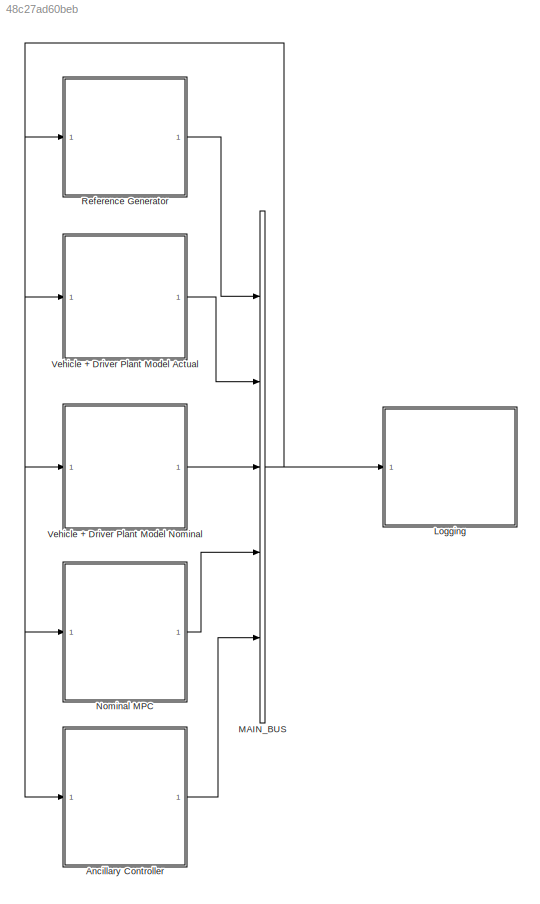
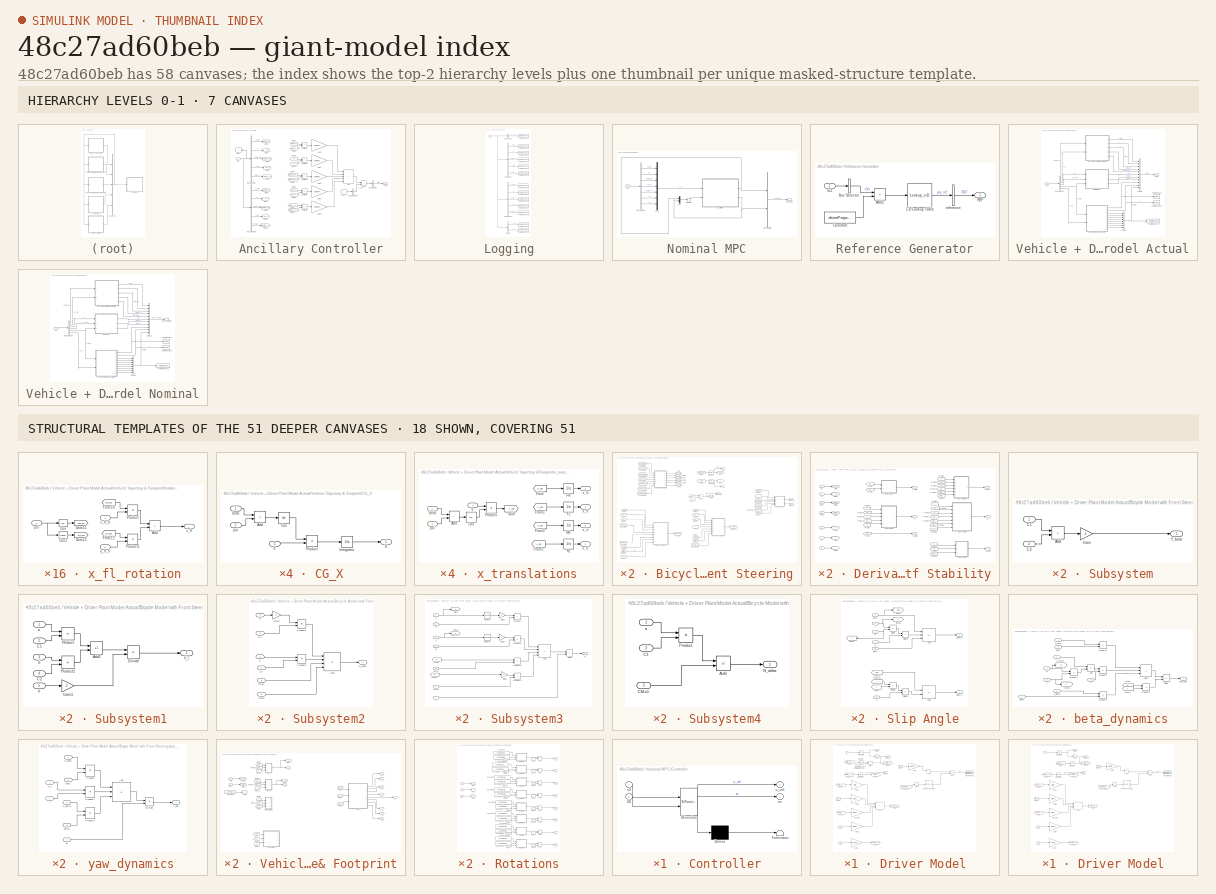
[diagram: thumbnail index - top-2 hierarchy levels (7 canvases) + 18 structural-template representatives of the remaining 51 canvases]
MODEL slx_48c27ad60beb
KIND model
CONFIG AbsTol = auto
CONFIG EnableMultiTasking = off
CONFIG FixedStep = rmpcProps.time_step
CONFIG MaxStep = auto
CONFIG MinStep = auto
CONFIG RelTol = 1e-3
CONFIG SampleTimeConstraint = Unconstrained
CONFIG SolverName = ode4
CONFIG StartTime = 0.0
CONFIG StopTime = 3.5
BLOCK [SubSystem] Ancillary Controller
  Ports = [1, 1]
  RequestExecContextInheritance = off
BLOCK [Outport] Ancillary Controller/ANC
BLOCK [Sum] Ancillary Controller/Add
  IconShape = rectangular
  Inputs = +++++
  Ports = [5, 1]
BLOCK [Sum] Ancillary Controller/Add1
  IconShape = rectangular
  Ports = [2, 1]
BLOCK [BusCreator] Ancillary Controller/Bus Creator
  DisplayOption = bar
  InheritFromInputs = on
  Inputs = 1
  Ports = [1, 1]
BLOCK [BusSelector] Ancillary Controller/Bus Selector
  OutputSignals = VHCL.beta,VHCL.r,VHCL.delta_dr,VHCL.psi,VHCL.delta_y
  Ports = [1, 5]
BLOCK [BusSelector] Ancillary Controller/Bus Selector1
  OutputSignals = VHCL_nominal.beta,VHCL_nominal.r,VHCL_nominal.delta_dr,VHCL_nominal.psi,VHCL_nominal.delta_y
  Ports = [1, 5]
BLOCK [BusSelector] Ancillary Controller/Bus Selector2
  OutputSignals = STRASST.u_ctrl
  Ports = [1, 1]
BLOCK [From] Ancillary Controller/From
  NameLocation = top
BLOCK [From] Ancillary Controller/From1
  GotoTag = beta_a
BLOCK [From] Ancillary Controller/From10
  GotoTag = delta_y_n
BLOCK [From] Ancillary Controller/From2
  GotoTag = beta_n
BLOCK [From] Ancillary Controller/From3
  GotoTag = r_a
BLOCK [From] Ancillary Controller/From4
  GotoTag = r_n
BLOCK [From] Ancillary Controller/From5
  GotoTag = delta_dr_a
BLOCK [From] Ancillary Controller/From6
  GotoTag = delta_dr_n
BLOCK [From] Ancillary Controller/From7
  GotoTag = psi_a
BLOCK [From] Ancillary Controller/From8
  GotoTag = psi_n
BLOCK [From] Ancillary Controller/From9
  GotoTag = delta_y_a
BLOCK [Gain] Ancillary Controller/Gain
  Gain = -rmpcProps.K(1,1)
BLOCK [Gain] Ancillary Controller/Gain1
  Gain = -rmpcProps.K(1,2)
BLOCK [Gain] Ancillary Controller/Gain2
  Gain = -rmpcProps.K(1,3)
BLOCK [Gain] Ancillary Controller/Gain3
  Gain = -rmpcProps.K(1,4)
BLOCK [Gain] Ancillary Controller/Gain4
  Gain = -rmpcProps.K(1,5)
BLOCK [Goto] Ancillary Controller/Goto
  NameLocation = top
BLOCK [Goto] Ancillary Controller/Goto1
  GotoTag = beta_a
BLOCK [Goto] Ancillary Controller/Goto10
  GotoTag = delta_y_n
BLOCK [Goto] Ancillary Controller/Goto2
  GotoTag = r_a
BLOCK [Goto] Ancillary Controller/Goto3
  GotoTag = delta_dr_a
BLOCK [Goto] Ancillary Controller/Goto4
  GotoTag = psi_a
BLOCK [Goto] Ancillary Controller/Goto5
  GotoTag = delta_y_a
BLOCK [Goto] Ancillary Controller/Goto6
  GotoTag = beta_n
BLOCK [Goto] Ancillary Controller/Goto7
  GotoTag = r_n
BLOCK [Goto] Ancillary Controller/Goto8
  GotoTag = delta_dr_n
BLOCK [Goto] Ancillary Controller/Goto9
  GotoTag = psi_n
BLOCK [Inport] Ancillary Controller/In1
BLOCK [Sum] Ancillary Controller/Subtract1
  IconShape = rectangular
  Inputs = +-
  Ports = [2, 1]
BLOCK [Sum] Ancillary Controller/Subtract2
  IconShape = rectangular
  Inputs = +-
  Ports = [2, 1]
BLOCK [Sum] Ancillary Controller/Subtract3
  IconShape = rectangular
  Inputs = +-
  Ports = [2, 1]
BLOCK [Sum] Ancillary Controller/Subtract4
  IconShape = rectangular
  Inputs = +-
  Ports = [2, 1]
BLOCK [Sum] Ancillary Controller/Subtract5
  IconShape = rectangular
  Inputs = +-
  Ports = [2, 1]
BLOCK [SubSystem] Logging
  Ports = [1]
  RequestExecContextInheritance = off
BLOCK [BusSelector] Logging/Actual Plant
  OutputSignals = VHCL.beta,VHCL.r,VHCL.delta_dr,VHCL.psi,VHCL.delta_y
  Ports = [1, 5]
BLOCK [BusSelector] Logging/Bus Selector
  OutputSignals = REF.psi_ref
  Ports = [1, 1]
BLOCK [BusSelector] Logging/Control
  OutputSignals = STRASST.u_ctrl,ANC.v
  Ports = [1, 2]
BLOCK [Inport] Logging/In1
BLOCK [BusSelector] Logging/Nominal Plant
  OutputSignals = VHCL_nominal.beta,VHCL_nominal.r,VHCL_nominal.delta_dr,VHCL_nominal.psi,VHCL_nominal.delta_y
  Ports = [1, 5]
BLOCK [ToWorkspace] Logging/To Workspace
  FixptAsFi = on
  MaxDataPoints = inf
  Ports = [1]
  SampleTime = -1
  VariableName = psi_ref
BLOCK [ToWorkspace] Logging/To Workspace1
  FixptAsFi = on
  MaxDataPoints = inf
  Ports = [1]
  SampleTime = -1
  VariableName = beta_a
BLOCK [ToWorkspace] Logging/To Workspace10
  FixptAsFi = on
  MaxDataPoints = inf
  Ports = [1]
  SampleTime = -1
  VariableName = delta_y_n
BLOCK [ToWorkspace] Logging/To Workspace11
  FixptAsFi = on
  MaxDataPoints = inf
  Ports = [1]
  SampleTime = -1
  VariableName = u_ctrl
BLOCK [ToWorkspace] Logging/To Workspace12
  FixptAsFi = on
  MaxDataPoints = inf
  Ports = [1]
  SampleTime = -1
  VariableName = v
BLOCK [ToWorkspace] Logging/To Workspace2
  FixptAsFi = on
  MaxDataPoints = inf
  Ports = [1]
  SampleTime = -1
  VariableName = r_a
BLOCK [ToWorkspace] Logging/To Workspace3
  FixptAsFi = on
  MaxDataPoints = inf
  Ports = [1]
  SampleTime = -1
  VariableName = delta_dr_a
BLOCK [ToWorkspace] Logging/To Workspace4
  FixptAsFi = on
  MaxDataPoints = inf
  Ports = [1]
  SampleTime = -1
  VariableName = psi_a
BLOCK [ToWorkspace] Logging/To Workspace5
  FixptAsFi = on
  MaxDataPoints = inf
  Ports = [1]
  SampleTime = -1
  VariableName = delta_y_a
BLOCK [ToWorkspace] Logging/To Workspace6
  FixptAsFi = on
  MaxDataPoints = inf
  Ports = [1]
  SampleTime = -1
  VariableName = beta_n
BLOCK [ToWorkspace] Logging/To Workspace7
  FixptAsFi = on
  MaxDataPoints = inf
  Ports = [1]
  SampleTime = -1
  VariableName = r_n
BLOCK [ToWorkspace] Logging/To Workspace8
  FixptAsFi = on
  MaxDataPoints = inf
  Ports = [1]
  SampleTime = -1
  VariableName = delta_dr_n
BLOCK [ToWorkspace] Logging/To Workspace9
  FixptAsFi = on
  MaxDataPoints = inf
  Ports = [1]
  SampleTime = -1
  VariableName = psi_n
BLOCK [BusCreator] MAIN_BUS
  DisplayOption = bar
  InheritFromInputs = on
  Inputs = 5
  Ports = [5, 1]
BLOCK [SubSystem] Nominal MPC
  Ports = [1, 1]
  RequestExecContextInheritance = off
BLOCK [BusCreator] Nominal MPC/Bus Creator1
  DisplayOption = bar
  InheritFromInputs = on
  Inputs = 2
  Ports = [2, 1]
BLOCK [BusSelector] Nominal MPC/Bus Selector
  OutputSignals = VHCL_nominal.beta,VHCL_nominal.r,VHCL_nominal.delta_dr,VHCL_nominal.psi,VHCL_nominal.delta_y,VHCL_nominal.X,VHCL_nominal.Y
  Ports = [1, 7]
BLOCK [SubSystem] Nominal MPC/Controller
  ErrorFcn = Stateflow.Translate.translate
  PermitHierarchicalResolution = ExplicitOnly
  Ports = [2, 2]
  RequestExecContextInheritance = off
  SFBlockType = MATLAB Function
  TreatAsAtomicUnit = on
BLOCK [Demux] Nominal MPC/Controller/ Demux 
  Outputs = 1
  Ports = [1, 1]
BLOCK [S-Function] Nominal MPC/Controller/ SFunction 
  EnableBusSupport = on
  FunctionName = sf_sfun
  Parameters = driverProps,refTraj,rmpcProps,vehProps
  PortCounts = [2 3]
  Ports = [2, 3]
  SFcnIsStateOwnerBlock = off
  SFunctionDeploymentMode = off
  Tag = Stateflow S-Function 2
BLOCK [Terminator] Nominal MPC/Controller/ Terminator 
BLOCK [Inport] Nominal MPC/Controller/U0
  Port = 2
BLOCK [Outport] Nominal MPC/Controller/sv
  Port = 2
BLOCK [Outport] Nominal MPC/Controller/u_ctrl
BLOCK [Inport] Nominal MPC/Controller/x0
BLOCK [Inport] Nominal MPC/In1
BLOCK [Memory] Nominal MPC/Memory1
BLOCK [Mux] Nominal MPC/Mux
  DisplayOption = bar
  Inputs = 2
  Ports = [2, 1]
BLOCK [Mux] Nominal MPC/Mux1
  DisplayOption = bar
  Inputs = 7
  Ports = [7, 1]
BLOCK [Outport] Nominal MPC/STRASST
BLOCK [SubSystem] Reference Generator
  Ports = [1, 1]
  RequestExecContextInheritance = off
BLOCK [Lookup_n-D] Reference Generator/1-D Lookup Table
  BreakpointsForDimension1 = refTraj.X
  InputPortMap = u0
  InternalRulePriority = Speed
  InterpMethod = Akima spline
  NumberOfTableDimensions = 1
  Ports = [1, 1]
  RndMeth = Simplest
  Table = refTraj.psi_ref
BLOCK [Sum] Reference Generator/Add1
  IconShape = rectangular
  Ports = [2, 1]
BLOCK [BusSelector] Reference Generator/Bus Selector
  OutputSignals = VHCL.X
  Ports = [1, 1]
BLOCK [Constant] Reference Generator/Constant
  Value = driverProps.La
BLOCK [Inport] Reference Generator/In1
BLOCK [Outport] Reference Generator/REF
BLOCK [BusCreator] Reference Generator/reference
  DisplayOption = bar
  InheritFromInputs = on
  Inputs = 1
  Ports = [1, 1]
BLOCK [SubSystem] Vehicle + Driver Plant Model Actual
  Ports = [1, 1]
  RequestExecContextInheritance = off
BLOCK [SubSystem] Vehicle + Driver Plant Model Actual/Bicycle Model with Front Steering
  Ports = [2, 5]
  RequestExecContextInheritance = off
BLOCK [Sum] Vehicle + Driver Plant Model Actual/Bicycle Model with Front Steering/Add
  IconShape = rectangular
  Ports = [2, 1]
BLOCK [Constant] Vehicle + Driver Plant Model Actual/Bicycle Model with Front Steering/Constant
  Value = vehProps.C1
BLOCK [Constant] Vehicle + Driver Plant Model Actual/Bicycle Model with Front Steering/Constant1
  Value = vehProps.C2
BLOCK [Constant] Vehicle + Driver Plant Model Actual/Bicycle Model with Front Steering/Constant10
  Value = vehProps.V
BLOCK [Constant] Vehicle + Driver Plant Model Actual/Bicycle Model with Front Steering/Constant11
  Value = vehProps.a
BLOCK [Constant] Vehicle + Driver Plant Model Actual/Bicycle Model with Front Steering/Constant12
  Value = vehProps.b
BLOCK [Constant] Vehicle + Driver Plant Model Actual/Bicycle Model with Front Steering/Constant2
  Value = vehProps.a
BLOCK [Constant] Vehicle + Driver Plant Model Actual/Bicycle Model with Front Steering/Constant3
  Value = vehProps.b
BLOCK [Constant] Vehicle + Driver Plant Model Actual/Bicycle Model with Front Steering/Constant4
  Value = vehProps.V
BLOCK [Constant] Vehicle + Driver Plant Model Actual/Bicycle Model with Front Steering/Constant5
  Value = vehProps.CMz1
BLOCK [Constant] Vehicle + Driver Plant Model Actual/Bicycle Model with Front Steering/Constant6
  Value = vehProps.CMz2
BLOCK [Constant] Vehicle + Driver Plant Model Actual/Bicycle Model with Front Steering/Constant7
  Value = vehProps.m
BLOCK [Constant] Vehicle + Driver Plant Model Actual/Bicycle Model with Front Steering/Constant8
  Value = vehProps.V
BLOCK [Constant] Vehicle + Driver Plant Model Actual/Bicycle Model with Front Steering/Constant9
  Value = vehProps.Jz
BLOCK [SubSystem] Vehicle + Driver Plant Model Actual/Bicycle Model with Front Steering/Derivatives Of Stability
  Ports = [7, 6]
  RequestExecContextInheritance = off
BLOCK [Inport] Vehicle + Driver Plant Model Actual/Bicycle Model with Front Steering/Derivatives Of Stability/C1
BLOCK [Inport] Vehicle + Driver Plant Model Actual/Bicycle Model with Front Steering/Derivatives Of Stability/C2
  Port = 2
BLOCK [Inport] Vehicle + Driver Plant Model Actual/Bicycle Model with Front Steering/Derivatives Of Stability/CMz1
  Port = 6
BLOCK [Inport] Vehicle + Driver Plant Model Actual/Bicycle Model with Front Steering/Derivatives Of Stability/CMz2
  Port = 7
BLOCK [From] Vehicle + Driver Plant Model Actual/Bicycle Model with Front Steering/Derivatives Of Stability/From
  GotoTag = C1
BLOCK [From] Vehicle + Driver Plant Model Actual/Bicycle Model with Front Steering/Derivatives Of Stability/From1
  GotoTag = C2
BLOCK [From] Vehicle + Driver Plant Model Actual/Bicycle Model with Front Steering/Derivatives Of Stability/From10
  GotoTag = b
BLOCK [From] Vehicle + Driver Plant Model Actual/Bicycle Model with Front Steering/Derivatives Of Stability/From11
  GotoTag = C2
BLOCK [From] Vehicle + Driver Plant Model Actual/Bicycle Model with Front Steering/Derivatives Of Stability/From12
  GotoTag = CMz1
BLOCK [From] Vehicle + Driver Plant Model Actual/Bicycle Model with Front Steering/Derivatives Of Stability/From13
  GotoTag = CMz2
BLOCK [From] Vehicle + Driver Plant Model Actual/Bicycle Model with Front Steering/Derivatives Of Stability/From14
  GotoTag = a
BLOCK [From] Vehicle + Driver Plant Model Actual/Bicycle Model with Front Steering/Derivatives Of Stability/From15
  GotoTag = C1
BLOCK [From] Vehicle + Driver Plant Model Actual/Bicycle Model with Front Steering/Derivatives Of Stability/From16
  GotoTag = b
BLOCK [From] Vehicle + Driver Plant Model Actual/Bicycle Model with Front Steering/Derivatives Of Stability/From17
  GotoTag = C2
BLOCK [From] Vehicle + Driver Plant Model Actual/Bicycle Model with Front Steering/Derivatives Of Stability/From18
  GotoTag = V
BLOCK [From] Vehicle + Driver Plant Model Actual/Bicycle Model with Front Steering/Derivatives Of Stability/From19
  GotoTag = CMz1
BLOCK [From] Vehicle + Driver Plant Model Actual/Bicycle Model with Front Steering/Derivatives Of Stability/From2
  GotoTag = C1
BLOCK [From] Vehicle + Driver Plant Model Actual/Bicycle Model with Front Steering/Derivatives Of Stability/From20
  GotoTag = a
BLOCK [From] Vehicle + Driver Plant Model Actual/Bicycle Model with Front Steering/Derivatives Of Stability/From21
  GotoTag = CMz2
BLOCK [From] Vehicle + Driver Plant Model Actual/Bicycle Model with Front Steering/Derivatives Of Stability/From22
  GotoTag = C1
BLOCK [From] Vehicle + Driver Plant Model Actual/Bicycle Model with Front Steering/Derivatives Of Stability/From23
  GotoTag = CMz1
BLOCK [From] Vehicle + Driver Plant Model Actual/Bicycle Model with Front Steering/Derivatives Of Stability/From3
  GotoTag = C2
BLOCK [From] Vehicle + Driver Plant Model Actual/Bicycle Model with Front Steering/Derivatives Of Stability/From4
  GotoTag = a
BLOCK [From] Vehicle + Driver Plant Model Actual/Bicycle Model with Front Steering/Derivatives Of Stability/From5
  GotoTag = b
BLOCK [From] Vehicle + Driver Plant Model Actual/Bicycle Model with Front Steering/Derivatives Of Stability/From6
  GotoTag = V
BLOCK [From] Vehicle + Driver Plant Model Actual/Bicycle Model with Front Steering/Derivatives Of Stability/From7
  GotoTag = C1
BLOCK [From] Vehicle + Driver Plant Model Actual/Bicycle Model with Front Steering/Derivatives Of Stability/From8
  GotoTag = a
BLOCK [From] Vehicle + Driver Plant Model Actual/Bicycle Model with Front Steering/Derivatives Of Stability/From9
  GotoTag = C1
BLOCK [Goto] Vehicle + Driver Plant Model Actual/Bicycle Model with Front Steering/Derivatives Of Stability/Goto
  GotoTag = C1
BLOCK [Goto] Vehicle + Driver Plant Model Actual/Bicycle Model with Front Steering/Derivatives Of Stability/Goto1
  GotoTag = C2
BLOCK [Goto] Vehicle + Driver Plant Model Actual/Bicycle Model with Front Steering/Derivatives Of Stability/Goto2
  GotoTag = a
BLOCK [Goto] Vehicle + Driver Plant Model Actual/Bicycle Model with Front Steering/Derivatives Of Stability/Goto3
  GotoTag = b
BLOCK [Goto] Vehicle + Driver Plant Model Actual/Bicycle Model with Front Steering/Derivatives Of Stability/Goto4
  GotoTag = V
BLOCK [Goto] Vehicle + Driver Plant Model Actual/Bicycle Model with Front Steering/Derivatives Of Stability/Goto5
  GotoTag = CMz1
BLOCK [Goto] Vehicle + Driver Plant Model Actual/Bicycle Model with Front Steering/Derivatives Of Stability/Goto6
  GotoTag = CMz2
BLOCK [Outport] Vehicle + Driver Plant Model Actual/Bicycle Model with Front Steering/Derivatives Of Stability/N_beta
  Port = 4
BLOCK [Outport] Vehicle + Driver Plant Model Actual/Bicycle Model with Front Steering/Derivatives Of Stability/N_delta
  Port = 6
BLOCK [Outport] Vehicle + Driver Plant Model Actual/Bicycle Model with Front Steering/Derivatives Of Stability/N_r
  Port = 5
BLOCK [SubSystem] Vehicle + Driver Plant Model Actual/Bicycle Model with Front Steering/Derivatives Of Stability/Subsystem
  Ports = [2, 1]
  RequestExecContextInheritance = off
BLOCK [Sum] Vehicle + Driver Plant Model Actual/Bicycle Model with Front Steering/Derivatives Of Stability/Subsystem/Add
  IconShape = rectangular
  Ports = [2, 1]
BLOCK [Inport] Vehicle + Driver Plant Model Actual/Bicycle Model with Front Steering/Derivatives Of Stability/Subsystem/C1
BLOCK [Inport] Vehicle + Driver Plant Model Actual/Bicycle Model with Front Steering/Derivatives Of Stability/Subsystem/C2
  Port = 2
BLOCK [Gain] Vehicle + Driver Plant Model Actual/Bicycle Model with Front Steering/Derivatives Of Stability/Subsystem/Gain
  Gain = -1
BLOCK [Outport] Vehicle + Driver Plant Model Actual/Bicycle Model with Front Steering/Derivatives Of Stability/Subsystem/Y_beta
BLOCK [SubSystem] Vehicle + Driver Plant Model Actual/Bicycle Model with Front Steering/Derivatives Of Stability/Subsystem1
  Ports = [5, 1]
  RequestExecContextInheritance = off
BLOCK [Sum] Vehicle + Driver Plant Model Actual/Bicycle Model with Front Steering/Derivatives Of Stability/Subsystem1/Add1
  IconShape = rectangular
  Inputs = +-
  Ports = [2, 1]
BLOCK [Inport] Vehicle + Driver Plant Model Actual/Bicycle Model with Front Steering/Derivatives Of Stability/Subsystem1/C1
  Port = 2
BLOCK [Inport] Vehicle + Driver Plant Model Actual/Bicycle Model with Front Steering/Derivatives Of Stability/Subsystem1/C2
  Port = 4
BLOCK [Product] Vehicle + Driver Plant Model Actual/Bicycle Model with Front Steering/Derivatives Of Stability/Subsystem1/Divide
  Inputs = */
  Ports = [2, 1]
BLOCK [Gain] Vehicle + Driver Plant Model Actual/Bicycle Model with Front Steering/Derivatives Of Stability/Subsystem1/Gain1
  Gain = -1
BLOCK [Product] Vehicle + Driver Plant Model Actual/Bicycle Model with Front Steering/Derivatives Of Stability/Subsystem1/Product
  Ports = [2, 1]
BLOCK [Product] Vehicle + Driver Plant Model Actual/Bicycle Model with Front Steering/Derivatives Of Stability/Subsystem1/Product1
  Ports = [2, 1]
BLOCK [Inport] Vehicle + Driver Plant Model Actual/Bicycle Model with Front Steering/Derivatives Of Stability/Subsystem1/V
  Port = 5
BLOCK [Outport] Vehicle + Driver Plant Model Actual/Bicycle Model with Front Steering/Derivatives Of Stability/Subsystem1/Y_r
BLOCK [Inport] Vehicle + Driver Plant Model Actual/Bicycle Model with Front Steering/Derivatives Of Stability/Subsystem1/a
BLOCK [Inport] Vehicle + Driver Plant Model Actual/Bicycle Model with Front Steering/Derivatives Of Stability/Subsystem1/b
  Port = 3
BLOCK [SubSystem] Vehicle + Driver Plant Model Actual/Bicycle Model with Front Steering/Derivatives Of Stability/Subsystem2
  Ports = [6, 1]
  RequestExecContextInheritance = off
BLOCK [Sum] Vehicle + Driver Plant Model Actual/Bicycle Model with Front Steering/Derivatives Of Stability/Subsystem2/Add2
  IconShape = rectangular
  Inputs = ++++
  Ports = [4, 1]
BLOCK [Inport] Vehicle + Driver Plant Model Actual/Bicycle Model with Front Steering/Derivatives Of Stability/Subsystem2/C1
  Port = 2
BLOCK [Inport] Vehicle + Driver Plant Model Actual/Bicycle Model with Front Steering/Derivatives Of Stability/Subsystem2/C2
  Port = 4
BLOCK [Inport] Vehicle + Driver Plant Model Actual/Bicycle Model with Front Steering/Derivatives Of Stability/Subsystem2/CMz1
  Port = 5
BLOCK [Inport] Vehicle + Driver Plant Model Actual/Bicycle Model with Front Steering/Derivatives Of Stability/Subsystem2/CMz2
  Port = 6
BLOCK [Gain] Vehicle + Driver Plant Model Actual/Bicycle Model with Front Steering/Derivatives Of Stability/Subsystem2/Gain2
  Gain = -1
BLOCK [Outport] Vehicle + Driver Plant Model Actual/Bicycle Model with Front Steering/Derivatives Of Stability/Subsystem2/N_beta
BLOCK [Product] Vehicle + Driver Plant Model Actual/Bicycle Model with Front Steering/Derivatives Of Stability/Subsystem2/Product2
  Ports = [2, 1]
BLOCK [Product] Vehicle + Driver Plant Model Actual/Bicycle Model with Front Steering/Derivatives Of Stability/Subsystem2/Product3
  Ports = [2, 1]
BLOCK [Inport] Vehicle + Driver Plant Model Actual/Bicycle Model with Front Steering/Derivatives Of Stability/Subsystem2/a
BLOCK [Inport] Vehicle + Driver Plant Model Actual/Bicycle Model with Front Steering/Derivatives Of Stability/Subsystem2/b
  Port = 3
BLOCK [SubSystem] Vehicle + Driver Plant Model Actual/Bicycle Model with Front Steering/Derivatives Of Stability/Subsystem3
  Ports = [7, 1]
  RequestExecContextInheritance = off
BLOCK [Sum] Vehicle + Driver Plant Model Actual/Bicycle Model with Front Steering/Derivatives Of Stability/Subsystem3/Add3
  IconShape = rectangular
  Inputs = ++++
  Ports = [4, 1]
BLOCK [Inport] Vehicle + Driver Plant Model Actual/Bicycle Model with Front Steering/Derivatives Of Stability/Subsystem3/C1
  Port = 2
BLOCK [Inport] Vehicle + Driver Plant Model Actual/Bicycle Model with Front Steering/Derivatives Of Stability/Subsystem3/C2
  Port = 4
BLOCK [Inport] Vehicle + Driver Plant Model Actual/Bicycle Model with Front Steering/Derivatives Of Stability/Subsystem3/CMz1
  Port = 5
BLOCK [Inport] Vehicle + Driver Plant Model Actual/Bicycle Model with Front Steering/Derivatives Of Stability/Subsystem3/CMz2
  Port = 6
BLOCK [Product] Vehicle + Driver Plant Model Actual/Bicycle Model with Front Steering/Derivatives Of Stability/Subsystem3/Divide
  Inputs = */
  Ports = [2, 1]
BLOCK [From] Vehicle + Driver Plant Model Actual/Bicycle Model with Front Steering/Derivatives Of Stability/Subsystem3/From
  GotoTag = a
BLOCK [From] Vehicle + Driver Plant Model Actual/Bicycle Model with Front Steering/Derivatives Of Stability/Subsystem3/From1
  GotoTag = b
BLOCK [Gain] Vehicle + Driver Plant Model Actual/Bicycle Model with Front Steering/Derivatives Of Stability/Subsystem3/Gain3
  Gain = -1
BLOCK [Gain] Vehicle + Driver Plant Model Actual/Bicycle Model with Front Steering/Derivatives Of Stability/Subsystem3/Gain4
  Gain = -1
BLOCK [Gain] Vehicle + Driver Plant Model Actual/Bicycle Model with Front Steering/Derivatives Of Stability/Subsystem3/Gain5
  Gain = -1
BLOCK [Goto] Vehicle + Driver Plant Model Actual/Bicycle Model with Front Steering/Derivatives Of Stability/Subsystem3/Goto
  GotoTag = a
BLOCK [Goto] Vehicle + Driver Plant Model Actual/Bicycle Model with Front Steering/Derivatives Of Stability/Subsystem3/Goto1
  GotoTag = b
BLOCK [Outport] Vehicle + Driver Plant Model Actual/Bicycle Model with Front Steering/Derivatives Of Stability/Subsystem3/N_r
BLOCK [Product] Vehicle + Driver Plant Model Actual/Bicycle Model with Front Steering/Derivatives Of Stability/Subsystem3/Product4
  Ports = [2, 1]
BLOCK [Product] Vehicle + Driver Plant Model Actual/Bicycle Model with Front Steering/Derivatives Of Stability/Subsystem3/Product5
  Ports = [2, 1]
BLOCK [Product] Vehicle + Driver Plant Model Actual/Bicycle Model with Front Steering/Derivatives Of Stability/Subsystem3/Product6
  Ports = [2, 1]
BLOCK [Product] Vehicle + Driver Plant Model Actual/Bicycle Model with Front Steering/Derivatives Of Stability/Subsystem3/Product7
  Ports = [2, 1]
BLOCK [Math] Vehicle + Driver Plant Model Actual/Bicycle Model with Front Steering/Derivatives Of Stability/Subsystem3/Square
  Operator = square
  Ports = [1, 1]
BLOCK [Math] Vehicle + Driver Plant Model Actual/Bicycle Model with Front Steering/Derivatives Of Stability/Subsystem3/Square1
  Operator = square
  Ports = [1, 1]
BLOCK [Inport] Vehicle + Driver Plant Model Actual/Bicycle Model with Front Steering/Derivatives Of Stability/Subsystem3/V
  Port = 7
BLOCK [Inport] Vehicle + Driver Plant Model Actual/Bicycle Model with Front Steering/Derivatives Of Stability/Subsystem3/a
BLOCK [Inport] Vehicle + Driver Plant Model Actual/Bicycle Model with Front Steering/Derivatives Of Stability/Subsystem3/b
  Port = 3
BLOCK [SubSystem] Vehicle + Driver Plant Model Actual/Bicycle Model with Front Steering/Derivatives Of Stability/Subsystem4
  Ports = [3, 1]
  RequestExecContextInheritance = off
BLOCK [Sum] Vehicle + Driver Plant Model Actual/Bicycle Model with Front Steering/Derivatives Of Stability/Subsystem4/Add
  IconShape = rectangular
  Inputs = +-
  Ports = [2, 1]
BLOCK [Inport] Vehicle + Driver Plant Model Actual/Bicycle Model with Front Steering/Derivatives Of Stability/Subsystem4/C1
  Port = 2
BLOCK [Inport] Vehicle + Driver Plant Model Actual/Bicycle Model with Front Steering/Derivatives Of Stability/Subsystem4/CMz1
  Port = 3
BLOCK [Outport] Vehicle + Driver Plant Model Actual/Bicycle Model with Front Steering/Derivatives Of Stability/Subsystem4/N_delta
BLOCK [Product] Vehicle + Driver Plant Model Actual/Bicycle Model with Front Steering/Derivatives Of Stability/Subsystem4/Product
  Ports = [2, 1]
BLOCK [Inport] Vehicle + Driver Plant Model Actual/Bicycle Model with Front Steering/Derivatives Of Stability/Subsystem4/a
BLOCK [Inport] Vehicle + Driver Plant Model Actual/Bicycle Model with Front Steering/Derivatives Of Stability/V
  Port = 5
BLOCK [Outport] Vehicle + Driver Plant Model Actual/Bicycle Model with Front Steering/Derivatives Of Stability/Y_beta
BLOCK [Outport] Vehicle + Driver Plant Model Actual/Bicycle Model with Front Steering/Derivatives Of Stability/Y_delta
  Port = 3
BLOCK [Outport] Vehicle + Driver Plant Model Actual/Bicycle Model with Front Steering/Derivatives Of Stability/Y_r
  Port = 2
BLOCK [Inport] Vehicle + Driver Plant Model Actual/Bicycle Model with Front Steering/Derivatives Of Stability/a
  Port = 3
BLOCK [Inport] Vehicle + Driver Plant Model Actual/Bicycle Model with Front Steering/Derivatives Of Stability/b
  Port = 4
BLOCK [From] Vehicle + Driver Plant Model Actual/Bicycle Model with Front Steering/From
  GotoTag = Y_beta
BLOCK [From] Vehicle + Driver Plant Model Actual/Bicycle Model with Front Steering/From1
  GotoTag = beta_dot
BLOCK [From] Vehicle + Driver Plant Model Actual/Bicycle Model with Front Steering/From10
  GotoTag = r
BLOCK [From] Vehicle + Driver Plant Model Actual/Bicycle Model with Front Steering/From11
  GotoTag = delta
BLOCK [From] Vehicle + Driver Plant Model Actual/Bicycle Model with Front Steering/From12
  GotoTag = N_delta
BLOCK [From] Vehicle + Driver Plant Model Actual/Bicycle Model with Front Steering/From13
  GotoTag = delta
BLOCK [From] Vehicle + Driver Plant Model Actual/Bicycle Model with Front Steering/From14
  GotoTag = beta
BLOCK [From] Vehicle + Driver Plant Model Actual/Bicycle Model with Front Steering/From15
  GotoTag = r
BLOCK [From] Vehicle + Driver Plant Model Actual/Bicycle Model with Front Steering/From16
  GotoTag = delta
BLOCK [From] Vehicle + Driver Plant Model Actual/Bicycle Model with Front Steering/From2
  GotoTag = Y_delta
BLOCK [From] Vehicle + Driver Plant Model Actual/Bicycle Model with Front Steering/From3
  GotoTag = r_dot
BLOCK [From] Vehicle + Driver Plant Model Actual/Bicycle Model with Front Steering/From4
  GotoTag = beta
BLOCK [From] Vehicle + Driver Plant Model Actual/Bicycle Model with Front Steering/From5
  GotoTag = Y_r
BLOCK [From] Vehicle + Driver Plant Model Actual/Bicycle Model with Front Steering/From6
  GotoTag = r
BLOCK [From] Vehicle + Driver Plant Model Actual/Bicycle Model with Front Steering/From7
  GotoTag = N_beta
BLOCK [From] Vehicle + Driver Plant Model Actual/Bicycle Model with Front Steering/From8
  GotoTag = beta
BLOCK [From] Vehicle + Driver Plant Model Actual/Bicycle Model with Front Steering/From9
  GotoTag = N_r
BLOCK [Goto] Vehicle + Driver Plant Model Actual/Bicycle Model with Front Steering/Goto
  GotoTag = Y_beta
BLOCK [Goto] Vehicle + Driver Plant Model Actual/Bicycle Model with Front Steering/Goto1
  GotoTag = Y_r
BLOCK [Goto] Vehicle + Driver Plant Model Actual/Bicycle Model with Front Steering/Goto10
  GotoTag = r_dot
BLOCK [Goto] Vehicle + Driver Plant Model Actual/Bicycle Model with Front Steering/Goto2
  GotoTag = Y_delta
BLOCK [Goto] Vehicle + Driver Plant Model Actual/Bicycle Model with Front Steering/Goto3
  GotoTag = N_beta
BLOCK [Goto] Vehicle + Driver Plant Model Actual/Bicycle Model with Front Steering/Goto4
  GotoTag = N_r
BLOCK [Goto] Vehicle + Driver Plant Model Actual/Bicycle Model with Front Steering/Goto5
  GotoTag = N_delta
BLOCK [Goto] Vehicle + Driver Plant Model Actual/Bicycle Model with Front Steering/Goto6
  GotoTag = r
BLOCK [Goto] Vehicle + Driver Plant Model Actual/Bicycle Model with Front Steering/Goto7
  GotoTag = beta
BLOCK [Goto] Vehicle + Driver Plant Model Actual/Bicycle Model with Front Steering/Goto8
  GotoTag = beta_dot
BLOCK [Goto] Vehicle + Driver Plant Model Actual/Bicycle Model with Front Steering/Goto9
  GotoTag = delta
BLOCK [Integrator] Vehicle + Driver Plant Model Actual/Bicycle Model with Front Steering/Integrator
  Ports = [1, 1]
BLOCK [Integrator] Vehicle + Driver Plant Model Actual/Bicycle Model with Front Steering/Integrator1
  Ports = [1, 1]
BLOCK [SubSystem] Vehicle + Driver Plant Model Actual/Bicycle Model with Front Steering/Slip Angle
  Ports = [6, 2]
  RequestExecContextInheritance = off
BLOCK [Sum] Vehicle + Driver Plant Model Actual/Bicycle Model with Front Steering/Slip Angle/Add
  IconShape = rectangular
  Inputs = ++-
  Ports = [3, 1]
BLOCK [Sum] Vehicle + Driver Plant Model Actual/Bicycle Model with Front Steering/Slip Angle/Add1
  IconShape = rectangular
  Inputs = +-
  Ports = [2, 1]
BLOCK [Product] Vehicle + Driver Plant Model Actual/Bicycle Model with Front Steering/Slip Angle/Divide
  Inputs = */
  Ports = [2, 1]
BLOCK [Product] Vehicle + Driver Plant Model Actual/Bicycle Model with Front Steering/Slip Angle/Divide1
  Inputs = **
  Ports = [2, 1]
BLOCK [Product] Vehicle + Driver Plant Model Actual/Bicycle Model with Front Steering/Slip Angle/Divide2
  Inputs = */
  Ports = [2, 1]
BLOCK [Product] Vehicle + Driver Plant Model Actual/Bicycle Model with Front Steering/Slip Angle/Divide3
  Inputs = **
  Ports = [2, 1]
BLOCK [From] Vehicle + Driver Plant Model Actual/Bicycle Model with Front Steering/Slip Angle/From
  GotoTag = V
  NameLocation = top
BLOCK [From] Vehicle + Driver Plant Model Actual/Bicycle Model with Front Steering/Slip Angle/From17
  GotoTag = beta
BLOCK [From] Vehicle + Driver Plant Model Actual/Bicycle Model with Front Steering/Slip Angle/From18
  GotoTag = r
BLOCK [Goto] Vehicle + Driver Plant Model Actual/Bicycle Model with Front Steering/Slip Angle/Goto
  GotoTag = beta
BLOCK [Goto] Vehicle + Driver Plant Model Actual/Bicycle Model with Front Steering/Slip Angle/Goto1
  GotoTag = r
BLOCK [Goto] Vehicle + Driver Plant Model Actual/Bicycle Model with Front Steering/Slip Angle/Goto3
  GotoTag = V
  NameLocation = top
BLOCK [Inport] Vehicle + Driver Plant Model Actual/Bicycle Model with Front Steering/Slip Angle/V
  Port = 3
BLOCK [Inport] Vehicle + Driver Plant Model Actual/Bicycle Model with Front Steering/Slip Angle/a
  Port = 4
BLOCK [Outport] Vehicle + Driver Plant Model Actual/Bicycle Model with Front Steering/Slip Angle/alpha_fr
BLOCK [Outport] Vehicle + Driver Plant Model Actual/Bicycle Model with Front Steering/Slip Angle/alpha_rr
  Port = 2
BLOCK [Inport] Vehicle + Driver Plant Model Actual/Bicycle Model with Front Steering/Slip Angle/b
  Port = 5
BLOCK [Inport] Vehicle + Driver Plant Model Actual/Bicycle Model with Front Steering/Slip Angle/beta
BLOCK [Inport] Vehicle + Driver Plant Model Actual/Bicycle Model with Front Steering/Slip Angle/delta
  Port = 6
BLOCK [Inport] Vehicle + Driver Plant Model Actual/Bicycle Model with Front Steering/Slip Angle/r
  Port = 2
BLOCK [Outport] Vehicle + Driver Plant Model Actual/Bicycle Model with Front Steering/alpha_fr
  Port = 3
BLOCK [Outport] Vehicle + Driver Plant Model Actual/Bicycle Model with Front Steering/alpha_rr
  Port = 4
BLOCK [Outport] Vehicle + Driver Plant Model Actual/Bicycle Model with Front Steering/beta
BLOCK [SubSystem] Vehicle + Driver Plant Model Actual/Bicycle Model with Front Steering/beta_dynamics
  Ports = [8, 1]
  RequestExecContextInheritance = off
BLOCK [Sum] Vehicle + Driver Plant Model Actual/Bicycle Model with Front Steering/beta_dynamics/Add
  IconShape = rectangular
  Inputs = +-
  Ports = [2, 1]
BLOCK [Sum] Vehicle + Driver Plant Model Actual/Bicycle Model with Front Steering/beta_dynamics/Add1
  IconShape = rectangular
  Inputs = +++
  Ports = [3, 1]
BLOCK [Product] Vehicle + Driver Plant Model Actual/Bicycle Model with Front Steering/beta_dynamics/Divide
  Inputs = */
  Ports = [2, 1]
BLOCK [From] Vehicle + Driver Plant Model Actual/Bicycle Model with Front Steering/beta_dynamics/From
  GotoTag = m
BLOCK [From] Vehicle + Driver Plant Model Actual/Bicycle Model with Front Steering/beta_dynamics/From1
  GotoTag = V
BLOCK [Goto] Vehicle + Driver Plant Model Actual/Bicycle Model with Front Steering/beta_dynamics/Goto
  GotoTag = m
BLOCK [Goto] Vehicle + Driver Plant Model Actual/Bicycle Model with Front Steering/beta_dynamics/Goto1
  GotoTag = V
BLOCK [Product] Vehicle + Driver Plant Model Actual/Bicycle Model with Front Steering/beta_dynamics/Product1
  Ports = [2, 1]
BLOCK [Product] Vehicle + Driver Plant Model Actual/Bicycle Model with Front Steering/beta_dynamics/Product2
  Ports = [2, 1]
BLOCK [Product] Vehicle + Driver Plant Model Actual/Bicycle Model with Front Steering/beta_dynamics/Product3
  Ports = [2, 1]
BLOCK [Product] Vehicle + Driver Plant Model Actual/Bicycle Model with Front Steering/beta_dynamics/Product4
  Ports = [2, 1]
BLOCK [Product] Vehicle + Driver Plant Model Actual/Bicycle Model with Front Steering/beta_dynamics/Product5
  Ports = [2, 1]
BLOCK [Inport] Vehicle + Driver Plant Model Actual/Bicycle Model with Front Steering/beta_dynamics/V
  Port = 5
BLOCK [Inport] Vehicle + Driver Plant Model Actual/Bicycle Model with Front Steering/beta_dynamics/Y_beta
BLOCK [Inport] Vehicle + Driver Plant Model Actual/Bicycle Model with Front Steering/beta_dynamics/Y_delta
  Port = 6
BLOCK [Inport] Vehicle + Driver Plant Model Actual/Bicycle Model with Front Steering/beta_dynamics/Y_r
  Port = 3
BLOCK [Inport] Vehicle + Driver Plant Model Actual/Bicycle Model with Front Steering/beta_dynamics/beta
  Port = 2
BLOCK [Outport] Vehicle + Driver Plant Model Actual/Bicycle Model with Front Steering/beta_dynamics/beta_dot
BLOCK [Inport] Vehicle + Driver Plant Model Actual/Bicycle Model with Front Steering/beta_dynamics/delta
  Port = 7
BLOCK [Inport] Vehicle + Driver Plant Model Actual/Bicycle Model with Front Steering/beta_dynamics/m
  Port = 4
BLOCK [Inport] Vehicle + Driver Plant Model Actual/Bicycle Model with Front Steering/beta_dynamics/r
  Port = 8
BLOCK [Inport] Vehicle + Driver Plant Model Actual/Bicycle Model with Front Steering/delta_dr
BLOCK [Outport] Vehicle + Driver Plant Model Actual/Bicycle Model with Front Steering/delta_total
  Port = 5
BLOCK [Outport] Vehicle + Driver Plant Model Actual/Bicycle Model with Front Steering/r
  Port = 2
BLOCK [Inport] Vehicle + Driver Plant Model Actual/Bicycle Model with Front Steering/v
  Port = 2
BLOCK [SubSystem] Vehicle + Driver Plant Model Actual/Bicycle Model with Front Steering/yaw_dynamics
  Ports = [7, 1]
  RequestExecContextInheritance = off
BLOCK [Sum] Vehicle + Driver Plant Model Actual/Bicycle Model with Front Steering/yaw_dynamics/Add
  IconShape = rectangular
  Inputs = +++
  Ports = [3, 1]
BLOCK [Product] Vehicle + Driver Plant Model Actual/Bicycle Model with Front Steering/yaw_dynamics/Divide
  Inputs = */
  Ports = [2, 1]
BLOCK [Inport] Vehicle + Driver Plant Model Actual/Bicycle Model with Front Steering/yaw_dynamics/Jz
  Port = 7
BLOCK [Inport] Vehicle + Driver Plant Model Actual/Bicycle Model with Front Steering/yaw_dynamics/N_beta
BLOCK [Inport] Vehicle + Driver Plant Model Actual/Bicycle Model with Front Steering/yaw_dynamics/N_delta
  Port = 5
BLOCK [Inport] Vehicle + Driver Plant Model Actual/Bicycle Model with Front Steering/yaw_dynamics/N_r
  Port = 3
BLOCK [Product] Vehicle + Driver Plant Model Actual/Bicycle Model with Front Steering/yaw_dynamics/Product
  Ports = [2, 1]
BLOCK [Product] Vehicle + Driver Plant Model Actual/Bicycle Model with Front Steering/yaw_dynamics/Product1
  Ports = [2, 1]
BLOCK [Product] Vehicle + Driver Plant Model Actual/Bicycle Model with Front Steering/yaw_dynamics/Product2
  Ports = [2, 1]
BLOCK [Inport] Vehicle + Driver Plant Model Actual/Bicycle Model with Front Steering/yaw_dynamics/beta
  Port = 2
BLOCK [Inport] Vehicle + Driver Plant Model Actual/Bicycle Model with Front Steering/yaw_dynamics/delta
  Port = 6
BLOCK [Inport] Vehicle + Driver Plant Model Actual/Bicycle Model with Front Steering/yaw_dynamics/r
  Port = 4
BLOCK [Outport] Vehicle + Driver Plant Model Actual/Bicycle Model with Front Steering/yaw_dynamics/r_dot
BLOCK [BusSelector] Vehicle + Driver Plant Model Actual/Bus Selector
  OutputSignals = VHCL.delta_dr,ANC.v,VHCL.r,REF.psi_ref,VHCL.beta,VHCL.psi
  Ports = [1, 6]
BLOCK [SubSystem] Vehicle + Driver Plant Model Actual/Driver Model
  Ports = [3, 3]
  RequestExecContextInheritance = off
BLOCK [Gain] Vehicle + Driver Plant Model Actual/Driver Model/-Kd//La.tau
  Gain = -driverProps.Kd/(driverProps.La*driverProps.tau)
BLOCK [Gain] Vehicle + Driver Plant Model Actual/Driver Model/-Kd//tau
  Gain = -driverProps.Kd/driverProps.tau
BLOCK [Lookup_n-D] Vehicle + Driver Plant Model Actual/Driver Model/1-D Lookup Table1
  BreakpointsForDimension1 = refTraj.X
  Commented = on
  ExtrapMethod = Clip
  InputPortMap = u0
  InternalRulePriority = Speed
  InterpMethod = Akima spline
  NumberOfTableDimensions = 1
  Ports = [1, 1]
  RndMeth = Simplest
  Table = refTraj.Y
  UseLastTableValue = on
BLOCK [Sum] Vehicle + Driver Plant Model Actual/Driver Model/Add
  Commented = on
  IconShape = rectangular
  Ports = [2, 1]
BLOCK [Sum] Vehicle + Driver Plant Model Actual/Driver Model/Add1
  Commented = on
  IconShape = rectangular
  Inputs = +-
  Ports = [2, 1]
BLOCK [Sum] Vehicle + Driver Plant Model Actual/Driver Model/Add2
  IconShape = rectangular
  Inputs = ++++
  Ports = [4, 1]
BLOCK [Sum] Vehicle + Driver Plant Model Actual/Driver Model/Add3
  Commented = on
  IconShape = rectangular
  Ports = [2, 1]
BLOCK [Sum] Vehicle + Driver Plant Model Actual/Driver Model/Add4
  IconShape = rectangular
  Ports = [2, 1]
BLOCK [Constant] Vehicle + Driver Plant Model Actual/Driver Model/Constant1
  Commented = on
  Value = driverProps.La
BLOCK [From] Vehicle + Driver Plant Model Actual/Driver Model/From
  GotoTag = delta_dr_dot
BLOCK [FromWorkspace] Vehicle + Driver Plant Model Actual/Driver Model/From Workspace
  VariableName = uncertainty
BLOCK [From] Vehicle + Driver Plant Model Actual/Driver Model/From1
  GotoTag = delta_dr
BLOCK [From] Vehicle + Driver Plant Model Actual/Driver Model/From2
  GotoTag = psi
BLOCK [From] Vehicle + Driver Plant Model Actual/Driver Model/From3
  Commented = on
  GotoTag = psi
BLOCK [From] Vehicle + Driver Plant Model Actual/Driver Model/From4
  GotoTag = delta_y_d
BLOCK [From] Vehicle + Driver Plant Model Actual/Driver Model/From5
  GotoTag = delta_y
BLOCK [Gain] Vehicle + Driver Plant Model Actual/Driver Model/Gain
  Commented = on
  Gain = driverProps.La
BLOCK [Gain] Vehicle + Driver Plant Model Actual/Driver Model/Gain1
  Gain = -1/driverProps.tau
BLOCK [Gain] Vehicle + Driver Plant Model Actual/Driver Model/Gain5
  Gain = vehProps.V
BLOCK [Goto] Vehicle + Driver Plant Model Actual/Driver Model/Goto
  GotoTag = delta_dr_dot
BLOCK [Goto] Vehicle + Driver Plant Model Actual/Driver Model/Goto1
  GotoTag = delta_dr
BLOCK [Goto] Vehicle + Driver Plant Model Actual/Driver Model/Goto2
  GotoTag = delta_y
BLOCK [Goto] Vehicle + Driver Plant Model Actual/Driver Model/Goto3
  GotoTag = psi
BLOCK [Goto] Vehicle + Driver Plant Model Actual/Driver Model/Goto4
  GotoTag = delta_y_d
BLOCK [Integrator] Vehicle + Driver Plant Model Actual/Driver Model/Integrator
  Ports = [1, 1]
BLOCK [Integrator] Vehicle + Driver Plant Model Actual/Driver Model/Integrator1
  Ports = [1, 1]
BLOCK [Integrator] Vehicle + Driver Plant Model Actual/Driver Model/Integrator2
  Ports = [1, 1]
BLOCK [Gain] Vehicle + Driver Plant Model Actual/Driver Model/Kd//tau
  Gain = driverProps.Kd/driverProps.tau
BLOCK [TransferFcn] Vehicle + Driver Plant Model Actual/Driver Model/Transfer Fcn1
  Commented = on
  Denominator = [driverProps.tau 1]
  Numerator = [-driverProps.Kd]
BLOCK [Inport] Vehicle + Driver Plant Model Actual/Driver Model/beta
  Port = 3
BLOCK [Outport] Vehicle + Driver Plant Model Actual/Driver Model/delta_dr
  Port = 2
BLOCK [Outport] Vehicle + Driver Plant Model Actual/Driver Model/delta_y
  Port = 3
BLOCK [Outport] Vehicle + Driver Plant Model Actual/Driver Model/psi
BLOCK [Inport] Vehicle + Driver Plant Model Actual/Driver Model/psi_ref
  Port = 2
BLOCK [Inport] Vehicle + Driver Plant Model Actual/Driver Model/r
BLOCK [Inport] Vehicle + Driver Plant Model Actual/In1
BLOCK [ToWorkspace] Vehicle + Driver Plant Model Actual/To Workspace
  FixptAsFi = on
  MaxDataPoints = inf
  Ports = [1]
  SampleTime = -1
  VariableName = X_a
BLOCK [ToWorkspace] Vehicle + Driver Plant Model Actual/To Workspace1
  FixptAsFi = on
  MaxDataPoints = inf
  Ports = [1]
  SampleTime = -1
  VariableName = Y_a
BLOCK [ToWorkspace] Vehicle + Driver Plant Model Actual/To Workspace2
  FixptAsFi = on
  MaxDataPoints = inf
  Ports = [1]
  SampleTime = -1
  VariableName = footprint_a
BLOCK [Outport] Vehicle + Driver Plant Model Actual/VHCL
BLOCK [SubSystem] Vehicle + Driver Plant Model Actual/Vehicle Trajectory & Footprint
  Ports = [2, 10]
  RequestExecContextInheritance = off
BLOCK [SubSystem] Vehicle + Driver Plant Model Actual/Vehicle Trajectory & Footprint/CG_X
  Ports = [3, 1]
  RequestExecContextInheritance = off
BLOCK [Sum] Vehicle + Driver Plant Model Actual/Vehicle Trajectory & Footprint/CG_X/Add
  IconShape = rectangular
  Ports = [2, 1]
BLOCK [Trigonometry] Vehicle + Driver Plant Model Actual/Vehicle Trajectory & Footprint/CG_X/Cos
  Operator = cos
  Ports = [1, 1]
BLOCK [Integrator] Vehicle + Driver Plant Model Actual/Vehicle Trajectory & Footprint/CG_X/Integrator
  Ports = [1, 1]
BLOCK [Product] Vehicle + Driver Plant Model Actual/Vehicle Trajectory & Footprint/CG_X/Product
  Ports = [2, 1]
BLOCK [Inport] Vehicle + Driver Plant Model Actual/Vehicle Trajectory & Footprint/CG_X/V
  Port = 3
BLOCK [Outport] Vehicle + Driver Plant Model Actual/Vehicle Trajectory & Footprint/CG_X/X
BLOCK [Inport] Vehicle + Driver Plant Model Actual/Vehicle Trajectory & Footprint/CG_X/beta
BLOCK [Inport] Vehicle + Driver Plant Model Actual/Vehicle Trajectory & Footprint/CG_X/psi
  Port = 2
BLOCK [SubSystem] Vehicle + Driver Plant Model Actual/Vehicle Trajectory & Footprint/CG_Y
  Ports = [3, 1]
  RequestExecContextInheritance = off
BLOCK [Sum] Vehicle + Driver Plant Model Actual/Vehicle Trajectory & Footprint/CG_Y/Add
  IconShape = rectangular
  Ports = [2, 1]
BLOCK [Trigonometry] Vehicle + Driver Plant Model Actual/Vehicle Trajectory & Footprint/CG_Y/Cos
  Ports = [1, 1]
BLOCK [Integrator] Vehicle + Driver Plant Model Actual/Vehicle Trajectory & Footprint/CG_Y/Integrator
  Ports = [1, 1]
BLOCK [Product] Vehicle + Driver Plant Model Actual/Vehicle Trajectory & Footprint/CG_Y/Product
  Ports = [2, 1]
BLOCK [Inport] Vehicle + Driver Plant Model Actual/Vehicle Trajectory & Footprint/CG_Y/V
  Port = 3
BLOCK [Outport] Vehicle + Driver Plant Model Actual/Vehicle Trajectory & Footprint/CG_Y/Y
BLOCK [Inport] Vehicle + Driver Plant Model Actual/Vehicle Trajectory & Footprint/CG_Y/beta
BLOCK [Inport] Vehicle + Driver Plant Model Actual/Vehicle Trajectory & Footprint/CG_Y/psi
  Port = 2
BLOCK [Constant] Vehicle + Driver Plant Model Actual/Vehicle Trajectory & Footprint/Constant2
  Value = vehProps.V
BLOCK [From] Vehicle + Driver Plant Model Actual/Vehicle Trajectory & Footprint/From
  Commented = on
  GotoTag = beta
BLOCK [From] Vehicle + Driver Plant Model Actual/Vehicle Trajectory & Footprint/From1
  Commented = on
  GotoTag = psi
BLOCK [From] Vehicle + Driver Plant Model Actual/Vehicle Trajectory & Footprint/From10
  GotoTag = V
BLOCK [From] Vehicle + Driver Plant Model Actual/Vehicle Trajectory & Footprint/From11
  GotoTag = V
BLOCK [From] Vehicle + Driver Plant Model Actual/Vehicle Trajectory & Footprint/From12
  GotoTag = beta
BLOCK [From] Vehicle + Driver Plant Model Actual/Vehicle Trajectory & Footprint/From13
  GotoTag = psi
BLOCK [From] Vehicle + Driver Plant Model Actual/Vehicle Trajectory & Footprint/From15
  GotoTag = psi
BLOCK [From] Vehicle + Driver Plant Model Actual/Vehicle Trajectory & Footprint/From2
  Commented = on
  GotoTag = V
BLOCK [From] Vehicle + Driver Plant Model Actual/Vehicle Trajectory & Footprint/From3
  Commented = on
  GotoTag = beta
BLOCK [From] Vehicle + Driver Plant Model Actual/Vehicle Trajectory & Footprint/From4
  GotoTag = beta
BLOCK [From] Vehicle + Driver Plant Model Actual/Vehicle Trajectory & Footprint/From5
  Commented = on
  GotoTag = V
BLOCK [From] Vehicle + Driver Plant Model Actual/Vehicle Trajectory & Footprint/From6
  Commented = on
  GotoTag = psi
BLOCK [From] Vehicle + Driver Plant Model Actual/Vehicle Trajectory & Footprint/From7
  GotoTag = X
BLOCK [From] Vehicle + Driver Plant Model Actual/Vehicle Trajectory & Footprint/From8
  GotoTag = Y
BLOCK [From] Vehicle + Driver Plant Model Actual/Vehicle Trajectory & Footprint/From9
  GotoTag = psi
BLOCK [Goto] Vehicle + Driver Plant Model Actual/Vehicle Trajectory & Footprint/Goto1
  GotoTag = psi
BLOCK [Goto] Vehicle + Driver Plant Model Actual/Vehicle Trajectory & Footprint/Goto2
  GotoTag = X
BLOCK [Goto] Vehicle + Driver Plant Model Actual/Vehicle Trajectory & Footprint/Goto3
  GotoTag = Y
BLOCK [Goto] Vehicle + Driver Plant Model Actual/Vehicle Trajectory & Footprint/Goto4
  GotoTag = V
BLOCK [Goto] Vehicle + Driver Plant Model Actual/Vehicle Trajectory & Footprint/Goto5
  GotoTag = beta
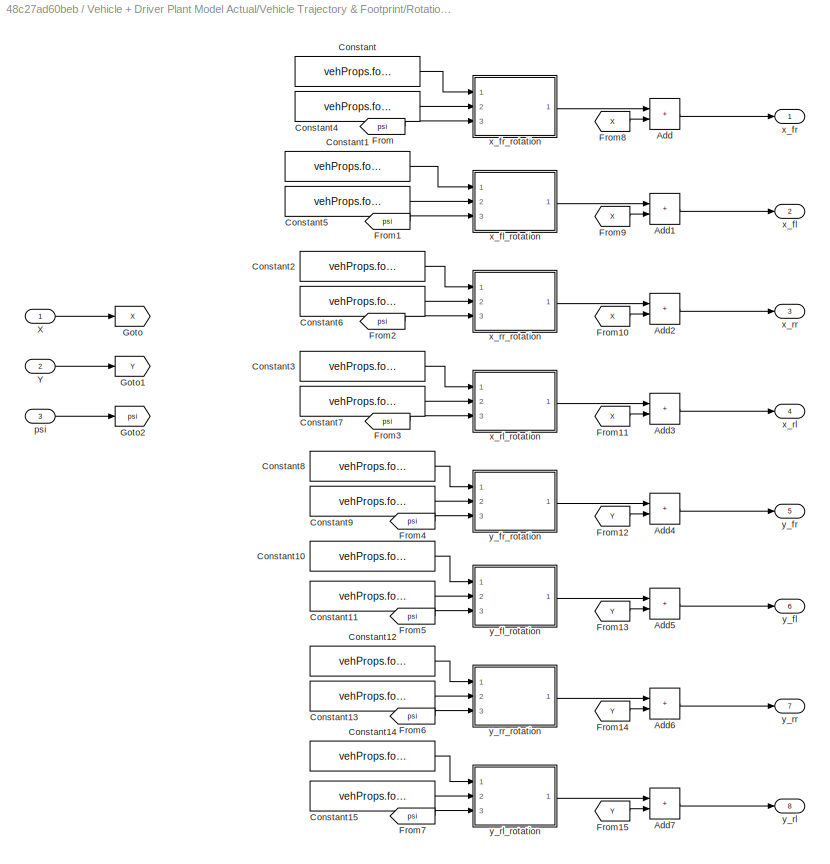
BLOCK [SubSystem] Vehicle + Driver Plant Model Actual/Vehicle Trajectory & Footprint/Rotations
  Ports = [3, 8]
  RequestExecContextInheritance = off
BLOCK [Sum] Vehicle + Driver Plant Model Actual/Vehicle Trajectory & Footprint/Rotations/Add
  IconShape = rectangular
  Ports = [2, 1]
BLOCK [Sum] Vehicle + Driver Plant Model Actual/Vehicle Trajectory & Footprint/Rotations/Add1
  IconShape = rectangular
  Ports = [2, 1]
BLOCK [Sum] Vehicle + Driver Plant Model Actual/Vehicle Trajectory & Footprint/Rotations/Add2
  IconShape = rectangular
  Ports = [2, 1]
BLOCK [Sum] Vehicle + Driver Plant Model Actual/Vehicle Trajectory & Footprint/Rotations/Add3
  IconShape = rectangular
  Ports = [2, 1]
BLOCK [Sum] Vehicle + Driver Plant Model Actual/Vehicle Trajectory & Footprint/Rotations/Add4
  IconShape = rectangular
  Ports = [2, 1]
BLOCK [Sum] Vehicle + Driver Plant Model Actual/Vehicle Trajectory & Footprint/Rotations/Add5
  IconShape = rectangular
  Ports = [2, 1]
BLOCK [Sum] Vehicle + Driver Plant Model Actual/Vehicle Trajectory & Footprint/Rotations/Add6
  IconShape = rectangular
  Ports = [2, 1]
BLOCK [Sum] Vehicle + Driver Plant Model Actual/Vehicle Trajectory & Footprint/Rotations/Add7
  IconShape = rectangular
  Ports = [2, 1]
BLOCK [Constant] Vehicle + Driver Plant Model Actual/Vehicle Trajectory & Footprint/Rotations/Constant
  Value = vehProps.footprint.x_fr
BLOCK [Constant] Vehicle + Driver Plant Model Actual/Vehicle Trajectory & Footprint/Rotations/Constant1
  Value = vehProps.footprint.x_fl
BLOCK [Constant] Vehicle + Driver Plant Model Actual/Vehicle Trajectory & Footprint/Rotations/Constant10
  Value = vehProps.footprint.x_fl
BLOCK [Constant] Vehicle + Driver Plant Model Actual/Vehicle Trajectory & Footprint/Rotations/Constant11
  Value = vehProps.footprint.y_fl
BLOCK [Constant] Vehicle + Driver Plant Model Actual/Vehicle Trajectory & Footprint/Rotations/Constant12
  Value = vehProps.footprint.x_rr
BLOCK [Constant] Vehicle + Driver Plant Model Actual/Vehicle Trajectory & Footprint/Rotations/Constant13
  Value = vehProps.footprint.y_rr
BLOCK [Constant] Vehicle + Driver Plant Model Actual/Vehicle Trajectory & Footprint/Rotations/Constant14
  Value = vehProps.footprint.x_rl
BLOCK [Constant] Vehicle + Driver Plant Model Actual/Vehicle Trajectory & Footprint/Rotations/Constant15
  Value = vehProps.footprint.y_rl
BLOCK [Constant] Vehicle + Driver Plant Model Actual/Vehicle Trajectory & Footprint/Rotations/Constant2
  Value = vehProps.footprint.x_rr
BLOCK [Constant] Vehicle + Driver Plant Model Actual/Vehicle Trajectory & Footprint/Rotations/Constant3
  Value = vehProps.footprint.x_rl
BLOCK [Constant] Vehicle + Driver Plant Model Actual/Vehicle Trajectory & Footprint/Rotations/Constant4
  Value = vehProps.footprint.y_fr
BLOCK [Constant] Vehicle + Driver Plant Model Actual/Vehicle Trajectory & Footprint/Rotations/Constant5
  Value = vehProps.footprint.y_fl
BLOCK [Constant] Vehicle + Driver Plant Model Actual/Vehicle Trajectory & Footprint/Rotations/Constant6
  Value = vehProps.footprint.y_rr
BLOCK [Constant] Vehicle + Driver Plant Model Actual/Vehicle Trajectory & Footprint/Rotations/Constant7
  Value = vehProps.footprint.y_rl
BLOCK [Constant] Vehicle + Driver Plant Model Actual/Vehicle Trajectory & Footprint/Rotations/Constant8
  Value = vehProps.footprint.x_fr
BLOCK [Constant] Vehicle + Driver Plant Model Actual/Vehicle Trajectory & Footprint/Rotations/Constant9
  Value = vehProps.footprint.y_fr
BLOCK [From] Vehicle + Driver Plant Model Actual/Vehicle Trajectory & Footprint/Rotations/From
  GotoTag = psi
BLOCK [From] Vehicle + Driver Plant Model Actual/Vehicle Trajectory & Footprint/Rotations/From1
  GotoTag = psi
BLOCK [From] Vehicle + Driver Plant Model Actual/Vehicle Trajectory & Footprint/Rotations/From10
  GotoTag = X
BLOCK [From] Vehicle + Driver Plant Model Actual/Vehicle Trajectory & Footprint/Rotations/From11
  GotoTag = X
BLOCK [From] Vehicle + Driver Plant Model Actual/Vehicle Trajectory & Footprint/Rotations/From12
  GotoTag = Y
BLOCK [From] Vehicle + Driver Plant Model Actual/Vehicle Trajectory & Footprint/Rotations/From13
  GotoTag = Y
BLOCK [From] Vehicle + Driver Plant Model Actual/Vehicle Trajectory & Footprint/Rotations/From14
  GotoTag = Y
BLOCK [From] Vehicle + Driver Plant Model Actual/Vehicle Trajectory & Footprint/Rotations/From15
  GotoTag = Y
BLOCK [From] Vehicle + Driver Plant Model Actual/Vehicle Trajectory & Footprint/Rotations/From2
  GotoTag = psi
BLOCK [From] Vehicle + Driver Plant Model Actual/Vehicle Trajectory & Footprint/Rotations/From3
  GotoTag = psi
BLOCK [From] Vehicle + Driver Plant Model Actual/Vehicle Trajectory & Footprint/Rotations/From4
  GotoTag = psi
BLOCK [From] Vehicle + Driver Plant Model Actual/Vehicle Trajectory & Footprint/Rotations/From5
  GotoTag = psi
BLOCK [From] Vehicle + Driver Plant Model Actual/Vehicle Trajectory & Footprint/Rotations/From6
  GotoTag = psi
BLOCK [From] Vehicle + Driver Plant Model Actual/Vehicle Trajectory & Footprint/Rotations/From7
  GotoTag = psi
BLOCK [From] Vehicle + Driver Plant Model Actual/Vehicle Trajectory & Footprint/Rotations/From8
  GotoTag = X
BLOCK [From] Vehicle + Driver Plant Model Actual/Vehicle Trajectory & Footprint/Rotations/From9
  GotoTag = X
BLOCK [Goto] Vehicle + Driver Plant Model Actual/Vehicle Trajectory & Footprint/Rotations/Goto
  GotoTag = X
BLOCK [Goto] Vehicle + Driver Plant Model Actual/Vehicle Trajectory & Footprint/Rotations/Goto1
  GotoTag = Y
BLOCK [Goto] Vehicle + Driver Plant Model Actual/Vehicle Trajectory & Footprint/Rotations/Goto2
  GotoTag = psi
BLOCK [Inport] Vehicle + Driver Plant Model Actual/Vehicle Trajectory & Footprint/Rotations/X
BLOCK [Inport] Vehicle + Driver Plant Model Actual/Vehicle Trajectory & Footprint/Rotations/Y
  Port = 2
BLOCK [Inport] Vehicle + Driver Plant Model Actual/Vehicle Trajectory & Footprint/Rotations/psi
  Port = 3
BLOCK [Outport] Vehicle + Driver Plant Model Actual/Vehicle Trajectory & Footprint/Rotations/x_fl
  Port = 2
BLOCK [SubSystem] Vehicle + Driver Plant Model Actual/Vehicle Trajectory & Footprint/Rotations/x_fl_rotation
  Ports = [3, 1]
  RequestExecContextInheritance = off
BLOCK [Sum] Vehicle + Driver Plant Model Actual/Vehicle Trajectory & Footprint/Rotations/x_fl_rotation/Add
  IconShape = rectangular
  Inputs = +-
  Ports = [2, 1]
BLOCK [Trigonometry] Vehicle + Driver Plant Model Actual/Vehicle Trajectory & Footprint/Rotations/x_fl_rotation/Cos
  Operator = cos
  Ports = [1, 1]
BLOCK [Trigonometry] Vehicle + Driver Plant Model Actual/Vehicle Trajectory & Footprint/Rotations/x_fl_rotation/Cos1
  Ports = [1, 1]
BLOCK [From] Vehicle + Driver Plant Model Actual/Vehicle Trajectory & Footprint/Rotations/x_fl_rotation/From10
  GotoTag = cos_psi
BLOCK [From] Vehicle + Driver Plant Model Actual/Vehicle Trajectory & Footprint/Rotations/x_fl_rotation/From11
  GotoTag = sin_psi
BLOCK [Goto] Vehicle + Driver Plant Model Actual/Vehicle Trajectory & Footprint/Rotations/x_fl_rotation/Goto11
  GotoTag = cos_psi
BLOCK [Goto] Vehicle + Driver Plant Model Actual/Vehicle Trajectory & Footprint/Rotations/x_fl_rotation/Goto12
  GotoTag = sin_psi
BLOCK [Product] Vehicle + Driver Plant Model Actual/Vehicle Trajectory & Footprint/Rotations/x_fl_rotation/Product
  Ports = [2, 1]
BLOCK [Product] Vehicle + Driver Plant Model Actual/Vehicle Trajectory & Footprint/Rotations/x_fl_rotation/Product1
  Ports = [2, 1]
BLOCK [Inport] Vehicle + Driver Plant Model Actual/Vehicle Trajectory & Footprint/Rotations/x_fl_rotation/psi
  Port = 3
BLOCK [Outport] Vehicle + Driver Plant Model Actual/Vehicle Trajectory & Footprint/Rotations/x_fl_rotation/x_fl
BLOCK [Inport] Vehicle + Driver Plant Model Actual/Vehicle Trajectory & Footprint/Rotations/x_fl_rotation/x_fl_tr
BLOCK [Inport] Vehicle + Driver Plant Model Actual/Vehicle Trajectory & Footprint/Rotations/x_fl_rotation/y_fl_tr
  Port = 2
BLOCK [Outport] Vehicle + Driver Plant Model Actual/Vehicle Trajectory & Footprint/Rotations/x_fr
BLOCK [SubSystem] Vehicle + Driver Plant Model Actual/Vehicle Trajectory & Footprint/Rotations/x_fr_rotation
  Ports = [3, 1]
  RequestExecContextInheritance = off
BLOCK [Sum] Vehicle + Driver Plant Model Actual/Vehicle Trajectory & Footprint/Rotations/x_fr_rotation/Add
  IconShape = rectangular
  Inputs = +-
  Ports = [2, 1]
BLOCK [Trigonometry] Vehicle + Driver Plant Model Actual/Vehicle Trajectory & Footprint/Rotations/x_fr_rotation/Cos
  Operator = cos
  Ports = [1, 1]
BLOCK [Trigonometry] Vehicle + Driver Plant Model Actual/Vehicle Trajectory & Footprint/Rotations/x_fr_rotation/Cos1
  Ports = [1, 1]
BLOCK [From] Vehicle + Driver Plant Model Actual/Vehicle Trajectory & Footprint/Rotations/x_fr_rotation/From10
  GotoTag = cos_psi
BLOCK [From] Vehicle + Driver Plant Model Actual/Vehicle Trajectory & Footprint/Rotations/x_fr_rotation/From11
  GotoTag = sin_psi
BLOCK [Goto] Vehicle + Driver Plant Model Actual/Vehicle Trajectory & Footprint/Rotations/x_fr_rotation/Goto11
  GotoTag = cos_psi
BLOCK [Goto] Vehicle + Driver Plant Model Actual/Vehicle Trajectory & Footprint/Rotations/x_fr_rotation/Goto12
  GotoTag = sin_psi
BLOCK [Product] Vehicle + Driver Plant Model Actual/Vehicle Trajectory & Footprint/Rotations/x_fr_rotation/Product
  Ports = [2, 1]
BLOCK [Product] Vehicle + Driver Plant Model Actual/Vehicle Trajectory & Footprint/Rotations/x_fr_rotation/Product1
  Ports = [2, 1]
BLOCK [Inport] Vehicle + Driver Plant Model Actual/Vehicle Trajectory & Footprint/Rotations/x_fr_rotation/psi
  Port = 3
BLOCK [Outport] Vehicle + Driver Plant Model Actual/Vehicle Trajectory & Footprint/Rotations/x_fr_rotation/x_fr
BLOCK [Inport] Vehicle + Driver Plant Model Actual/Vehicle Trajectory & Footprint/Rotations/x_fr_rotation/x_fr_tr
BLOCK [Inport] Vehicle + Driver Plant Model Actual/Vehicle Trajectory & Footprint/Rotations/x_fr_rotation/y_fr_tr
  Port = 2
BLOCK [Outport] Vehicle + Driver Plant Model Actual/Vehicle Trajectory & Footprint/Rotations/x_rl
  Port = 4
BLOCK [SubSystem] Vehicle + Driver Plant Model Actual/Vehicle Trajectory & Footprint/Rotations/x_rl_rotation
  Ports = [3, 1]
  RequestExecContextInheritance = off
BLOCK [Sum] Vehicle + Driver Plant Model Actual/Vehicle Trajectory & Footprint/Rotations/x_rl_rotation/Add
  IconShape = rectangular
  Inputs = +-
  Ports = [2, 1]
BLOCK [Trigonometry] Vehicle + Driver Plant Model Actual/Vehicle Trajectory & Footprint/Rotations/x_rl_rotation/Cos
  Operator = cos
  Ports = [1, 1]
BLOCK [Trigonometry] Vehicle + Driver Plant Model Actual/Vehicle Trajectory & Footprint/Rotations/x_rl_rotation/Cos1
  Ports = [1, 1]
BLOCK [From] Vehicle + Driver Plant Model Actual/Vehicle Trajectory & Footprint/Rotations/x_rl_rotation/From10
  GotoTag = cos_psi
BLOCK [From] Vehicle + Driver Plant Model Actual/Vehicle Trajectory & Footprint/Rotations/x_rl_rotation/From11
  GotoTag = sin_psi
BLOCK [Goto] Vehicle + Driver Plant Model Actual/Vehicle Trajectory & Footprint/Rotations/x_rl_rotation/Goto11
  GotoTag = cos_psi
BLOCK [Goto] Vehicle + Driver Plant Model Actual/Vehicle Trajectory & Footprint/Rotations/x_rl_rotation/Goto12
  GotoTag = sin_psi
BLOCK [Product] Vehicle + Driver Plant Model Actual/Vehicle Trajectory & Footprint/Rotations/x_rl_rotation/Product
  Ports = [2, 1]
BLOCK [Product] Vehicle + Driver Plant Model Actual/Vehicle Trajectory & Footprint/Rotations/x_rl_rotation/Product1
  Ports = [2, 1]
BLOCK [Inport] Vehicle + Driver Plant Model Actual/Vehicle Trajectory & Footprint/Rotations/x_rl_rotation/psi
  Port = 3
BLOCK [Outport] Vehicle + Driver Plant Model Actual/Vehicle Trajectory & Footprint/Rotations/x_rl_rotation/x_rl
BLOCK [Inport] Vehicle + Driver Plant Model Actual/Vehicle Trajectory & Footprint/Rotations/x_rl_rotation/x_rl_tr
BLOCK [Inport] Vehicle + Driver Plant Model Actual/Vehicle Trajectory & Footprint/Rotations/x_rl_rotation/y_rl_tr
  Port = 2
BLOCK [Outport] Vehicle + Driver Plant Model Actual/Vehicle Trajectory & Footprint/Rotations/x_rr
  Port = 3
BLOCK [SubSystem] Vehicle + Driver Plant Model Actual/Vehicle Trajectory & Footprint/Rotations/x_rr_rotation
  Ports = [3, 1]
  RequestExecContextInheritance = off
BLOCK [Sum] Vehicle + Driver Plant Model Actual/Vehicle Trajectory & Footprint/Rotations/x_rr_rotation/Add
  IconShape = rectangular
  Inputs = +-
  Ports = [2, 1]
BLOCK [Trigonometry] Vehicle + Driver Plant Model Actual/Vehicle Trajectory & Footprint/Rotations/x_rr_rotation/Cos
  Operator = cos
  Ports = [1, 1]
BLOCK [Trigonometry] Vehicle + Driver Plant Model Actual/Vehicle Trajectory & Footprint/Rotations/x_rr_rotation/Cos1
  Ports = [1, 1]
BLOCK [From] Vehicle + Driver Plant Model Actual/Vehicle Trajectory & Footprint/Rotations/x_rr_rotation/From10
  GotoTag = cos_psi
BLOCK [From] Vehicle + Driver Plant Model Actual/Vehicle Trajectory & Footprint/Rotations/x_rr_rotation/From11
  GotoTag = sin_psi
BLOCK [Goto] Vehicle + Driver Plant Model Actual/Vehicle Trajectory & Footprint/Rotations/x_rr_rotation/Goto11
  GotoTag = cos_psi
BLOCK [Goto] Vehicle + Driver Plant Model Actual/Vehicle Trajectory & Footprint/Rotations/x_rr_rotation/Goto12
  GotoTag = sin_psi
BLOCK [Product] Vehicle + Driver Plant Model Actual/Vehicle Trajectory & Footprint/Rotations/x_rr_rotation/Product
  Ports = [2, 1]
BLOCK [Product] Vehicle + Driver Plant Model Actual/Vehicle Trajectory & Footprint/Rotations/x_rr_rotation/Product1
  Ports = [2, 1]
BLOCK [Inport] Vehicle + Driver Plant Model Actual/Vehicle Trajectory & Footprint/Rotations/x_rr_rotation/psi
  Port = 3
BLOCK [Outport] Vehicle + Driver Plant Model Actual/Vehicle Trajectory & Footprint/Rotations/x_rr_rotation/x_rr
BLOCK [Inport] Vehicle + Driver Plant Model Actual/Vehicle Trajectory & Footprint/Rotations/x_rr_rotation/x_rr_tr
BLOCK [Inport] Vehicle + Driver Plant Model Actual/Vehicle Trajectory & Footprint/Rotations/x_rr_rotation/y_rr_tr
  Port = 2
BLOCK [Outport] Vehicle + Driver Plant Model Actual/Vehicle Trajectory & Footprint/Rotations/y_fl
  Port = 6
BLOCK [SubSystem] Vehicle + Driver Plant Model Actual/Vehicle Trajectory & Footprint/Rotations/y_fl_rotation
  Ports = [3, 1]
  RequestExecContextInheritance = off
BLOCK [Sum] Vehicle + Driver Plant Model Actual/Vehicle Trajectory & Footprint/Rotations/y_fl_rotation/Add
  IconShape = rectangular
  Ports = [2, 1]
BLOCK [Trigonometry] Vehicle + Driver Plant Model Actual/Vehicle Trajectory & Footprint/Rotations/y_fl_rotation/Cos
  Operator = cos
  Ports = [1, 1]
BLOCK [Trigonometry] Vehicle + Driver Plant Model Actual/Vehicle Trajectory & Footprint/Rotations/y_fl_rotation/Cos1
  Ports = [1, 1]
BLOCK [From] Vehicle + Driver Plant Model Actual/Vehicle Trajectory & Footprint/Rotations/y_fl_rotation/From10
  GotoTag = cos_psi
BLOCK [From] Vehicle + Driver Plant Model Actual/Vehicle Trajectory & Footprint/Rotations/y_fl_rotation/From11
  GotoTag = sin_psi
BLOCK [Goto] Vehicle + Driver Plant Model Actual/Vehicle Trajectory & Footprint/Rotations/y_fl_rotation/Goto11
  GotoTag = cos_psi
BLOCK [Goto] Vehicle + Driver Plant Model Actual/Vehicle Trajectory & Footprint/Rotations/y_fl_rotation/Goto12
  GotoTag = sin_psi
BLOCK [Product] Vehicle + Driver Plant Model Actual/Vehicle Trajectory & Footprint/Rotations/y_fl_rotation/Product
  Ports = [2, 1]
BLOCK [Product] Vehicle + Driver Plant Model Actual/Vehicle Trajectory & Footprint/Rotations/y_fl_rotation/Product1
  Ports = [2, 1]
BLOCK [Inport] Vehicle + Driver Plant Model Actual/Vehicle Trajectory & Footprint/Rotations/y_fl_rotation/psi
  Port = 3
BLOCK [Inport] Vehicle + Driver Plant Model Actual/Vehicle Trajectory & Footprint/Rotations/y_fl_rotation/x_fl_tr
BLOCK [Outport] Vehicle + Driver Plant Model Actual/Vehicle Trajectory & Footprint/Rotations/y_fl_rotation/y_fl
BLOCK [Inport] Vehicle + Driver Plant Model Actual/Vehicle Trajectory & Footprint/Rotations/y_fl_rotation/y_fl_tr
  Port = 2
BLOCK [Outport] Vehicle + Driver Plant Model Actual/Vehicle Trajectory & Footprint/Rotations/y_fr
  Port = 5
BLOCK [SubSystem] Vehicle + Driver Plant Model Actual/Vehicle Trajectory & Footprint/Rotations/y_fr_rotation
  Ports = [3, 1]
  RequestExecContextInheritance = off
BLOCK [Sum] Vehicle + Driver Plant Model Actual/Vehicle Trajectory & Footprint/Rotations/y_fr_rotation/Add
  IconShape = rectangular
  Ports = [2, 1]
BLOCK [Trigonometry] Vehicle + Driver Plant Model Actual/Vehicle Trajectory & Footprint/Rotations/y_fr_rotation/Cos
  Operator = cos
  Ports = [1, 1]
BLOCK [Trigonometry] Vehicle + Driver Plant Model Actual/Vehicle Trajectory & Footprint/Rotations/y_fr_rotation/Cos1
  Ports = [1, 1]
BLOCK [From] Vehicle + Driver Plant Model Actual/Vehicle Trajectory & Footprint/Rotations/y_fr_rotation/From10
  GotoTag = cos_psi
BLOCK [From] Vehicle + Driver Plant Model Actual/Vehicle Trajectory & Footprint/Rotations/y_fr_rotation/From11
  GotoTag = sin_psi
BLOCK [Goto] Vehicle + Driver Plant Model Actual/Vehicle Trajectory & Footprint/Rotations/y_fr_rotation/Goto11
  GotoTag = cos_psi
BLOCK [Goto] Vehicle + Driver Plant Model Actual/Vehicle Trajectory & Footprint/Rotations/y_fr_rotation/Goto12
  GotoTag = sin_psi
BLOCK [Product] Vehicle + Driver Plant Model Actual/Vehicle Trajectory & Footprint/Rotations/y_fr_rotation/Product
  Ports = [2, 1]
BLOCK [Product] Vehicle + Driver Plant Model Actual/Vehicle Trajectory & Footprint/Rotations/y_fr_rotation/Product1
  Ports = [2, 1]
BLOCK [Inport] Vehicle + Driver Plant Model Actual/Vehicle Trajectory & Footprint/Rotations/y_fr_rotation/psi
  Port = 3
BLOCK [Inport] Vehicle + Driver Plant Model Actual/Vehicle Trajectory & Footprint/Rotations/y_fr_rotation/x_fr_tr
BLOCK [Outport] Vehicle + Driver Plant Model Actual/Vehicle Trajectory & Footprint/Rotations/y_fr_rotation/y_fr
BLOCK [Inport] Vehicle + Driver Plant Model Actual/Vehicle Trajectory & Footprint/Rotations/y_fr_rotation/y_fr_tr
  Port = 2
BLOCK [Outport] Vehicle + Driver Plant Model Actual/Vehicle Trajectory & Footprint/Rotations/y_rl
  Port = 8
BLOCK [SubSystem] Vehicle + Driver Plant Model Actual/Vehicle Trajectory & Footprint/Rotations/y_rl_rotation
  Ports = [3, 1]
  RequestExecContextInheritance = off
BLOCK [Sum] Vehicle + Driver Plant Model Actual/Vehicle Trajectory & Footprint/Rotations/y_rl_rotation/Add
  IconShape = rectangular
  Ports = [2, 1]
BLOCK [Trigonometry] Vehicle + Driver Plant Model Actual/Vehicle Trajectory & Footprint/Rotations/y_rl_rotation/Cos
  Operator = cos
  Ports = [1, 1]
BLOCK [Trigonometry] Vehicle + Driver Plant Model Actual/Vehicle Trajectory & Footprint/Rotations/y_rl_rotation/Cos1
  Ports = [1, 1]
BLOCK [From] Vehicle + Driver Plant Model Actual/Vehicle Trajectory & Footprint/Rotations/y_rl_rotation/From10
  GotoTag = cos_psi
BLOCK [From] Vehicle + Driver Plant Model Actual/Vehicle Trajectory & Footprint/Rotations/y_rl_rotation/From11
  GotoTag = sin_psi
BLOCK [Goto] Vehicle + Driver Plant Model Actual/Vehicle Trajectory & Footprint/Rotations/y_rl_rotation/Goto11
  GotoTag = cos_psi
BLOCK [Goto] Vehicle + Driver Plant Model Actual/Vehicle Trajectory & Footprint/Rotations/y_rl_rotation/Goto12
  GotoTag = sin_psi
BLOCK [Product] Vehicle + Driver Plant Model Actual/Vehicle Trajectory & Footprint/Rotations/y_rl_rotation/Product
  Ports = [2, 1]
BLOCK [Product] Vehicle + Driver Plant Model Actual/Vehicle Trajectory & Footprint/Rotations/y_rl_rotation/Product1
  Ports = [2, 1]
BLOCK [Inport] Vehicle + Driver Plant Model Actual/Vehicle Trajectory & Footprint/Rotations/y_rl_rotation/psi
  Port = 3
BLOCK [Inport] Vehicle + Driver Plant Model Actual/Vehicle Trajectory & Footprint/Rotations/y_rl_rotation/x_rl_tr
BLOCK [Outport] Vehicle + Driver Plant Model Actual/Vehicle Trajectory & Footprint/Rotations/y_rl_rotation/y_rl
BLOCK [Inport] Vehicle + Driver Plant Model Actual/Vehicle Trajectory & Footprint/Rotations/y_rl_rotation/y_rl_tr
  Port = 2
BLOCK [Outport] Vehicle + Driver Plant Model Actual/Vehicle Trajectory & Footprint/Rotations/y_rr
  Port = 7
BLOCK [SubSystem] Vehicle + Driver Plant Model Actual/Vehicle Trajectory & Footprint/Rotations/y_rr_rotation
  Ports = [3, 1]
  RequestExecContextInheritance = off
BLOCK [Sum] Vehicle + Driver Plant Model Actual/Vehicle Trajectory & Footprint/Rotations/y_rr_rotation/Add
  IconShape = rectangular
  Ports = [2, 1]
BLOCK [Trigonometry] Vehicle + Driver Plant Model Actual/Vehicle Trajectory & Footprint/Rotations/y_rr_rotation/Cos
  Operator = cos
  Ports = [1, 1]
BLOCK [Trigonometry] Vehicle + Driver Plant Model Actual/Vehicle Trajectory & Footprint/Rotations/y_rr_rotation/Cos1
  Ports = [1, 1]
BLOCK [From] Vehicle + Driver Plant Model Actual/Vehicle Trajectory & Footprint/Rotations/y_rr_rotation/From10
  GotoTag = cos_psi
BLOCK [From] Vehicle + Driver Plant Model Actual/Vehicle Trajectory & Footprint/Rotations/y_rr_rotation/From11
  GotoTag = sin_psi
BLOCK [Goto] Vehicle + Driver Plant Model Actual/Vehicle Trajectory & Footprint/Rotations/y_rr_rotation/Goto11
  GotoTag = cos_psi
BLOCK [Goto] Vehicle + Driver Plant Model Actual/Vehicle Trajectory & Footprint/Rotations/y_rr_rotation/Goto12
  GotoTag = sin_psi
BLOCK [Product] Vehicle + Driver Plant Model Actual/Vehicle Trajectory & Footprint/Rotations/y_rr_rotation/Product
  Ports = [2, 1]
BLOCK [Product] Vehicle + Driver Plant Model Actual/Vehicle Trajectory & Footprint/Rotations/y_rr_rotation/Product1
  Ports = [2, 1]
BLOCK [Inport] Vehicle + Driver Plant Model Actual/Vehicle Trajectory & Footprint/Rotations/y_rr_rotation/psi
  Port = 3
BLOCK [Inport] Vehicle + Driver Plant Model Actual/Vehicle Trajectory & Footprint/Rotations/y_rr_rotation/x_rr_tr
BLOCK [Outport] Vehicle + Driver Plant Model Actual/Vehicle Trajectory & Footprint/Rotations/y_rr_rotation/y_rr
BLOCK [Inport] Vehicle + Driver Plant Model Actual/Vehicle Trajectory & Footprint/Rotations/y_rr_rotation/y_rr_tr
  Port = 2
BLOCK [Outport] Vehicle + Driver Plant Model Actual/Vehicle Trajectory & Footprint/X
BLOCK [Outport] Vehicle + Driver Plant Model Actual/Vehicle Trajectory & Footprint/Y
  Port = 2
BLOCK [Inport] Vehicle + Driver Plant Model Actual/Vehicle Trajectory & Footprint/beta
BLOCK [Inport] Vehicle + Driver Plant Model Actual/Vehicle Trajectory & Footprint/psi
  Port = 2
BLOCK [Outport] Vehicle + Driver Plant Model Actual/Vehicle Trajectory & Footprint/x_fl
  Port = 4
BLOCK [Outport] Vehicle + Driver Plant Model Actual/Vehicle Trajectory & Footprint/x_fr
  Port = 3
BLOCK [Outport] Vehicle + Driver Plant Model Actual/Vehicle Trajectory & Footprint/x_rl
  Port = 6
BLOCK [Outport] Vehicle + Driver Plant Model Actual/Vehicle Trajectory & Footprint/x_rr
  Port = 5
BLOCK [SubSystem] Vehicle + Driver Plant Model Actual/Vehicle Trajectory & Footprint/x_translations
  Commented = on
  Ports = [3, 4]
  RequestExecContextInheritance = off
BLOCK [Sum] Vehicle + Driver Plant Model Actual/Vehicle Trajectory & Footprint/x_translations/Add
  IconShape = rectangular
  Ports = [2, 1]
BLOCK [Trigonometry] Vehicle + Driver Plant Model Actual/Vehicle Trajectory & Footprint/x_translations/Cos
  Operator = cos
  Ports = [1, 1]
BLOCK [Integrator] Vehicle + Driver Plant Model Actual/Vehicle Trajectory & Footprint/x_translations/FL
  InitialCondition = vehProps.footprint.x_fl
  Ports = [1, 1]
BLOCK [Integrator] Vehicle + Driver Plant Model Actual/Vehicle Trajectory & Footprint/x_translations/FR
  InitialCondition = vehProps.footprint.x_fr
  Ports = [1, 1]
BLOCK [From] Vehicle + Driver Plant Model Actual/Vehicle Trajectory & Footprint/x_translations/From
  GotoTag = X_dot
BLOCK [From] Vehicle + Driver Plant Model Actual/Vehicle Trajectory & Footprint/x_translations/From1
  GotoTag = X_dot
BLOCK [From] Vehicle + Driver Plant Model Actual/Vehicle Trajectory & Footprint/x_translations/From2
  GotoTag = X_dot
BLOCK [From] Vehicle + Driver Plant Model Actual/Vehicle Trajectory & Footprint/x_translations/From3
  GotoTag = X_dot
BLOCK [Goto] Vehicle + Driver Plant Model Actual/Vehicle Trajectory & Footprint/x_translations/Goto
  GotoTag = X_dot
BLOCK [Product] Vehicle + Driver Plant Model Actual/Vehicle Trajectory & Footprint/x_translations/Product
  Ports = [2, 1]
BLOCK [Integrator] Vehicle + Driver Plant Model Actual/Vehicle Trajectory & Footprint/x_translations/RL
  InitialCondition = vehProps.footprint.x_rl
  Ports = [1, 1]
BLOCK [Integrator] Vehicle + Driver Plant Model Actual/Vehicle Trajectory & Footprint/x_translations/RR
  InitialCondition = vehProps.footprint.x_rr
  Ports = [1, 1]
BLOCK [Inport] Vehicle + Driver Plant Model Actual/Vehicle Trajectory & Footprint/x_translations/V
BLOCK [Inport] Vehicle + Driver Plant Model Actual/Vehicle Trajectory & Footprint/x_translations/beta
  Port = 2
BLOCK [Inport] Vehicle + Driver Plant Model Actual/Vehicle Trajectory & Footprint/x_translations/psi
  Port = 3
BLOCK [Outport] Vehicle + Driver Plant Model Actual/Vehicle Trajectory & Footprint/x_translations/x_fl
  Port = 2
BLOCK [Outport] Vehicle + Driver Plant Model Actual/Vehicle Trajectory & Footprint/x_translations/x_fr
BLOCK [Outport] Vehicle + Driver Plant Model Actual/Vehicle Trajectory & Footprint/x_translations/x_rl
  Port = 4
BLOCK [Outport] Vehicle + Driver Plant Model Actual/Vehicle Trajectory & Footprint/x_translations/x_rr
  Port = 3
BLOCK [Outport] Vehicle + Driver Plant Model Actual/Vehicle Trajectory & Footprint/y_fl
  Port = 8
BLOCK [Outport] Vehicle + Driver Plant Model Actual/Vehicle Trajectory & Footprint/y_fr
  Port = 7
BLOCK [Outport] Vehicle + Driver Plant Model Actual/Vehicle Trajectory & Footprint/y_rl
  Port = 10
BLOCK [Outport] Vehicle + Driver Plant Model Actual/Vehicle Trajectory & Footprint/y_rr
  Port = 9
BLOCK [SubSystem] Vehicle + Driver Plant Model Actual/Vehicle Trajectory & Footprint/y_translations
  Commented = on
  Ports = [3, 4]
  RequestExecContextInheritance = off
BLOCK [Sum] Vehicle + Driver Plant Model Actual/Vehicle Trajectory & Footprint/y_translations/Add4
  IconShape = rectangular
  Ports = [2, 1]
BLOCK [Trigonometry] Vehicle + Driver Plant Model Actual/Vehicle Trajectory & Footprint/y_translations/Cos
  Ports = [1, 1]
BLOCK [From] Vehicle + Driver Plant Model Actual/Vehicle Trajectory & Footprint/y_translations/From
  GotoTag = Y_dot
BLOCK [From] Vehicle + Driver Plant Model Actual/Vehicle Trajectory & Footprint/y_translations/From1
  GotoTag = Y_dot
BLOCK [From] Vehicle + Driver Plant Model Actual/Vehicle Trajectory & Footprint/y_translations/From2
  GotoTag = Y_dot
BLOCK [From] Vehicle + Driver Plant Model Actual/Vehicle Trajectory & Footprint/y_translations/From3
  GotoTag = Y_dot
BLOCK [Goto] Vehicle + Driver Plant Model Actual/Vehicle Trajectory & Footprint/y_translations/Goto3
  GotoTag = Y_dot
BLOCK [Product] Vehicle + Driver Plant Model Actual/Vehicle Trajectory & Footprint/y_translations/Product4
  Ports = [2, 1]
BLOCK [Inport] Vehicle + Driver Plant Model Actual/Vehicle Trajectory & Footprint/y_translations/V
  Port = 3
BLOCK [Integrator] Vehicle + Driver Plant Model Actual/Vehicle Trajectory & Footprint/y_translations/Y_FL
  InitialCondition = vehProps.footprint.y_fl
  Ports = [1, 1]
BLOCK [Integrator] Vehicle + Driver Plant Model Actual/Vehicle Trajectory & Footprint/y_translations/Y_FR
  InitialCondition = vehProps.footprint.y_fr
  Ports = [1, 1]
BLOCK [Integrator] Vehicle + Driver Plant Model Actual/Vehicle Trajectory & Footprint/y_translations/Y_RL
  InitialCondition = vehProps.footprint.y_rl
  Ports = [1, 1]
BLOCK [Integrator] Vehicle + Driver Plant Model Actual/Vehicle Trajectory & Footprint/y_translations/Y_RR
  InitialCondition = vehProps.footprint.y_rr
  Ports = [1, 1]
BLOCK [Inport] Vehicle + Driver Plant Model Actual/Vehicle Trajectory & Footprint/y_translations/beta
BLOCK [Inport] Vehicle + Driver Plant Model Actual/Vehicle Trajectory & Footprint/y_translations/psi
  Port = 2
BLOCK [Outport] Vehicle + Driver Plant Model Actual/Vehicle Trajectory & Footprint/y_translations/y_fl
  Port = 2
BLOCK [Outport] Vehicle + Driver Plant Model Actual/Vehicle Trajectory & Footprint/y_translations/y_fr
BLOCK [Outport] Vehicle + Driver Plant Model Actual/Vehicle Trajectory & Footprint/y_translations/y_rl
  Port = 4
BLOCK [Outport] Vehicle + Driver Plant Model Actual/Vehicle Trajectory & Footprint/y_translations/y_rr
  Port = 3
BLOCK [BusCreator] Vehicle + Driver Plant Model Actual/vehicle
  DisplayOption = bar
  InheritFromInputs = on
  Inputs = 11
  Ports = [11, 1]
BLOCK [BusCreator] Vehicle + Driver Plant Model Actual/vehicle1
  DisplayOption = bar
  InheritFromInputs = on
  Inputs = 8
  Ports = [8, 1]
BLOCK [SubSystem] Vehicle + Driver Plant Model Nominal
  Ports = [1, 1]
  RequestExecContextInheritance = off
BLOCK [SubSystem] Vehicle + Driver Plant Model Nominal/Bicycle Model with Front Steering
  Ports = [2, 5]
  RequestExecContextInheritance = off
BLOCK [Sum] Vehicle + Driver Plant Model Nominal/Bicycle Model with Front Steering/Add
  IconShape = rectangular
  Ports = [2, 1]
BLOCK [Constant] Vehicle + Driver Plant Model Nominal/Bicycle Model with Front Steering/Constant
  Value = vehProps.C1
BLOCK [Constant] Vehicle + Driver Plant Model Nominal/Bicycle Model with Front Steering/Constant1
  Value = vehProps.C2
BLOCK [Constant] Vehicle + Driver Plant Model Nominal/Bicycle Model with Front Steering/Constant10
  Value = vehProps.V
BLOCK [Constant] Vehicle + Driver Plant Model Nominal/Bicycle Model with Front Steering/Constant11
  Value = vehProps.a
BLOCK [Constant] Vehicle + Driver Plant Model Nominal/Bicycle Model with Front Steering/Constant12
  Value = vehProps.b
BLOCK [Constant] Vehicle + Driver Plant Model Nominal/Bicycle Model with Front Steering/Constant2
  Value = vehProps.a
BLOCK [Constant] Vehicle + Driver Plant Model Nominal/Bicycle Model with Front Steering/Constant3
  Value = vehProps.b
BLOCK [Constant] Vehicle + Driver Plant Model Nominal/Bicycle Model with Front Steering/Constant4
  Value = vehProps.V
BLOCK [Constant] Vehicle + Driver Plant Model Nominal/Bicycle Model with Front Steering/Constant5
  Value = vehProps.CMz1
BLOCK [Constant] Vehicle + Driver Plant Model Nominal/Bicycle Model with Front Steering/Constant6
  Value = vehProps.CMz2
BLOCK [Constant] Vehicle + Driver Plant Model Nominal/Bicycle Model with Front Steering/Constant7
  Value = vehProps.m
BLOCK [Constant] Vehicle + Driver Plant Model Nominal/Bicycle Model with Front Steering/Constant8
  Value = vehProps.V
BLOCK [Constant] Vehicle + Driver Plant Model Nominal/Bicycle Model with Front Steering/Constant9
  Value = vehProps.Jz
BLOCK [SubSystem] Vehicle + Driver Plant Model Nominal/Bicycle Model with Front Steering/Derivatives Of Stability
  Ports = [7, 6]
  RequestExecContextInheritance = off
BLOCK [Inport] Vehicle + Driver Plant Model Nominal/Bicycle Model with Front Steering/Derivatives Of Stability/C1
BLOCK [Inport] Vehicle + Driver Plant Model Nominal/Bicycle Model with Front Steering/Derivatives Of Stability/C2
  Port = 2
BLOCK [Inport] Vehicle + Driver Plant Model Nominal/Bicycle Model with Front Steering/Derivatives Of Stability/CMz1
  Port = 6
BLOCK [Inport] Vehicle + Driver Plant Model Nominal/Bicycle Model with Front Steering/Derivatives Of Stability/CMz2
  Port = 7
BLOCK [From] Vehicle + Driver Plant Model Nominal/Bicycle Model with Front Steering/Derivatives Of Stability/From
  GotoTag = C1
BLOCK [From] Vehicle + Driver Plant Model Nominal/Bicycle Model with Front Steering/Derivatives Of Stability/From1
  GotoTag = C2
BLOCK [From] Vehicle + Driver Plant Model Nominal/Bicycle Model with Front Steering/Derivatives Of Stability/From10
  GotoTag = b
BLOCK [From] Vehicle + Driver Plant Model Nominal/Bicycle Model with Front Steering/Derivatives Of Stability/From11
  GotoTag = C2
BLOCK [From] Vehicle + Driver Plant Model Nominal/Bicycle Model with Front Steering/Derivatives Of Stability/From12
  GotoTag = CMz1
BLOCK [From] Vehicle + Driver Plant Model Nominal/Bicycle Model with Front Steering/Derivatives Of Stability/From13
  GotoTag = CMz2
BLOCK [From] Vehicle + Driver Plant Model Nominal/Bicycle Model with Front Steering/Derivatives Of Stability/From14
  GotoTag = a
BLOCK [From] Vehicle + Driver Plant Model Nominal/Bicycle Model with Front Steering/Derivatives Of Stability/From15
  GotoTag = C1
BLOCK [From] Vehicle + Driver Plant Model Nominal/Bicycle Model with Front Steering/Derivatives Of Stability/From16
  GotoTag = b
BLOCK [From] Vehicle + Driver Plant Model Nominal/Bicycle Model with Front Steering/Derivatives Of Stability/From17
  GotoTag = C2
BLOCK [From] Vehicle + Driver Plant Model Nominal/Bicycle Model with Front Steering/Derivatives Of Stability/From18
  GotoTag = V
BLOCK [From] Vehicle + Driver Plant Model Nominal/Bicycle Model with Front Steering/Derivatives Of Stability/From19
  GotoTag = CMz1
BLOCK [From] Vehicle + Driver Plant Model Nominal/Bicycle Model with Front Steering/Derivatives Of Stability/From2
  GotoTag = C1
BLOCK [From] Vehicle + Driver Plant Model Nominal/Bicycle Model with Front Steering/Derivatives Of Stability/From20
  GotoTag = a
BLOCK [From] Vehicle + Driver Plant Model Nominal/Bicycle Model with Front Steering/Derivatives Of Stability/From21
  GotoTag = CMz2
BLOCK [From] Vehicle + Driver Plant Model Nominal/Bicycle Model with Front Steering/Derivatives Of Stability/From22
  GotoTag = C1
BLOCK [From] Vehicle + Driver Plant Model Nominal/Bicycle Model with Front Steering/Derivatives Of Stability/From23
  GotoTag = CMz1
BLOCK [From] Vehicle + Driver Plant Model Nominal/Bicycle Model with Front Steering/Derivatives Of Stability/From3
  GotoTag = C2
BLOCK [From] Vehicle + Driver Plant Model Nominal/Bicycle Model with Front Steering/Derivatives Of Stability/From4
  GotoTag = a
BLOCK [From] Vehicle + Driver Plant Model Nominal/Bicycle Model with Front Steering/Derivatives Of Stability/From5
  GotoTag = b
BLOCK [From] Vehicle + Driver Plant Model Nominal/Bicycle Model with Front Steering/Derivatives Of Stability/From6
  GotoTag = V
BLOCK [From] Vehicle + Driver Plant Model Nominal/Bicycle Model with Front Steering/Derivatives Of Stability/From7
  GotoTag = C1
BLOCK [From] Vehicle + Driver Plant Model Nominal/Bicycle Model with Front Steering/Derivatives Of Stability/From8
  GotoTag = a
BLOCK [From] Vehicle + Driver Plant Model Nominal/Bicycle Model with Front Steering/Derivatives Of Stability/From9
  GotoTag = C1
BLOCK [Goto] Vehicle + Driver Plant Model Nominal/Bicycle Model with Front Steering/Derivatives Of Stability/Goto
  GotoTag = C1
BLOCK [Goto] Vehicle + Driver Plant Model Nominal/Bicycle Model with Front Steering/Derivatives Of Stability/Goto1
  GotoTag = C2
BLOCK [Goto] Vehicle + Driver Plant Model Nominal/Bicycle Model with Front Steering/Derivatives Of Stability/Goto2
  GotoTag = a
BLOCK [Goto] Vehicle + Driver Plant Model Nominal/Bicycle Model with Front Steering/Derivatives Of Stability/Goto3
  GotoTag = b
BLOCK [Goto] Vehicle + Driver Plant Model Nominal/Bicycle Model with Front Steering/Derivatives Of Stability/Goto4
  GotoTag = V
BLOCK [Goto] Vehicle + Driver Plant Model Nominal/Bicycle Model with Front Steering/Derivatives Of Stability/Goto5
  GotoTag = CMz1
BLOCK [Goto] Vehicle + Driver Plant Model Nominal/Bicycle Model with Front Steering/Derivatives Of Stability/Goto6
  GotoTag = CMz2
BLOCK [Outport] Vehicle + Driver Plant Model Nominal/Bicycle Model with Front Steering/Derivatives Of Stability/N_beta
  Port = 4
BLOCK [Outport] Vehicle + Driver Plant Model Nominal/Bicycle Model with Front Steering/Derivatives Of Stability/N_delta
  Port = 6
BLOCK [Outport] Vehicle + Driver Plant Model Nominal/Bicycle Model with Front Steering/Derivatives Of Stability/N_r
  Port = 5
BLOCK [SubSystem] Vehicle + Driver Plant Model Nominal/Bicycle Model with Front Steering/Derivatives Of Stability/Subsystem
  Ports = [2, 1]
  RequestExecContextInheritance = off
BLOCK [Sum] Vehicle + Driver Plant Model Nominal/Bicycle Model with Front Steering/Derivatives Of Stability/Subsystem/Add
  IconShape = rectangular
  Ports = [2, 1]
BLOCK [Inport] Vehicle + Driver Plant Model Nominal/Bicycle Model with Front Steering/Derivatives Of Stability/Subsystem/C1
BLOCK [Inport] Vehicle + Driver Plant Model Nominal/Bicycle Model with Front Steering/Derivatives Of Stability/Subsystem/C2
  Port = 2
BLOCK [Gain] Vehicle + Driver Plant Model Nominal/Bicycle Model with Front Steering/Derivatives Of Stability/Subsystem/Gain
  Gain = -1
BLOCK [Outport] Vehicle + Driver Plant Model Nominal/Bicycle Model with Front Steering/Derivatives Of Stability/Subsystem/Y_beta
BLOCK [SubSystem] Vehicle + Driver Plant Model Nominal/Bicycle Model with Front Steering/Derivatives Of Stability/Subsystem1
  Ports = [5, 1]
  RequestExecContextInheritance = off
BLOCK [Sum] Vehicle + Driver Plant Model Nominal/Bicycle Model with Front Steering/Derivatives Of Stability/Subsystem1/Add1
  IconShape = rectangular
  Inputs = +-
  Ports = [2, 1]
BLOCK [Inport] Vehicle + Driver Plant Model Nominal/Bicycle Model with Front Steering/Derivatives Of Stability/Subsystem1/C1
  Port = 2
BLOCK [Inport] Vehicle + Driver Plant Model Nominal/Bicycle Model with Front Steering/Derivatives Of Stability/Subsystem1/C2
  Port = 4
BLOCK [Product] Vehicle + Driver Plant Model Nominal/Bicycle Model with Front Steering/Derivatives Of Stability/Subsystem1/Divide
  Inputs = */
  Ports = [2, 1]
BLOCK [Gain] Vehicle + Driver Plant Model Nominal/Bicycle Model with Front Steering/Derivatives Of Stability/Subsystem1/Gain1
  Gain = -1
BLOCK [Product] Vehicle + Driver Plant Model Nominal/Bicycle Model with Front Steering/Derivatives Of Stability/Subsystem1/Product
  Ports = [2, 1]
BLOCK [Product] Vehicle + Driver Plant Model Nominal/Bicycle Model with Front Steering/Derivatives Of Stability/Subsystem1/Product1
  Ports = [2, 1]
BLOCK [Inport] Vehicle + Driver Plant Model Nominal/Bicycle Model with Front Steering/Derivatives Of Stability/Subsystem1/V
  Port = 5
BLOCK [Outport] Vehicle + Driver Plant Model Nominal/Bicycle Model with Front Steering/Derivatives Of Stability/Subsystem1/Y_r
BLOCK [Inport] Vehicle + Driver Plant Model Nominal/Bicycle Model with Front Steering/Derivatives Of Stability/Subsystem1/a
BLOCK [Inport] Vehicle + Driver Plant Model Nominal/Bicycle Model with Front Steering/Derivatives Of Stability/Subsystem1/b
  Port = 3
BLOCK [SubSystem] Vehicle + Driver Plant Model Nominal/Bicycle Model with Front Steering/Derivatives Of Stability/Subsystem2
  Ports = [6, 1]
  RequestExecContextInheritance = off
BLOCK [Sum] Vehicle + Driver Plant Model Nominal/Bicycle Model with Front Steering/Derivatives Of Stability/Subsystem2/Add2
  IconShape = rectangular
  Inputs = ++++
  Ports = [4, 1]
BLOCK [Inport] Vehicle + Driver Plant Model Nominal/Bicycle Model with Front Steering/Derivatives Of Stability/Subsystem2/C1
  Port = 2
BLOCK [Inport] Vehicle + Driver Plant Model Nominal/Bicycle Model with Front Steering/Derivatives Of Stability/Subsystem2/C2
  Port = 4
BLOCK [Inport] Vehicle + Driver Plant Model Nominal/Bicycle Model with Front Steering/Derivatives Of Stability/Subsystem2/CMz1
  Port = 5
BLOCK [Inport] Vehicle + Driver Plant Model Nominal/Bicycle Model with Front Steering/Derivatives Of Stability/Subsystem2/CMz2
  Port = 6
BLOCK [Gain] Vehicle + Driver Plant Model Nominal/Bicycle Model with Front Steering/Derivatives Of Stability/Subsystem2/Gain2
  Gain = -1
BLOCK [Outport] Vehicle + Driver Plant Model Nominal/Bicycle Model with Front Steering/Derivatives Of Stability/Subsystem2/N_beta
BLOCK [Product] Vehicle + Driver Plant Model Nominal/Bicycle Model with Front Steering/Derivatives Of Stability/Subsystem2/Product2
  Ports = [2, 1]
BLOCK [Product] Vehicle + Driver Plant Model Nominal/Bicycle Model with Front Steering/Derivatives Of Stability/Subsystem2/Product3
  Ports = [2, 1]
BLOCK [Inport] Vehicle + Driver Plant Model Nominal/Bicycle Model with Front Steering/Derivatives Of Stability/Subsystem2/a
BLOCK [Inport] Vehicle + Driver Plant Model Nominal/Bicycle Model with Front Steering/Derivatives Of Stability/Subsystem2/b
  Port = 3
BLOCK [SubSystem] Vehicle + Driver Plant Model Nominal/Bicycle Model with Front Steering/Derivatives Of Stability/Subsystem3
  Ports = [7, 1]
  RequestExecContextInheritance = off
BLOCK [Sum] Vehicle + Driver Plant Model Nominal/Bicycle Model with Front Steering/Derivatives Of Stability/Subsystem3/Add3
  IconShape = rectangular
  Inputs = ++++
  Ports = [4, 1]
BLOCK [Inport] Vehicle + Driver Plant Model Nominal/Bicycle Model with Front Steering/Derivatives Of Stability/Subsystem3/C1
  Port = 2
BLOCK [Inport] Vehicle + Driver Plant Model Nominal/Bicycle Model with Front Steering/Derivatives Of Stability/Subsystem3/C2
  Port = 4
BLOCK [Inport] Vehicle + Driver Plant Model Nominal/Bicycle Model with Front Steering/Derivatives Of Stability/Subsystem3/CMz1
  Port = 5
BLOCK [Inport] Vehicle + Driver Plant Model Nominal/Bicycle Model with Front Steering/Derivatives Of Stability/Subsystem3/CMz2
  Port = 6
BLOCK [Product] Vehicle + Driver Plant Model Nominal/Bicycle Model with Front Steering/Derivatives Of Stability/Subsystem3/Divide
  Inputs = */
  Ports = [2, 1]
BLOCK [From] Vehicle + Driver Plant Model Nominal/Bicycle Model with Front Steering/Derivatives Of Stability/Subsystem3/From
  GotoTag = a
BLOCK [From] Vehicle + Driver Plant Model Nominal/Bicycle Model with Front Steering/Derivatives Of Stability/Subsystem3/From1
  GotoTag = b
BLOCK [Gain] Vehicle + Driver Plant Model Nominal/Bicycle Model with Front Steering/Derivatives Of Stability/Subsystem3/Gain3
  Gain = -1
BLOCK [Gain] Vehicle + Driver Plant Model Nominal/Bicycle Model with Front Steering/Derivatives Of Stability/Subsystem3/Gain4
  Gain = -1
BLOCK [Gain] Vehicle + Driver Plant Model Nominal/Bicycle Model with Front Steering/Derivatives Of Stability/Subsystem3/Gain5
  Gain = -1
BLOCK [Goto] Vehicle + Driver Plant Model Nominal/Bicycle Model with Front Steering/Derivatives Of Stability/Subsystem3/Goto
  GotoTag = a
BLOCK [Goto] Vehicle + Driver Plant Model Nominal/Bicycle Model with Front Steering/Derivatives Of Stability/Subsystem3/Goto1
  GotoTag = b
BLOCK [Outport] Vehicle + Driver Plant Model Nominal/Bicycle Model with Front Steering/Derivatives Of Stability/Subsystem3/N_r
BLOCK [Product] Vehicle + Driver Plant Model Nominal/Bicycle Model with Front Steering/Derivatives Of Stability/Subsystem3/Product4
  Ports = [2, 1]
BLOCK [Product] Vehicle + Driver Plant Model Nominal/Bicycle Model with Front Steering/Derivatives Of Stability/Subsystem3/Product5
  Ports = [2, 1]
BLOCK [Product] Vehicle + Driver Plant Model Nominal/Bicycle Model with Front Steering/Derivatives Of Stability/Subsystem3/Product6
  Ports = [2, 1]
BLOCK [Product] Vehicle + Driver Plant Model Nominal/Bicycle Model with Front Steering/Derivatives Of Stability/Subsystem3/Product7
  Ports = [2, 1]
BLOCK [Math] Vehicle + Driver Plant Model Nominal/Bicycle Model with Front Steering/Derivatives Of Stability/Subsystem3/Square
  Operator = square
  Ports = [1, 1]
BLOCK [Math] Vehicle + Driver Plant Model Nominal/Bicycle Model with Front Steering/Derivatives Of Stability/Subsystem3/Square1
  Operator = square
  Ports = [1, 1]
BLOCK [Inport] Vehicle + Driver Plant Model Nominal/Bicycle Model with Front Steering/Derivatives Of Stability/Subsystem3/V
  Port = 7
BLOCK [Inport] Vehicle + Driver Plant Model Nominal/Bicycle Model with Front Steering/Derivatives Of Stability/Subsystem3/a
BLOCK [Inport] Vehicle + Driver Plant Model Nominal/Bicycle Model with Front Steering/Derivatives Of Stability/Subsystem3/b
  Port = 3
BLOCK [SubSystem] Vehicle + Driver Plant Model Nominal/Bicycle Model with Front Steering/Derivatives Of Stability/Subsystem4
  Ports = [3, 1]
  RequestExecContextInheritance = off
BLOCK [Sum] Vehicle + Driver Plant Model Nominal/Bicycle Model with Front Steering/Derivatives Of Stability/Subsystem4/Add
  IconShape = rectangular
  Inputs = +-
  Ports = [2, 1]
BLOCK [Inport] Vehicle + Driver Plant Model Nominal/Bicycle Model with Front Steering/Derivatives Of Stability/Subsystem4/C1
  Port = 2
BLOCK [Inport] Vehicle + Driver Plant Model Nominal/Bicycle Model with Front Steering/Derivatives Of Stability/Subsystem4/CMz1
  Port = 3
BLOCK [Outport] Vehicle + Driver Plant Model Nominal/Bicycle Model with Front Steering/Derivatives Of Stability/Subsystem4/N_delta
BLOCK [Product] Vehicle + Driver Plant Model Nominal/Bicycle Model with Front Steering/Derivatives Of Stability/Subsystem4/Product
  Ports = [2, 1]
BLOCK [Inport] Vehicle + Driver Plant Model Nominal/Bicycle Model with Front Steering/Derivatives Of Stability/Subsystem4/a
BLOCK [Inport] Vehicle + Driver Plant Model Nominal/Bicycle Model with Front Steering/Derivatives Of Stability/V
  Port = 5
BLOCK [Outport] Vehicle + Driver Plant Model Nominal/Bicycle Model with Front Steering/Derivatives Of Stability/Y_beta
BLOCK [Outport] Vehicle + Driver Plant Model Nominal/Bicycle Model with Front Steering/Derivatives Of Stability/Y_delta
  Port = 3
BLOCK [Outport] Vehicle + Driver Plant Model Nominal/Bicycle Model with Front Steering/Derivatives Of Stability/Y_r
  Port = 2
BLOCK [Inport] Vehicle + Driver Plant Model Nominal/Bicycle Model with Front Steering/Derivatives Of Stability/a
  Port = 3
BLOCK [Inport] Vehicle + Driver Plant Model Nominal/Bicycle Model with Front Steering/Derivatives Of Stability/b
  Port = 4
BLOCK [From] Vehicle + Driver Plant Model Nominal/Bicycle Model with Front Steering/From
  GotoTag = Y_beta
BLOCK [From] Vehicle + Driver Plant Model Nominal/Bicycle Model with Front Steering/From1
  GotoTag = beta_dot
BLOCK [From] Vehicle + Driver Plant Model Nominal/Bicycle Model with Front Steering/From10
  GotoTag = r
BLOCK [From] Vehicle + Driver Plant Model Nominal/Bicycle Model with Front Steering/From11
  GotoTag = delta
BLOCK [From] Vehicle + Driver Plant Model Nominal/Bicycle Model with Front Steering/From12
  GotoTag = N_delta
BLOCK [From] Vehicle + Driver Plant Model Nominal/Bicycle Model with Front Steering/From13
  GotoTag = delta
BLOCK [From] Vehicle + Driver Plant Model Nominal/Bicycle Model with Front Steering/From14
  GotoTag = beta
BLOCK [From] Vehicle + Driver Plant Model Nominal/Bicycle Model with Front Steering/From15
  GotoTag = r
BLOCK [From] Vehicle + Driver Plant Model Nominal/Bicycle Model with Front Steering/From16
  GotoTag = delta
BLOCK [From] Vehicle + Driver Plant Model Nominal/Bicycle Model with Front Steering/From2
  GotoTag = Y_delta
BLOCK [From] Vehicle + Driver Plant Model Nominal/Bicycle Model with Front Steering/From3
  GotoTag = r_dot
BLOCK [From] Vehicle + Driver Plant Model Nominal/Bicycle Model with Front Steering/From4
  GotoTag = beta
BLOCK [From] Vehicle + Driver Plant Model Nominal/Bicycle Model with Front Steering/From5
  GotoTag = Y_r
BLOCK [From] Vehicle + Driver Plant Model Nominal/Bicycle Model with Front Steering/From6
  GotoTag = r
BLOCK [From] Vehicle + Driver Plant Model Nominal/Bicycle Model with Front Steering/From7
  GotoTag = N_beta
BLOCK [From] Vehicle + Driver Plant Model Nominal/Bicycle Model with Front Steering/From8
  GotoTag = beta
BLOCK [From] Vehicle + Driver Plant Model Nominal/Bicycle Model with Front Steering/From9
  GotoTag = N_r
BLOCK [Goto] Vehicle + Driver Plant Model Nominal/Bicycle Model with Front Steering/Goto
  GotoTag = Y_beta
BLOCK [Goto] Vehicle + Driver Plant Model Nominal/Bicycle Model with Front Steering/Goto1
  GotoTag = Y_r
BLOCK [Goto] Vehicle + Driver Plant Model Nominal/Bicycle Model with Front Steering/Goto10
  GotoTag = r_dot
BLOCK [Goto] Vehicle + Driver Plant Model Nominal/Bicycle Model with Front Steering/Goto2
  GotoTag = Y_delta
BLOCK [Goto] Vehicle + Driver Plant Model Nominal/Bicycle Model with Front Steering/Goto3
  GotoTag = N_beta
BLOCK [Goto] Vehicle + Driver Plant Model Nominal/Bicycle Model with Front Steering/Goto4
  GotoTag = N_r
BLOCK [Goto] Vehicle + Driver Plant Model Nominal/Bicycle Model with Front Steering/Goto5
  GotoTag = N_delta
BLOCK [Goto] Vehicle + Driver Plant Model Nominal/Bicycle Model with Front Steering/Goto6
  GotoTag = r
BLOCK [Goto] Vehicle + Driver Plant Model Nominal/Bicycle Model with Front Steering/Goto7
  GotoTag = beta
BLOCK [Goto] Vehicle + Driver Plant Model Nominal/Bicycle Model with Front Steering/Goto8
  GotoTag = beta_dot
BLOCK [Goto] Vehicle + Driver Plant Model Nominal/Bicycle Model with Front Steering/Goto9
  GotoTag = delta
BLOCK [Integrator] Vehicle + Driver Plant Model Nominal/Bicycle Model with Front Steering/Integrator
  Ports = [1, 1]
BLOCK [Integrator] Vehicle + Driver Plant Model Nominal/Bicycle Model with Front Steering/Integrator1
  Ports = [1, 1]
BLOCK [SubSystem] Vehicle + Driver Plant Model Nominal/Bicycle Model with Front Steering/Slip Angle
  Ports = [6, 2]
  RequestExecContextInheritance = off
BLOCK [Sum] Vehicle + Driver Plant Model Nominal/Bicycle Model with Front Steering/Slip Angle/Add
  IconShape = rectangular
  Inputs = ++-
  Ports = [3, 1]
BLOCK [Sum] Vehicle + Driver Plant Model Nominal/Bicycle Model with Front Steering/Slip Angle/Add1
  IconShape = rectangular
  Inputs = +-
  Ports = [2, 1]
BLOCK [Product] Vehicle + Driver Plant Model Nominal/Bicycle Model with Front Steering/Slip Angle/Divide
  Inputs = */
  Ports = [2, 1]
BLOCK [Product] Vehicle + Driver Plant Model Nominal/Bicycle Model with Front Steering/Slip Angle/Divide1
  Inputs = **
  Ports = [2, 1]
BLOCK [Product] Vehicle + Driver Plant Model Nominal/Bicycle Model with Front Steering/Slip Angle/Divide2
  Inputs = */
  Ports = [2, 1]
BLOCK [Product] Vehicle + Driver Plant Model Nominal/Bicycle Model with Front Steering/Slip Angle/Divide3
  Inputs = **
  Ports = [2, 1]
BLOCK [From] Vehicle + Driver Plant Model Nominal/Bicycle Model with Front Steering/Slip Angle/From
  GotoTag = V
  NameLocation = top
BLOCK [From] Vehicle + Driver Plant Model Nominal/Bicycle Model with Front Steering/Slip Angle/From17
  GotoTag = beta
BLOCK [From] Vehicle + Driver Plant Model Nominal/Bicycle Model with Front Steering/Slip Angle/From18
  GotoTag = r
BLOCK [Goto] Vehicle + Driver Plant Model Nominal/Bicycle Model with Front Steering/Slip Angle/Goto
  GotoTag = beta
BLOCK [Goto] Vehicle + Driver Plant Model Nominal/Bicycle Model with Front Steering/Slip Angle/Goto1
  GotoTag = r
BLOCK [Goto] Vehicle + Driver Plant Model Nominal/Bicycle Model with Front Steering/Slip Angle/Goto3
  GotoTag = V
  NameLocation = top
BLOCK [Inport] Vehicle + Driver Plant Model Nominal/Bicycle Model with Front Steering/Slip Angle/V
  Port = 3
BLOCK [Inport] Vehicle + Driver Plant Model Nominal/Bicycle Model with Front Steering/Slip Angle/a
  Port = 4
BLOCK [Outport] Vehicle + Driver Plant Model Nominal/Bicycle Model with Front Steering/Slip Angle/alpha_fr
BLOCK [Outport] Vehicle + Driver Plant Model Nominal/Bicycle Model with Front Steering/Slip Angle/alpha_rr
  Port = 2
BLOCK [Inport] Vehicle + Driver Plant Model Nominal/Bicycle Model with Front Steering/Slip Angle/b
  Port = 5
BLOCK [Inport] Vehicle + Driver Plant Model Nominal/Bicycle Model with Front Steering/Slip Angle/beta
BLOCK [Inport] Vehicle + Driver Plant Model Nominal/Bicycle Model with Front Steering/Slip Angle/delta
  Port = 6
BLOCK [Inport] Vehicle + Driver Plant Model Nominal/Bicycle Model with Front Steering/Slip Angle/r
  Port = 2
BLOCK [Outport] Vehicle + Driver Plant Model Nominal/Bicycle Model with Front Steering/alpha_fr
  Port = 3
BLOCK [Outport] Vehicle + Driver Plant Model Nominal/Bicycle Model with Front Steering/alpha_rr
  Port = 4
BLOCK [Outport] Vehicle + Driver Plant Model Nominal/Bicycle Model with Front Steering/beta
BLOCK [SubSystem] Vehicle + Driver Plant Model Nominal/Bicycle Model with Front Steering/beta_dynamics
  Ports = [8, 1]
  RequestExecContextInheritance = off
BLOCK [Sum] Vehicle + Driver Plant Model Nominal/Bicycle Model with Front Steering/beta_dynamics/Add
  IconShape = rectangular
  Inputs = +-
  Ports = [2, 1]
BLOCK [Sum] Vehicle + Driver Plant Model Nominal/Bicycle Model with Front Steering/beta_dynamics/Add1
  IconShape = rectangular
  Inputs = +++
  Ports = [3, 1]
BLOCK [Product] Vehicle + Driver Plant Model Nominal/Bicycle Model with Front Steering/beta_dynamics/Divide
  Inputs = */
  Ports = [2, 1]
BLOCK [From] Vehicle + Driver Plant Model Nominal/Bicycle Model with Front Steering/beta_dynamics/From
  GotoTag = m
BLOCK [From] Vehicle + Driver Plant Model Nominal/Bicycle Model with Front Steering/beta_dynamics/From1
  GotoTag = V
BLOCK [Goto] Vehicle + Driver Plant Model Nominal/Bicycle Model with Front Steering/beta_dynamics/Goto
  GotoTag = m
BLOCK [Goto] Vehicle + Driver Plant Model Nominal/Bicycle Model with Front Steering/beta_dynamics/Goto1
  GotoTag = V
BLOCK [Product] Vehicle + Driver Plant Model Nominal/Bicycle Model with Front Steering/beta_dynamics/Product1
  Ports = [2, 1]
BLOCK [Product] Vehicle + Driver Plant Model Nominal/Bicycle Model with Front Steering/beta_dynamics/Product2
  Ports = [2, 1]
BLOCK [Product] Vehicle + Driver Plant Model Nominal/Bicycle Model with Front Steering/beta_dynamics/Product3
  Ports = [2, 1]
BLOCK [Product] Vehicle + Driver Plant Model Nominal/Bicycle Model with Front Steering/beta_dynamics/Product4
  Ports = [2, 1]
BLOCK [Product] Vehicle + Driver Plant Model Nominal/Bicycle Model with Front Steering/beta_dynamics/Product5
  Ports = [2, 1]
BLOCK [Inport] Vehicle + Driver Plant Model Nominal/Bicycle Model with Front Steering/beta_dynamics/V
  Port = 5
BLOCK [Inport] Vehicle + Driver Plant Model Nominal/Bicycle Model with Front Steering/beta_dynamics/Y_beta
BLOCK [Inport] Vehicle + Driver Plant Model Nominal/Bicycle Model with Front Steering/beta_dynamics/Y_delta
  Port = 6
BLOCK [Inport] Vehicle + Driver Plant Model Nominal/Bicycle Model with Front Steering/beta_dynamics/Y_r
  Port = 3
BLOCK [Inport] Vehicle + Driver Plant Model Nominal/Bicycle Model with Front Steering/beta_dynamics/beta
  Port = 2
BLOCK [Outport] Vehicle + Driver Plant Model Nominal/Bicycle Model with Front Steering/beta_dynamics/beta_dot
BLOCK [Inport] Vehicle + Driver Plant Model Nominal/Bicycle Model with Front Steering/beta_dynamics/delta
  Port = 7
BLOCK [Inport] Vehicle + Driver Plant Model Nominal/Bicycle Model with Front Steering/beta_dynamics/m
  Port = 4
BLOCK [Inport] Vehicle + Driver Plant Model Nominal/Bicycle Model with Front Steering/beta_dynamics/r
  Port = 8
BLOCK [Inport] Vehicle + Driver Plant Model Nominal/Bicycle Model with Front Steering/delta_dr
BLOCK [Outport] Vehicle + Driver Plant Model Nominal/Bicycle Model with Front Steering/delta_total
  Port = 5
BLOCK [Outport] Vehicle + Driver Plant Model Nominal/Bicycle Model with Front Steering/r
  Port = 2
BLOCK [Inport] Vehicle + Driver Plant Model Nominal/Bicycle Model with Front Steering/u_ctrl
  Port = 2
BLOCK [SubSystem] Vehicle + Driver Plant Model Nominal/Bicycle Model with Front Steering/yaw_dynamics
  Ports = [7, 1]
  RequestExecContextInheritance = off
BLOCK [Sum] Vehicle + Driver Plant Model Nominal/Bicycle Model with Front Steering/yaw_dynamics/Add
  IconShape = rectangular
  Inputs = +++
  Ports = [3, 1]
BLOCK [Product] Vehicle + Driver Plant Model Nominal/Bicycle Model with Front Steering/yaw_dynamics/Divide
  Inputs = */
  Ports = [2, 1]
BLOCK [Inport] Vehicle + Driver Plant Model Nominal/Bicycle Model with Front Steering/yaw_dynamics/Jz
  Port = 7
BLOCK [Inport] Vehicle + Driver Plant Model Nominal/Bicycle Model with Front Steering/yaw_dynamics/N_beta
BLOCK [Inport] Vehicle + Driver Plant Model Nominal/Bicycle Model with Front Steering/yaw_dynamics/N_delta
  Port = 5
BLOCK [Inport] Vehicle + Driver Plant Model Nominal/Bicycle Model with Front Steering/yaw_dynamics/N_r
  Port = 3
BLOCK [Product] Vehicle + Driver Plant Model Nominal/Bicycle Model with Front Steering/yaw_dynamics/Product
  Ports = [2, 1]
BLOCK [Product] Vehicle + Driver Plant Model Nominal/Bicycle Model with Front Steering/yaw_dynamics/Product1
  Ports = [2, 1]
BLOCK [Product] Vehicle + Driver Plant Model Nominal/Bicycle Model with Front Steering/yaw_dynamics/Product2
  Ports = [2, 1]
BLOCK [Inport] Vehicle + Driver Plant Model Nominal/Bicycle Model with Front Steering/yaw_dynamics/beta
  Port = 2
BLOCK [Inport] Vehicle + Driver Plant Model Nominal/Bicycle Model with Front Steering/yaw_dynamics/delta
  Port = 6
BLOCK [Inport] Vehicle + Driver Plant Model Nominal/Bicycle Model with Front Steering/yaw_dynamics/r
  Port = 4
BLOCK [Outport] Vehicle + Driver Plant Model Nominal/Bicycle Model with Front Steering/yaw_dynamics/r_dot
BLOCK [BusSelector] Vehicle + Driver Plant Model Nominal/Bus Selector
  OutputSignals = VHCL_nominal.delta_dr,STRASST.u_ctrl,VHCL_nominal.r,REF.psi_ref,VHCL_nominal.beta,VHCL_nominal.psi
  Ports = [1, 6]
BLOCK [SubSystem] Vehicle + Driver Plant Model Nominal/Driver Model
  Ports = [3, 3]
  RequestExecContextInheritance = off
BLOCK [Gain] Vehicle + Driver Plant Model Nominal/Driver Model/-Kd//La.tau
  Gain = -driverProps.Kd/(driverProps.La*driverProps.tau)
BLOCK [Gain] Vehicle + Driver Plant Model Nominal/Driver Model/-Kd//tau
  Gain = -driverProps.Kd/driverProps.tau
BLOCK [Lookup_n-D] Vehicle + Driver Plant Model Nominal/Driver Model/1-D Lookup Table1
  BreakpointsForDimension1 = refTraj.X
  Commented = on
  ExtrapMethod = Clip
  InputPortMap = u0
  InternalRulePriority = Speed
  InterpMethod = Akima spline
  NumberOfTableDimensions = 1
  Ports = [1, 1]
  RndMeth = Simplest
  Table = refTraj.Y
  UseLastTableValue = on
BLOCK [Sum] Vehicle + Driver Plant Model Nominal/Driver Model/Add
  Commented = on
  IconShape = rectangular
  Ports = [2, 1]
BLOCK [Sum] Vehicle + Driver Plant Model Nominal/Driver Model/Add1
  Commented = on
  IconShape = rectangular
  Inputs = +-
  Ports = [2, 1]
BLOCK [Sum] Vehicle + Driver Plant Model Nominal/Driver Model/Add2
  IconShape = rectangular
  Inputs = ++++
  Ports = [4, 1]
BLOCK [Sum] Vehicle + Driver Plant Model Nominal/Driver Model/Add3
  Commented = on
  IconShape = rectangular
  Ports = [2, 1]
BLOCK [Constant] Vehicle + Driver Plant Model Nominal/Driver Model/Constant1
  Commented = on
  Value = driverProps.La
BLOCK [From] Vehicle + Driver Plant Model Nominal/Driver Model/From
  GotoTag = delta_dr_dot
BLOCK [From] Vehicle + Driver Plant Model Nominal/Driver Model/From1
  GotoTag = delta_dr
BLOCK [From] Vehicle + Driver Plant Model Nominal/Driver Model/From2
  GotoTag = psi
BLOCK [From] Vehicle + Driver Plant Model Nominal/Driver Model/From3
  Commented = on
  GotoTag = psi
BLOCK [From] Vehicle + Driver Plant Model Nominal/Driver Model/From4
  GotoTag = delta_y_d
BLOCK [From] Vehicle + Driver Plant Model Nominal/Driver Model/From5
  GotoTag = delta_y
BLOCK [Gain] Vehicle + Driver Plant Model Nominal/Driver Model/Gain
  Commented = on
  Gain = driverProps.La
BLOCK [Gain] Vehicle + Driver Plant Model Nominal/Driver Model/Gain1
  Gain = -1/driverProps.tau
BLOCK [Gain] Vehicle + Driver Plant Model Nominal/Driver Model/Gain5
  Gain = vehProps.V
BLOCK [Goto] Vehicle + Driver Plant Model Nominal/Driver Model/Goto
  GotoTag = delta_dr_dot
BLOCK [Goto] Vehicle + Driver Plant Model Nominal/Driver Model/Goto1
  GotoTag = delta_dr
BLOCK [Goto] Vehicle + Driver Plant Model Nominal/Driver Model/Goto2
  GotoTag = delta_y
BLOCK [Goto] Vehicle + Driver Plant Model Nominal/Driver Model/Goto3
  GotoTag = psi
BLOCK [Goto] Vehicle + Driver Plant Model Nominal/Driver Model/Goto4
  GotoTag = delta_y_d
BLOCK [Integrator] Vehicle + Driver Plant Model Nominal/Driver Model/Integrator
  Ports = [1, 1]
BLOCK [Integrator] Vehicle + Driver Plant Model Nominal/Driver Model/Integrator1
  Ports = [1, 1]
BLOCK [Integrator] Vehicle + Driver Plant Model Nominal/Driver Model/Integrator2
  Ports = [1, 1]
BLOCK [Gain] Vehicle + Driver Plant Model Nominal/Driver Model/Kd//tau
  Gain = driverProps.Kd/driverProps.tau
BLOCK [TransferFcn] Vehicle + Driver Plant Model Nominal/Driver Model/Transfer Fcn1
  Commented = on
  Denominator = [driverProps.tau 1]
  Numerator = [-driverProps.Kd]
BLOCK [Inport] Vehicle + Driver Plant Model Nominal/Driver Model/beta
  Port = 3
BLOCK [Outport] Vehicle + Driver Plant Model Nominal/Driver Model/delta_dr
  Port = 2
BLOCK [Outport] Vehicle + Driver Plant Model Nominal/Driver Model/delta_y
  Port = 3
BLOCK [Outport] Vehicle + Driver Plant Model Nominal/Driver Model/psi
BLOCK [Inport] Vehicle + Driver Plant Model Nominal/Driver Model/psi_ref
  Port = 2
BLOCK [Inport] Vehicle + Driver Plant Model Nominal/Driver Model/r
BLOCK [Inport] Vehicle + Driver Plant Model Nominal/In1
BLOCK [ToWorkspace] Vehicle + Driver Plant Model Nominal/To Workspace
  FixptAsFi = on
  MaxDataPoints = inf
  Ports = [1]
  SampleTime = -1
  VariableName = X_n
BLOCK [ToWorkspace] Vehicle + Driver Plant Model Nominal/To Workspace1
  FixptAsFi = on
  MaxDataPoints = inf
  Ports = [1]
  SampleTime = -1
  VariableName = Y_n
BLOCK [ToWorkspace] Vehicle + Driver Plant Model Nominal/To Workspace2
  FixptAsFi = on
  MaxDataPoints = inf
  Ports = [1]
  SampleTime = -1
  VariableName = footprint_n
BLOCK [Outport] Vehicle + Driver Plant Model Nominal/VHCL_nominal
BLOCK [SubSystem] Vehicle + Driver Plant Model Nominal/Vehicle Trajectory & Footprint
  Ports = [2, 10]
  RequestExecContextInheritance = off
BLOCK [SubSystem] Vehicle + Driver Plant Model Nominal/Vehicle Trajectory & Footprint/CG_X
  Ports = [3, 1]
  RequestExecContextInheritance = off
BLOCK [Sum] Vehicle + Driver Plant Model Nominal/Vehicle Trajectory & Footprint/CG_X/Add
  IconShape = rectangular
  Ports = [2, 1]
BLOCK [Trigonometry] Vehicle + Driver Plant Model Nominal/Vehicle Trajectory & Footprint/CG_X/Cos
  Operator = cos
  Ports = [1, 1]
BLOCK [Integrator] Vehicle + Driver Plant Model Nominal/Vehicle Trajectory & Footprint/CG_X/Integrator
  Ports = [1, 1]
BLOCK [Product] Vehicle + Driver Plant Model Nominal/Vehicle Trajectory & Footprint/CG_X/Product
  Ports = [2, 1]
BLOCK [Inport] Vehicle + Driver Plant Model Nominal/Vehicle Trajectory & Footprint/CG_X/V
  Port = 3
BLOCK [Outport] Vehicle + Driver Plant Model Nominal/Vehicle Trajectory & Footprint/CG_X/X
BLOCK [Inport] Vehicle + Driver Plant Model Nominal/Vehicle Trajectory & Footprint/CG_X/beta
BLOCK [Inport] Vehicle + Driver Plant Model Nominal/Vehicle Trajectory & Footprint/CG_X/psi
  Port = 2
BLOCK [SubSystem] Vehicle + Driver Plant Model Nominal/Vehicle Trajectory & Footprint/CG_Y
  Ports = [3, 1]
  RequestExecContextInheritance = off
BLOCK [Sum] Vehicle + Driver Plant Model Nominal/Vehicle Trajectory & Footprint/CG_Y/Add
  IconShape = rectangular
  Ports = [2, 1]
BLOCK [Trigonometry] Vehicle + Driver Plant Model Nominal/Vehicle Trajectory & Footprint/CG_Y/Cos
  Ports = [1, 1]
BLOCK [Integrator] Vehicle + Driver Plant Model Nominal/Vehicle Trajectory & Footprint/CG_Y/Integrator
  Ports = [1, 1]
BLOCK [Product] Vehicle + Driver Plant Model Nominal/Vehicle Trajectory & Footprint/CG_Y/Product
  Ports = [2, 1]
BLOCK [Inport] Vehicle + Driver Plant Model Nominal/Vehicle Trajectory & Footprint/CG_Y/V
  Port = 3
BLOCK [Outport] Vehicle + Driver Plant Model Nominal/Vehicle Trajectory & Footprint/CG_Y/Y
BLOCK [Inport] Vehicle + Driver Plant Model Nominal/Vehicle Trajectory & Footprint/CG_Y/beta
BLOCK [Inport] Vehicle + Driver Plant Model Nominal/Vehicle Trajectory & Footprint/CG_Y/psi
  Port = 2
BLOCK [Constant] Vehicle + Driver Plant Model Nominal/Vehicle Trajectory & Footprint/Constant2
  Value = vehProps.V
BLOCK [From] Vehicle + Driver Plant Model Nominal/Vehicle Trajectory & Footprint/From
  Commented = on
  GotoTag = beta
BLOCK [From] Vehicle + Driver Plant Model Nominal/Vehicle Trajectory & Footprint/From1
  Commented = on
  GotoTag = psi
BLOCK [From] Vehicle + Driver Plant Model Nominal/Vehicle Trajectory & Footprint/From10
  GotoTag = V
BLOCK [From] Vehicle + Driver Plant Model Nominal/Vehicle Trajectory & Footprint/From11
  GotoTag = V
BLOCK [From] Vehicle + Driver Plant Model Nominal/Vehicle Trajectory & Footprint/From12
  GotoTag = beta
BLOCK [From] Vehicle + Driver Plant Model Nominal/Vehicle Trajectory & Footprint/From13
  GotoTag = psi
BLOCK [From] Vehicle + Driver Plant Model Nominal/Vehicle Trajectory & Footprint/From15
  GotoTag = psi
BLOCK [From] Vehicle + Driver Plant Model Nominal/Vehicle Trajectory & Footprint/From2
  Commented = on
  GotoTag = V
BLOCK [From] Vehicle + Driver Plant Model Nominal/Vehicle Trajectory & Footprint/From3
  Commented = on
  GotoTag = beta
BLOCK [From] Vehicle + Driver Plant Model Nominal/Vehicle Trajectory & Footprint/From4
  GotoTag = beta
BLOCK [From] Vehicle + Driver Plant Model Nominal/Vehicle Trajectory & Footprint/From5
  Commented = on
  GotoTag = V
BLOCK [From] Vehicle + Driver Plant Model Nominal/Vehicle Trajectory & Footprint/From6
  Commented = on
  GotoTag = psi
BLOCK [From] Vehicle + Driver Plant Model Nominal/Vehicle Trajectory & Footprint/From7
  GotoTag = X
BLOCK [From] Vehicle + Driver Plant Model Nominal/Vehicle Trajectory & Footprint/From8
  GotoTag = Y
BLOCK [From] Vehicle + Driver Plant Model Nominal/Vehicle Trajectory & Footprint/From9
  GotoTag = psi
BLOCK [Goto] Vehicle + Driver Plant Model Nominal/Vehicle Trajectory & Footprint/Goto1
  GotoTag = psi
BLOCK [Goto] Vehicle + Driver Plant Model Nominal/Vehicle Trajectory & Footprint/Goto2
  GotoTag = X
BLOCK [Goto] Vehicle + Driver Plant Model Nominal/Vehicle Trajectory & Footprint/Goto3
  GotoTag = Y
BLOCK [Goto] Vehicle + Driver Plant Model Nominal/Vehicle Trajectory & Footprint/Goto4
  GotoTag = V
BLOCK [Goto] Vehicle + Driver Plant Model Nominal/Vehicle Trajectory & Footprint/Goto5
  GotoTag = beta
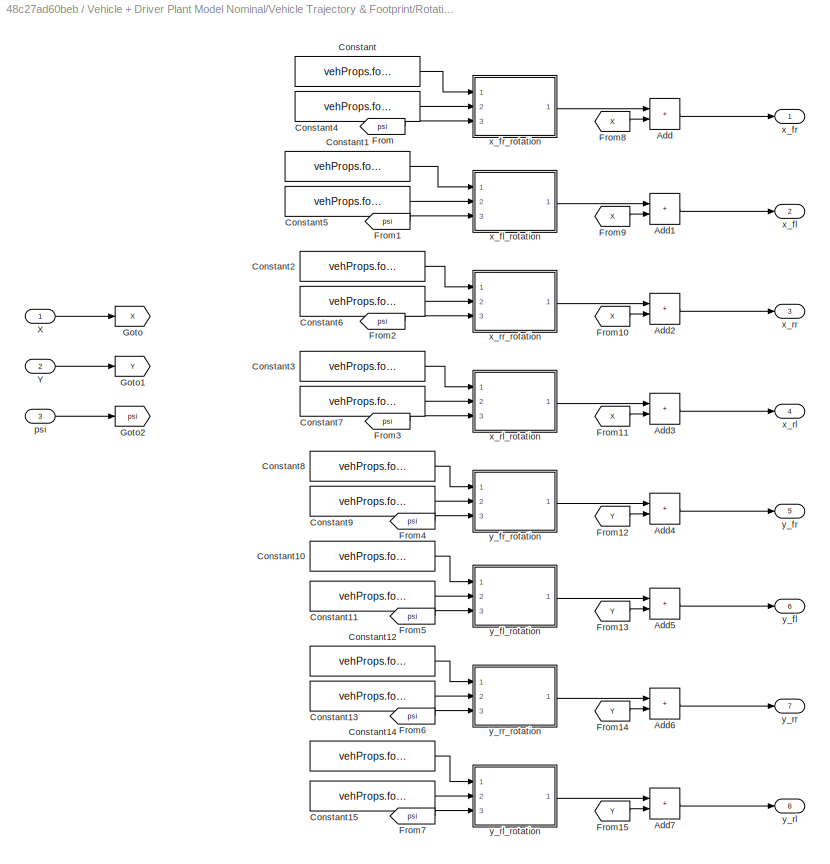
BLOCK [SubSystem] Vehicle + Driver Plant Model Nominal/Vehicle Trajectory & Footprint/Rotations
  Ports = [3, 8]
  RequestExecContextInheritance = off
BLOCK [Sum] Vehicle + Driver Plant Model Nominal/Vehicle Trajectory & Footprint/Rotations/Add
  IconShape = rectangular
  Ports = [2, 1]
BLOCK [Sum] Vehicle + Driver Plant Model Nominal/Vehicle Trajectory & Footprint/Rotations/Add1
  IconShape = rectangular
  Ports = [2, 1]
BLOCK [Sum] Vehicle + Driver Plant Model Nominal/Vehicle Trajectory & Footprint/Rotations/Add2
  IconShape = rectangular
  Ports = [2, 1]
BLOCK [Sum] Vehicle + Driver Plant Model Nominal/Vehicle Trajectory & Footprint/Rotations/Add3
  IconShape = rectangular
  Ports = [2, 1]
BLOCK [Sum] Vehicle + Driver Plant Model Nominal/Vehicle Trajectory & Footprint/Rotations/Add4
  IconShape = rectangular
  Ports = [2, 1]
BLOCK [Sum] Vehicle + Driver Plant Model Nominal/Vehicle Trajectory & Footprint/Rotations/Add5
  IconShape = rectangular
  Ports = [2, 1]
BLOCK [Sum] Vehicle + Driver Plant Model Nominal/Vehicle Trajectory & Footprint/Rotations/Add6
  IconShape = rectangular
  Ports = [2, 1]
BLOCK [Sum] Vehicle + Driver Plant Model Nominal/Vehicle Trajectory & Footprint/Rotations/Add7
  IconShape = rectangular
  Ports = [2, 1]
BLOCK [Constant] Vehicle + Driver Plant Model Nominal/Vehicle Trajectory & Footprint/Rotations/Constant
  Value = vehProps.footprint.x_fr
BLOCK [Constant] Vehicle + Driver Plant Model Nominal/Vehicle Trajectory & Footprint/Rotations/Constant1
  Value = vehProps.footprint.x_fl
BLOCK [Constant] Vehicle + Driver Plant Model Nominal/Vehicle Trajectory & Footprint/Rotations/Constant10
  Value = vehProps.footprint.x_fl
BLOCK [Constant] Vehicle + Driver Plant Model Nominal/Vehicle Trajectory & Footprint/Rotations/Constant11
  Value = vehProps.footprint.y_fl
BLOCK [Constant] Vehicle + Driver Plant Model Nominal/Vehicle Trajectory & Footprint/Rotations/Constant12
  Value = vehProps.footprint.x_rr
BLOCK [Constant] Vehicle + Driver Plant Model Nominal/Vehicle Trajectory & Footprint/Rotations/Constant13
  Value = vehProps.footprint.y_rr
BLOCK [Constant] Vehicle + Driver Plant Model Nominal/Vehicle Trajectory & Footprint/Rotations/Constant14
  Value = vehProps.footprint.x_rl
BLOCK [Constant] Vehicle + Driver Plant Model Nominal/Vehicle Trajectory & Footprint/Rotations/Constant15
  Value = vehProps.footprint.y_rl
BLOCK [Constant] Vehicle + Driver Plant Model Nominal/Vehicle Trajectory & Footprint/Rotations/Constant2
  Value = vehProps.footprint.x_rr
BLOCK [Constant] Vehicle + Driver Plant Model Nominal/Vehicle Trajectory & Footprint/Rotations/Constant3
  Value = vehProps.footprint.x_rl
BLOCK [Constant] Vehicle + Driver Plant Model Nominal/Vehicle Trajectory & Footprint/Rotations/Constant4
  Value = vehProps.footprint.y_fr
BLOCK [Constant] Vehicle + Driver Plant Model Nominal/Vehicle Trajectory & Footprint/Rotations/Constant5
  Value = vehProps.footprint.y_fl
BLOCK [Constant] Vehicle + Driver Plant Model Nominal/Vehicle Trajectory & Footprint/Rotations/Constant6
  Value = vehProps.footprint.y_rr
BLOCK [Constant] Vehicle + Driver Plant Model Nominal/Vehicle Trajectory & Footprint/Rotations/Constant7
  Value = vehProps.footprint.y_rl
BLOCK [Constant] Vehicle + Driver Plant Model Nominal/Vehicle Trajectory & Footprint/Rotations/Constant8
  Value = vehProps.footprint.x_fr
BLOCK [Constant] Vehicle + Driver Plant Model Nominal/Vehicle Trajectory & Footprint/Rotations/Constant9
  Value = vehProps.footprint.y_fr
BLOCK [From] Vehicle + Driver Plant Model Nominal/Vehicle Trajectory & Footprint/Rotations/From
  GotoTag = psi
BLOCK [From] Vehicle + Driver Plant Model Nominal/Vehicle Trajectory & Footprint/Rotations/From1
  GotoTag = psi
BLOCK [From] Vehicle + Driver Plant Model Nominal/Vehicle Trajectory & Footprint/Rotations/From10
  GotoTag = X
BLOCK [From] Vehicle + Driver Plant Model Nominal/Vehicle Trajectory & Footprint/Rotations/From11
  GotoTag = X
BLOCK [From] Vehicle + Driver Plant Model Nominal/Vehicle Trajectory & Footprint/Rotations/From12
  GotoTag = Y
BLOCK [From] Vehicle + Driver Plant Model Nominal/Vehicle Trajectory & Footprint/Rotations/From13
  GotoTag = Y
BLOCK [From] Vehicle + Driver Plant Model Nominal/Vehicle Trajectory & Footprint/Rotations/From14
  GotoTag = Y
BLOCK [From] Vehicle + Driver Plant Model Nominal/Vehicle Trajectory & Footprint/Rotations/From15
  GotoTag = Y
BLOCK [From] Vehicle + Driver Plant Model Nominal/Vehicle Trajectory & Footprint/Rotations/From2
  GotoTag = psi
BLOCK [From] Vehicle + Driver Plant Model Nominal/Vehicle Trajectory & Footprint/Rotations/From3
  GotoTag = psi
BLOCK [From] Vehicle + Driver Plant Model Nominal/Vehicle Trajectory & Footprint/Rotations/From4
  GotoTag = psi
BLOCK [From] Vehicle + Driver Plant Model Nominal/Vehicle Trajectory & Footprint/Rotations/From5
  GotoTag = psi
BLOCK [From] Vehicle + Driver Plant Model Nominal/Vehicle Trajectory & Footprint/Rotations/From6
  GotoTag = psi
BLOCK [From] Vehicle + Driver Plant Model Nominal/Vehicle Trajectory & Footprint/Rotations/From7
  GotoTag = psi
BLOCK [From] Vehicle + Driver Plant Model Nominal/Vehicle Trajectory & Footprint/Rotations/From8
  GotoTag = X
BLOCK [From] Vehicle + Driver Plant Model Nominal/Vehicle Trajectory & Footprint/Rotations/From9
  GotoTag = X
BLOCK [Goto] Vehicle + Driver Plant Model Nominal/Vehicle Trajectory & Footprint/Rotations/Goto
  GotoTag = X
BLOCK [Goto] Vehicle + Driver Plant Model Nominal/Vehicle Trajectory & Footprint/Rotations/Goto1
  GotoTag = Y
BLOCK [Goto] Vehicle + Driver Plant Model Nominal/Vehicle Trajectory & Footprint/Rotations/Goto2
  GotoTag = psi
BLOCK [Inport] Vehicle + Driver Plant Model Nominal/Vehicle Trajectory & Footprint/Rotations/X
BLOCK [Inport] Vehicle + Driver Plant Model Nominal/Vehicle Trajectory & Footprint/Rotations/Y
  Port = 2
BLOCK [Inport] Vehicle + Driver Plant Model Nominal/Vehicle Trajectory & Footprint/Rotations/psi
  Port = 3
BLOCK [Outport] Vehicle + Driver Plant Model Nominal/Vehicle Trajectory & Footprint/Rotations/x_fl
  Port = 2
BLOCK [SubSystem] Vehicle + Driver Plant Model Nominal/Vehicle Trajectory & Footprint/Rotations/x_fl_rotation
  Ports = [3, 1]
  RequestExecContextInheritance = off
BLOCK [Sum] Vehicle + Driver Plant Model Nominal/Vehicle Trajectory & Footprint/Rotations/x_fl_rotation/Add
  IconShape = rectangular
  Inputs = +-
  Ports = [2, 1]
BLOCK [Trigonometry] Vehicle + Driver Plant Model Nominal/Vehicle Trajectory & Footprint/Rotations/x_fl_rotation/Cos
  Operator = cos
  Ports = [1, 1]
BLOCK [Trigonometry] Vehicle + Driver Plant Model Nominal/Vehicle Trajectory & Footprint/Rotations/x_fl_rotation/Cos1
  Ports = [1, 1]
BLOCK [From] Vehicle + Driver Plant Model Nominal/Vehicle Trajectory & Footprint/Rotations/x_fl_rotation/From10
  GotoTag = cos_psi
BLOCK [From] Vehicle + Driver Plant Model Nominal/Vehicle Trajectory & Footprint/Rotations/x_fl_rotation/From11
  GotoTag = sin_psi
BLOCK [Goto] Vehicle + Driver Plant Model Nominal/Vehicle Trajectory & Footprint/Rotations/x_fl_rotation/Goto11
  GotoTag = cos_psi
BLOCK [Goto] Vehicle + Driver Plant Model Nominal/Vehicle Trajectory & Footprint/Rotations/x_fl_rotation/Goto12
  GotoTag = sin_psi
BLOCK [Product] Vehicle + Driver Plant Model Nominal/Vehicle Trajectory & Footprint/Rotations/x_fl_rotation/Product
  Ports = [2, 1]
BLOCK [Product] Vehicle + Driver Plant Model Nominal/Vehicle Trajectory & Footprint/Rotations/x_fl_rotation/Product1
  Ports = [2, 1]
BLOCK [Inport] Vehicle + Driver Plant Model Nominal/Vehicle Trajectory & Footprint/Rotations/x_fl_rotation/psi
  Port = 3
BLOCK [Outport] Vehicle + Driver Plant Model Nominal/Vehicle Trajectory & Footprint/Rotations/x_fl_rotation/x_fl
BLOCK [Inport] Vehicle + Driver Plant Model Nominal/Vehicle Trajectory & Footprint/Rotations/x_fl_rotation/x_fl_tr
BLOCK [Inport] Vehicle + Driver Plant Model Nominal/Vehicle Trajectory & Footprint/Rotations/x_fl_rotation/y_fl_tr
  Port = 2
BLOCK [Outport] Vehicle + Driver Plant Model Nominal/Vehicle Trajectory & Footprint/Rotations/x_fr
BLOCK [SubSystem] Vehicle + Driver Plant Model Nominal/Vehicle Trajectory & Footprint/Rotations/x_fr_rotation
  Ports = [3, 1]
  RequestExecContextInheritance = off
BLOCK [Sum] Vehicle + Driver Plant Model Nominal/Vehicle Trajectory & Footprint/Rotations/x_fr_rotation/Add
  IconShape = rectangular
  Inputs = +-
  Ports = [2, 1]
BLOCK [Trigonometry] Vehicle + Driver Plant Model Nominal/Vehicle Trajectory & Footprint/Rotations/x_fr_rotation/Cos
  Operator = cos
  Ports = [1, 1]
BLOCK [Trigonometry] Vehicle + Driver Plant Model Nominal/Vehicle Trajectory & Footprint/Rotations/x_fr_rotation/Cos1
  Ports = [1, 1]
BLOCK [From] Vehicle + Driver Plant Model Nominal/Vehicle Trajectory & Footprint/Rotations/x_fr_rotation/From10
  GotoTag = cos_psi
BLOCK [From] Vehicle + Driver Plant Model Nominal/Vehicle Trajectory & Footprint/Rotations/x_fr_rotation/From11
  GotoTag = sin_psi
BLOCK [Goto] Vehicle + Driver Plant Model Nominal/Vehicle Trajectory & Footprint/Rotations/x_fr_rotation/Goto11
  GotoTag = cos_psi
BLOCK [Goto] Vehicle + Driver Plant Model Nominal/Vehicle Trajectory & Footprint/Rotations/x_fr_rotation/Goto12
  GotoTag = sin_psi
BLOCK [Product] Vehicle + Driver Plant Model Nominal/Vehicle Trajectory & Footprint/Rotations/x_fr_rotation/Product
  Ports = [2, 1]
BLOCK [Product] Vehicle + Driver Plant Model Nominal/Vehicle Trajectory & Footprint/Rotations/x_fr_rotation/Product1
  Ports = [2, 1]
BLOCK [Inport] Vehicle + Driver Plant Model Nominal/Vehicle Trajectory & Footprint/Rotations/x_fr_rotation/psi
  Port = 3
BLOCK [Outport] Vehicle + Driver Plant Model Nominal/Vehicle Trajectory & Footprint/Rotations/x_fr_rotation/x_fr
BLOCK [Inport] Vehicle + Driver Plant Model Nominal/Vehicle Trajectory & Footprint/Rotations/x_fr_rotation/x_fr_tr
BLOCK [Inport] Vehicle + Driver Plant Model Nominal/Vehicle Trajectory & Footprint/Rotations/x_fr_rotation/y_fr_tr
  Port = 2
BLOCK [Outport] Vehicle + Driver Plant Model Nominal/Vehicle Trajectory & Footprint/Rotations/x_rl
  Port = 4
BLOCK [SubSystem] Vehicle + Driver Plant Model Nominal/Vehicle Trajectory & Footprint/Rotations/x_rl_rotation
  Ports = [3, 1]
  RequestExecContextInheritance = off
BLOCK [Sum] Vehicle + Driver Plant Model Nominal/Vehicle Trajectory & Footprint/Rotations/x_rl_rotation/Add
  IconShape = rectangular
  Inputs = +-
  Ports = [2, 1]
BLOCK [Trigonometry] Vehicle + Driver Plant Model Nominal/Vehicle Trajectory & Footprint/Rotations/x_rl_rotation/Cos
  Operator = cos
  Ports = [1, 1]
BLOCK [Trigonometry] Vehicle + Driver Plant Model Nominal/Vehicle Trajectory & Footprint/Rotations/x_rl_rotation/Cos1
  Ports = [1, 1]
BLOCK [From] Vehicle + Driver Plant Model Nominal/Vehicle Trajectory & Footprint/Rotations/x_rl_rotation/From10
  GotoTag = cos_psi
BLOCK [From] Vehicle + Driver Plant Model Nominal/Vehicle Trajectory & Footprint/Rotations/x_rl_rotation/From11
  GotoTag = sin_psi
BLOCK [Goto] Vehicle + Driver Plant Model Nominal/Vehicle Trajectory & Footprint/Rotations/x_rl_rotation/Goto11
  GotoTag = cos_psi
BLOCK [Goto] Vehicle + Driver Plant Model Nominal/Vehicle Trajectory & Footprint/Rotations/x_rl_rotation/Goto12
  GotoTag = sin_psi
BLOCK [Product] Vehicle + Driver Plant Model Nominal/Vehicle Trajectory & Footprint/Rotations/x_rl_rotation/Product
  Ports = [2, 1]
BLOCK [Product] Vehicle + Driver Plant Model Nominal/Vehicle Trajectory & Footprint/Rotations/x_rl_rotation/Product1
  Ports = [2, 1]
BLOCK [Inport] Vehicle + Driver Plant Model Nominal/Vehicle Trajectory & Footprint/Rotations/x_rl_rotation/psi
  Port = 3
BLOCK [Outport] Vehicle + Driver Plant Model Nominal/Vehicle Trajectory & Footprint/Rotations/x_rl_rotation/x_rl
BLOCK [Inport] Vehicle + Driver Plant Model Nominal/Vehicle Trajectory & Footprint/Rotations/x_rl_rotation/x_rl_tr
BLOCK [Inport] Vehicle + Driver Plant Model Nominal/Vehicle Trajectory & Footprint/Rotations/x_rl_rotation/y_rl_tr
  Port = 2
BLOCK [Outport] Vehicle + Driver Plant Model Nominal/Vehicle Trajectory & Footprint/Rotations/x_rr
  Port = 3
BLOCK [SubSystem] Vehicle + Driver Plant Model Nominal/Vehicle Trajectory & Footprint/Rotations/x_rr_rotation
  Ports = [3, 1]
  RequestExecContextInheritance = off
BLOCK [Sum] Vehicle + Driver Plant Model Nominal/Vehicle Trajectory & Footprint/Rotations/x_rr_rotation/Add
  IconShape = rectangular
  Inputs = +-
  Ports = [2, 1]
BLOCK [Trigonometry] Vehicle + Driver Plant Model Nominal/Vehicle Trajectory & Footprint/Rotations/x_rr_rotation/Cos
  Operator = cos
  Ports = [1, 1]
BLOCK [Trigonometry] Vehicle + Driver Plant Model Nominal/Vehicle Trajectory & Footprint/Rotations/x_rr_rotation/Cos1
  Ports = [1, 1]
BLOCK [From] Vehicle + Driver Plant Model Nominal/Vehicle Trajectory & Footprint/Rotations/x_rr_rotation/From10
  GotoTag = cos_psi
BLOCK [From] Vehicle + Driver Plant Model Nominal/Vehicle Trajectory & Footprint/Rotations/x_rr_rotation/From11
  GotoTag = sin_psi
BLOCK [Goto] Vehicle + Driver Plant Model Nominal/Vehicle Trajectory & Footprint/Rotations/x_rr_rotation/Goto11
  GotoTag = cos_psi
BLOCK [Goto] Vehicle + Driver Plant Model Nominal/Vehicle Trajectory & Footprint/Rotations/x_rr_rotation/Goto12
  GotoTag = sin_psi
BLOCK [Product] Vehicle + Driver Plant Model Nominal/Vehicle Trajectory & Footprint/Rotations/x_rr_rotation/Product
  Ports = [2, 1]
BLOCK [Product] Vehicle + Driver Plant Model Nominal/Vehicle Trajectory & Footprint/Rotations/x_rr_rotation/Product1
  Ports = [2, 1]
BLOCK [Inport] Vehicle + Driver Plant Model Nominal/Vehicle Trajectory & Footprint/Rotations/x_rr_rotation/psi
  Port = 3
BLOCK [Outport] Vehicle + Driver Plant Model Nominal/Vehicle Trajectory & Footprint/Rotations/x_rr_rotation/x_rr
BLOCK [Inport] Vehicle + Driver Plant Model Nominal/Vehicle Trajectory & Footprint/Rotations/x_rr_rotation/x_rr_tr
BLOCK [Inport] Vehicle + Driver Plant Model Nominal/Vehicle Trajectory & Footprint/Rotations/x_rr_rotation/y_rr_tr
  Port = 2
BLOCK [Outport] Vehicle + Driver Plant Model Nominal/Vehicle Trajectory & Footprint/Rotations/y_fl
  Port = 6
BLOCK [SubSystem] Vehicle + Driver Plant Model Nominal/Vehicle Trajectory & Footprint/Rotations/y_fl_rotation
  Ports = [3, 1]
  RequestExecContextInheritance = off
BLOCK [Sum] Vehicle + Driver Plant Model Nominal/Vehicle Trajectory & Footprint/Rotations/y_fl_rotation/Add
  IconShape = rectangular
  Ports = [2, 1]
BLOCK [Trigonometry] Vehicle + Driver Plant Model Nominal/Vehicle Trajectory & Footprint/Rotations/y_fl_rotation/Cos
  Operator = cos
  Ports = [1, 1]
BLOCK [Trigonometry] Vehicle + Driver Plant Model Nominal/Vehicle Trajectory & Footprint/Rotations/y_fl_rotation/Cos1
  Ports = [1, 1]
BLOCK [From] Vehicle + Driver Plant Model Nominal/Vehicle Trajectory & Footprint/Rotations/y_fl_rotation/From10
  GotoTag = cos_psi
BLOCK [From] Vehicle + Driver Plant Model Nominal/Vehicle Trajectory & Footprint/Rotations/y_fl_rotation/From11
  GotoTag = sin_psi
BLOCK [Goto] Vehicle + Driver Plant Model Nominal/Vehicle Trajectory & Footprint/Rotations/y_fl_rotation/Goto11
  GotoTag = cos_psi
BLOCK [Goto] Vehicle + Driver Plant Model Nominal/Vehicle Trajectory & Footprint/Rotations/y_fl_rotation/Goto12
  GotoTag = sin_psi
BLOCK [Product] Vehicle + Driver Plant Model Nominal/Vehicle Trajectory & Footprint/Rotations/y_fl_rotation/Product
  Ports = [2, 1]
BLOCK [Product] Vehicle + Driver Plant Model Nominal/Vehicle Trajectory & Footprint/Rotations/y_fl_rotation/Product1
  Ports = [2, 1]
BLOCK [Inport] Vehicle + Driver Plant Model Nominal/Vehicle Trajectory & Footprint/Rotations/y_fl_rotation/psi
  Port = 3
BLOCK [Inport] Vehicle + Driver Plant Model Nominal/Vehicle Trajectory & Footprint/Rotations/y_fl_rotation/x_fl_tr
BLOCK [Outport] Vehicle + Driver Plant Model Nominal/Vehicle Trajectory & Footprint/Rotations/y_fl_rotation/y_fl
BLOCK [Inport] Vehicle + Driver Plant Model Nominal/Vehicle Trajectory & Footprint/Rotations/y_fl_rotation/y_fl_tr
  Port = 2
BLOCK [Outport] Vehicle + Driver Plant Model Nominal/Vehicle Trajectory & Footprint/Rotations/y_fr
  Port = 5
BLOCK [SubSystem] Vehicle + Driver Plant Model Nominal/Vehicle Trajectory & Footprint/Rotations/y_fr_rotation
  Ports = [3, 1]
  RequestExecContextInheritance = off
BLOCK [Sum] Vehicle + Driver Plant Model Nominal/Vehicle Trajectory & Footprint/Rotations/y_fr_rotation/Add
  IconShape = rectangular
  Ports = [2, 1]
BLOCK [Trigonometry] Vehicle + Driver Plant Model Nominal/Vehicle Trajectory & Footprint/Rotations/y_fr_rotation/Cos
  Operator = cos
  Ports = [1, 1]
BLOCK [Trigonometry] Vehicle + Driver Plant Model Nominal/Vehicle Trajectory & Footprint/Rotations/y_fr_rotation/Cos1
  Ports = [1, 1]
BLOCK [From] Vehicle + Driver Plant Model Nominal/Vehicle Trajectory & Footprint/Rotations/y_fr_rotation/From10
  GotoTag = cos_psi
BLOCK [From] Vehicle + Driver Plant Model Nominal/Vehicle Trajectory & Footprint/Rotations/y_fr_rotation/From11
  GotoTag = sin_psi
BLOCK [Goto] Vehicle + Driver Plant Model Nominal/Vehicle Trajectory & Footprint/Rotations/y_fr_rotation/Goto11
  GotoTag = cos_psi
BLOCK [Goto] Vehicle + Driver Plant Model Nominal/Vehicle Trajectory & Footprint/Rotations/y_fr_rotation/Goto12
  GotoTag = sin_psi
BLOCK [Product] Vehicle + Driver Plant Model Nominal/Vehicle Trajectory & Footprint/Rotations/y_fr_rotation/Product
  Ports = [2, 1]
BLOCK [Product] Vehicle + Driver Plant Model Nominal/Vehicle Trajectory & Footprint/Rotations/y_fr_rotation/Product1
  Ports = [2, 1]
BLOCK [Inport] Vehicle + Driver Plant Model Nominal/Vehicle Trajectory & Footprint/Rotations/y_fr_rotation/psi
  Port = 3
BLOCK [Inport] Vehicle + Driver Plant Model Nominal/Vehicle Trajectory & Footprint/Rotations/y_fr_rotation/x_fr_tr
BLOCK [Outport] Vehicle + Driver Plant Model Nominal/Vehicle Trajectory & Footprint/Rotations/y_fr_rotation/y_fr
BLOCK [Inport] Vehicle + Driver Plant Model Nominal/Vehicle Trajectory & Footprint/Rotations/y_fr_rotation/y_fr_tr
  Port = 2
BLOCK [Outport] Vehicle + Driver Plant Model Nominal/Vehicle Trajectory & Footprint/Rotations/y_rl
  Port = 8
BLOCK [SubSystem] Vehicle + Driver Plant Model Nominal/Vehicle Trajectory & Footprint/Rotations/y_rl_rotation
  Ports = [3, 1]
  RequestExecContextInheritance = off
BLOCK [Sum] Vehicle + Driver Plant Model Nominal/Vehicle Trajectory & Footprint/Rotations/y_rl_rotation/Add
  IconShape = rectangular
  Ports = [2, 1]
BLOCK [Trigonometry] Vehicle + Driver Plant Model Nominal/Vehicle Trajectory & Footprint/Rotations/y_rl_rotation/Cos
  Operator = cos
  Ports = [1, 1]
BLOCK [Trigonometry] Vehicle + Driver Plant Model Nominal/Vehicle Trajectory & Footprint/Rotations/y_rl_rotation/Cos1
  Ports = [1, 1]
BLOCK [From] Vehicle + Driver Plant Model Nominal/Vehicle Trajectory & Footprint/Rotations/y_rl_rotation/From10
  GotoTag = cos_psi
BLOCK [From] Vehicle + Driver Plant Model Nominal/Vehicle Trajectory & Footprint/Rotations/y_rl_rotation/From11
  GotoTag = sin_psi
BLOCK [Goto] Vehicle + Driver Plant Model Nominal/Vehicle Trajectory & Footprint/Rotations/y_rl_rotation/Goto11
  GotoTag = cos_psi
BLOCK [Goto] Vehicle + Driver Plant Model Nominal/Vehicle Trajectory & Footprint/Rotations/y_rl_rotation/Goto12
  GotoTag = sin_psi
BLOCK [Product] Vehicle + Driver Plant Model Nominal/Vehicle Trajectory & Footprint/Rotations/y_rl_rotation/Product
  Ports = [2, 1]
BLOCK [Product] Vehicle + Driver Plant Model Nominal/Vehicle Trajectory & Footprint/Rotations/y_rl_rotation/Product1
  Ports = [2, 1]
BLOCK [Inport] Vehicle + Driver Plant Model Nominal/Vehicle Trajectory & Footprint/Rotations/y_rl_rotation/psi
  Port = 3
BLOCK [Inport] Vehicle + Driver Plant Model Nominal/Vehicle Trajectory & Footprint/Rotations/y_rl_rotation/x_rl_tr
BLOCK [Outport] Vehicle + Driver Plant Model Nominal/Vehicle Trajectory & Footprint/Rotations/y_rl_rotation/y_rl
BLOCK [Inport] Vehicle + Driver Plant Model Nominal/Vehicle Trajectory & Footprint/Rotations/y_rl_rotation/y_rl_tr
  Port = 2
BLOCK [Outport] Vehicle + Driver Plant Model Nominal/Vehicle Trajectory & Footprint/Rotations/y_rr
  Port = 7
BLOCK [SubSystem] Vehicle + Driver Plant Model Nominal/Vehicle Trajectory & Footprint/Rotations/y_rr_rotation
  Ports = [3, 1]
  RequestExecContextInheritance = off
BLOCK [Sum] Vehicle + Driver Plant Model Nominal/Vehicle Trajectory & Footprint/Rotations/y_rr_rotation/Add
  IconShape = rectangular
  Ports = [2, 1]
BLOCK [Trigonometry] Vehicle + Driver Plant Model Nominal/Vehicle Trajectory & Footprint/Rotations/y_rr_rotation/Cos
  Operator = cos
  Ports = [1, 1]
BLOCK [Trigonometry] Vehicle + Driver Plant Model Nominal/Vehicle Trajectory & Footprint/Rotations/y_rr_rotation/Cos1
  Ports = [1, 1]
BLOCK [From] Vehicle + Driver Plant Model Nominal/Vehicle Trajectory & Footprint/Rotations/y_rr_rotation/From10
  GotoTag = cos_psi
BLOCK [From] Vehicle + Driver Plant Model Nominal/Vehicle Trajectory & Footprint/Rotations/y_rr_rotation/From11
  GotoTag = sin_psi
BLOCK [Goto] Vehicle + Driver Plant Model Nominal/Vehicle Trajectory & Footprint/Rotations/y_rr_rotation/Goto11
  GotoTag = cos_psi
BLOCK [Goto] Vehicle + Driver Plant Model Nominal/Vehicle Trajectory & Footprint/Rotations/y_rr_rotation/Goto12
  GotoTag = sin_psi
BLOCK [Product] Vehicle + Driver Plant Model Nominal/Vehicle Trajectory & Footprint/Rotations/y_rr_rotation/Product
  Ports = [2, 1]
BLOCK [Product] Vehicle + Driver Plant Model Nominal/Vehicle Trajectory & Footprint/Rotations/y_rr_rotation/Product1
  Ports = [2, 1]
BLOCK [Inport] Vehicle + Driver Plant Model Nominal/Vehicle Trajectory & Footprint/Rotations/y_rr_rotation/psi
  Port = 3
BLOCK [Inport] Vehicle + Driver Plant Model Nominal/Vehicle Trajectory & Footprint/Rotations/y_rr_rotation/x_rr_tr
BLOCK [Outport] Vehicle + Driver Plant Model Nominal/Vehicle Trajectory & Footprint/Rotations/y_rr_rotation/y_rr
BLOCK [Inport] Vehicle + Driver Plant Model Nominal/Vehicle Trajectory & Footprint/Rotations/y_rr_rotation/y_rr_tr
  Port = 2
BLOCK [Outport] Vehicle + Driver Plant Model Nominal/Vehicle Trajectory & Footprint/X
BLOCK [Outport] Vehicle + Driver Plant Model Nominal/Vehicle Trajectory & Footprint/Y
  Port = 2
BLOCK [Inport] Vehicle + Driver Plant Model Nominal/Vehicle Trajectory & Footprint/beta
BLOCK [Inport] Vehicle + Driver Plant Model Nominal/Vehicle Trajectory & Footprint/psi
  Port = 2
BLOCK [Outport] Vehicle + Driver Plant Model Nominal/Vehicle Trajectory & Footprint/x_fl
  Port = 4
BLOCK [Outport] Vehicle + Driver Plant Model Nominal/Vehicle Trajectory & Footprint/x_fr
  Port = 3
BLOCK [Outport] Vehicle + Driver Plant Model Nominal/Vehicle Trajectory & Footprint/x_rl
  Port = 6
BLOCK [Outport] Vehicle + Driver Plant Model Nominal/Vehicle Trajectory & Footprint/x_rr
  Port = 5
BLOCK [SubSystem] Vehicle + Driver Plant Model Nominal/Vehicle Trajectory & Footprint/x_translations
  Commented = on
  Ports = [3, 4]
  RequestExecContextInheritance = off
BLOCK [Sum] Vehicle + Driver Plant Model Nominal/Vehicle Trajectory & Footprint/x_translations/Add
  IconShape = rectangular
  Ports = [2, 1]
BLOCK [Trigonometry] Vehicle + Driver Plant Model Nominal/Vehicle Trajectory & Footprint/x_translations/Cos
  Operator = cos
  Ports = [1, 1]
BLOCK [Integrator] Vehicle + Driver Plant Model Nominal/Vehicle Trajectory & Footprint/x_translations/FL
  InitialCondition = vehProps.footprint.x_fl
  Ports = [1, 1]
BLOCK [Integrator] Vehicle + Driver Plant Model Nominal/Vehicle Trajectory & Footprint/x_translations/FR
  InitialCondition = vehProps.footprint.x_fr
  Ports = [1, 1]
BLOCK [From] Vehicle + Driver Plant Model Nominal/Vehicle Trajectory & Footprint/x_translations/From
  GotoTag = X_dot
BLOCK [From] Vehicle + Driver Plant Model Nominal/Vehicle Trajectory & Footprint/x_translations/From1
  GotoTag = X_dot
BLOCK [From] Vehicle + Driver Plant Model Nominal/Vehicle Trajectory & Footprint/x_translations/From2
  GotoTag = X_dot
BLOCK [From] Vehicle + Driver Plant Model Nominal/Vehicle Trajectory & Footprint/x_translations/From3
  GotoTag = X_dot
BLOCK [Goto] Vehicle + Driver Plant Model Nominal/Vehicle Trajectory & Footprint/x_translations/Goto
  GotoTag = X_dot
BLOCK [Product] Vehicle + Driver Plant Model Nominal/Vehicle Trajectory & Footprint/x_translations/Product
  Ports = [2, 1]
BLOCK [Integrator] Vehicle + Driver Plant Model Nominal/Vehicle Trajectory & Footprint/x_translations/RL
  InitialCondition = vehProps.footprint.x_rl
  Ports = [1, 1]
BLOCK [Integrator] Vehicle + Driver Plant Model Nominal/Vehicle Trajectory & Footprint/x_translations/RR
  InitialCondition = vehProps.footprint.x_rr
  Ports = [1, 1]
BLOCK [Inport] Vehicle + Driver Plant Model Nominal/Vehicle Trajectory & Footprint/x_translations/V
BLOCK [Inport] Vehicle + Driver Plant Model Nominal/Vehicle Trajectory & Footprint/x_translations/beta
  Port = 2
BLOCK [Inport] Vehicle + Driver Plant Model Nominal/Vehicle Trajectory & Footprint/x_translations/psi
  Port = 3
BLOCK [Outport] Vehicle + Driver Plant Model Nominal/Vehicle Trajectory & Footprint/x_translations/x_fl
  Port = 2
BLOCK [Outport] Vehicle + Driver Plant Model Nominal/Vehicle Trajectory & Footprint/x_translations/x_fr
BLOCK [Outport] Vehicle + Driver Plant Model Nominal/Vehicle Trajectory & Footprint/x_translations/x_rl
  Port = 4
BLOCK [Outport] Vehicle + Driver Plant Model Nominal/Vehicle Trajectory & Footprint/x_translations/x_rr
  Port = 3
BLOCK [Outport] Vehicle + Driver Plant Model Nominal/Vehicle Trajectory & Footprint/y_fl
  Port = 8
BLOCK [Outport] Vehicle + Driver Plant Model Nominal/Vehicle Trajectory & Footprint/y_fr
  Port = 7
BLOCK [Outport] Vehicle + Driver Plant Model Nominal/Vehicle Trajectory & Footprint/y_rl
  Port = 10
BLOCK [Outport] Vehicle + Driver Plant Model Nominal/Vehicle Trajectory & Footprint/y_rr
  Port = 9
BLOCK [SubSystem] Vehicle + Driver Plant Model Nominal/Vehicle Trajectory & Footprint/y_translations
  Commented = on
  Ports = [3, 4]
  RequestExecContextInheritance = off
BLOCK [Sum] Vehicle + Driver Plant Model Nominal/Vehicle Trajectory & Footprint/y_translations/Add4
  IconShape = rectangular
  Ports = [2, 1]
BLOCK [Trigonometry] Vehicle + Driver Plant Model Nominal/Vehicle Trajectory & Footprint/y_translations/Cos
  Ports = [1, 1]
BLOCK [From] Vehicle + Driver Plant Model Nominal/Vehicle Trajectory & Footprint/y_translations/From
  GotoTag = Y_dot
BLOCK [From] Vehicle + Driver Plant Model Nominal/Vehicle Trajectory & Footprint/y_translations/From1
  GotoTag = Y_dot
BLOCK [From] Vehicle + Driver Plant Model Nominal/Vehicle Trajectory & Footprint/y_translations/From2
  GotoTag = Y_dot
BLOCK [From] Vehicle + Driver Plant Model Nominal/Vehicle Trajectory & Footprint/y_translations/From3
  GotoTag = Y_dot
BLOCK [Goto] Vehicle + Driver Plant Model Nominal/Vehicle Trajectory & Footprint/y_translations/Goto3
  GotoTag = Y_dot
BLOCK [Product] Vehicle + Driver Plant Model Nominal/Vehicle Trajectory & Footprint/y_translations/Product4
  Ports = [2, 1]
BLOCK [Inport] Vehicle + Driver Plant Model Nominal/Vehicle Trajectory & Footprint/y_translations/V
  Port = 3
BLOCK [Integrator] Vehicle + Driver Plant Model Nominal/Vehicle Trajectory & Footprint/y_translations/Y_FL
  InitialCondition = vehProps.footprint.y_fl
  Ports = [1, 1]
BLOCK [Integrator] Vehicle + Driver Plant Model Nominal/Vehicle Trajectory & Footprint/y_translations/Y_FR
  InitialCondition = vehProps.footprint.y_fr
  Ports = [1, 1]
BLOCK [Integrator] Vehicle + Driver Plant Model Nominal/Vehicle Trajectory & Footprint/y_translations/Y_RL
  InitialCondition = vehProps.footprint.y_rl
  Ports = [1, 1]
BLOCK [Integrator] Vehicle + Driver Plant Model Nominal/Vehicle Trajectory & Footprint/y_translations/Y_RR
  InitialCondition = vehProps.footprint.y_rr
  Ports = [1, 1]
BLOCK [Inport] Vehicle + Driver Plant Model Nominal/Vehicle Trajectory & Footprint/y_translations/beta
BLOCK [Inport] Vehicle + Driver Plant Model Nominal/Vehicle Trajectory & Footprint/y_translations/psi
  Port = 2
BLOCK [Outport] Vehicle + Driver Plant Model Nominal/Vehicle Trajectory & Footprint/y_translations/y_fl
  Port = 2
BLOCK [Outport] Vehicle + Driver Plant Model Nominal/Vehicle Trajectory & Footprint/y_translations/y_fr
BLOCK [Outport] Vehicle + Driver Plant Model Nominal/Vehicle Trajectory & Footprint/y_translations/y_rl
  Port = 4
BLOCK [Outport] Vehicle + Driver Plant Model Nominal/Vehicle Trajectory & Footprint/y_translations/y_rr
  Port = 3
BLOCK [BusCreator] Vehicle + Driver Plant Model Nominal/vehicle
  DisplayOption = bar
  InheritFromInputs = on
  Inputs = 11
  Ports = [11, 1]
BLOCK [BusCreator] Vehicle + Driver Plant Model Nominal/vehicle1
  DisplayOption = bar
  InheritFromInputs = on
  Inputs = 8
  Ports = [8, 1]
LINE Ancillary Controller/Add1:1 -> Ancillary Controller/Bus Creator:1
LINE Ancillary Controller/Add:1 -> Ancillary Controller/Add1:1
LINE Ancillary Controller/Bus Creator:1 -> Ancillary Controller/ANC:1
LINE Ancillary Controller/Bus Selector1:1 -> Ancillary Controller/Goto6:1
LINE Ancillary Controller/Bus Selector1:2 -> Ancillary Controller/Goto7:1
LINE Ancillary Controller/Bus Selector1:3 -> Ancillary Controller/Goto8:1
LINE Ancillary Controller/Bus Selector1:4 -> Ancillary Controller/Goto9:1
LINE Ancillary Controller/Bus Selector1:5 -> Ancillary Controller/Goto10:1
LINE Ancillary Controller/Bus Selector2:1 -> Ancillary Controller/Add1:2
LINE Ancillary Controller/Bus Selector:1 -> Ancillary Controller/Goto1:1
LINE Ancillary Controller/Bus Selector:2 -> Ancillary Controller/Goto2:1
LINE Ancillary Controller/Bus Selector:3 -> Ancillary Controller/Goto3:1
LINE Ancillary Controller/Bus Selector:4 -> Ancillary Controller/Goto4:1
LINE Ancillary Controller/Bus Selector:5 -> Ancillary Controller/Goto5:1
LINE Ancillary Controller/From10:1 -> Ancillary Controller/Subtract5:2
LINE Ancillary Controller/From1:1 -> Ancillary Controller/Subtract1:1
LINE Ancillary Controller/From2:1 -> Ancillary Controller/Subtract1:2
LINE Ancillary Controller/From3:1 -> Ancillary Controller/Subtract2:1
LINE Ancillary Controller/From4:1 -> Ancillary Controller/Subtract2:2
LINE Ancillary Controller/From5:1 -> Ancillary Controller/Subtract3:1
LINE Ancillary Controller/From6:1 -> Ancillary Controller/Subtract3:2
LINE Ancillary Controller/From7:1 -> Ancillary Controller/Subtract4:1
LINE Ancillary Controller/From8:1 -> Ancillary Controller/Subtract4:2
LINE Ancillary Controller/From9:1 -> Ancillary Controller/Subtract5:1
LINE Ancillary Controller/From:1 -> Ancillary Controller/Bus Selector2:1
LINE Ancillary Controller/Gain1:1 -> Ancillary Controller/Add:2
LINE Ancillary Controller/Gain2:1 -> Ancillary Controller/Add:3
LINE Ancillary Controller/Gain3:1 -> Ancillary Controller/Add:4
LINE Ancillary Controller/Gain4:1 -> Ancillary Controller/Add:5
LINE Ancillary Controller/Gain:1 -> Ancillary Controller/Add:1
NET Ancillary Controller/In1:1 -> Ancillary Controller/Bus Selector1:1, Ancillary Controller/Bus Selector:1, Ancillary Controller/Goto:1
LINE Ancillary Controller/Subtract1:1 -> Ancillary Controller/Gain:1
LINE Ancillary Controller/Subtract2:1 -> Ancillary Controller/Gain1:1
LINE Ancillary Controller/Subtract3:1 -> Ancillary Controller/Gain2:1
LINE Ancillary Controller/Subtract4:1 -> Ancillary Controller/Gain3:1
LINE Ancillary Controller/Subtract5:1 -> Ancillary Controller/Gain4:1
LINE Ancillary Controller:1 -> MAIN_BUS:5
LINE Logging/Actual Plant:1 -> Logging/To Workspace1:1
LINE Logging/Actual Plant:2 -> Logging/To Workspace2:1
LINE Logging/Actual Plant:3 -> Logging/To Workspace3:1
LINE Logging/Actual Plant:4 -> Logging/To Workspace4:1
LINE Logging/Actual Plant:5 -> Logging/To Workspace5:1
LINE Logging/Bus Selector:1 -> Logging/To Workspace:1
LINE Logging/Control:1 -> Logging/To Workspace11:1
LINE Logging/Control:2 -> Logging/To Workspace12:1
NET Logging/In1:1 -> Logging/Actual Plant:1, Logging/Bus Selector:1, Logging/Control:1, Logging/Nominal Plant:1
LINE Logging/Nominal Plant:1 -> Logging/To Workspace6:1
LINE Logging/Nominal Plant:2 -> Logging/To Workspace7:1
LINE Logging/Nominal Plant:3 -> Logging/To Workspace8:1
LINE Logging/Nominal Plant:4 -> Logging/To Workspace9:1
LINE Logging/Nominal Plant:5 -> Logging/To Workspace10:1
NET MAIN_BUS:1 -> Ancillary Controller:1, Logging:1, Nominal MPC:1, Reference Generator:1, Vehicle + Driver Plant Model Actual:1, Vehicle + Driver Plant Model Nominal:1
LINE Nominal MPC/Bus Creator1:1 -> Nominal MPC/STRASST:1
LINE Nominal MPC/Bus Selector:1 -> Nominal MPC/Mux1:1
LINE Nominal MPC/Bus Selector:2 -> Nominal MPC/Mux1:2
LINE Nominal MPC/Bus Selector:3 -> Nominal MPC/Mux1:3
LINE Nominal MPC/Bus Selector:4 -> Nominal MPC/Mux1:4
LINE Nominal MPC/Bus Selector:5 -> Nominal MPC/Mux1:5
LINE Nominal MPC/Bus Selector:6 -> Nominal MPC/Mux1:6
LINE Nominal MPC/Bus Selector:7 -> Nominal MPC/Mux1:7
NET Nominal MPC/Controller:1 -> Nominal MPC/Bus Creator1:1, Nominal MPC/Mux:1
NET Nominal MPC/Controller:2 -> Nominal MPC/Bus Creator1:2, Nominal MPC/Mux:2
LINE Nominal MPC/In1:1 -> Nominal MPC/Bus Selector:1
LINE Nominal MPC/Memory1:1 -> Nominal MPC/Controller:2
LINE Nominal MPC/Mux1:1 -> Nominal MPC/Controller:1
LINE Nominal MPC/Mux:1 -> Nominal MPC/Memory1:1
LINE Nominal MPC:1 -> MAIN_BUS:4
LINE Reference Generator/1-D Lookup Table:1 -> Reference Generator/reference:1
LINE Reference Generator/Add1:1 -> Reference Generator/1-D Lookup Table:1
LINE Reference Generator/Bus Selector:1 -> Reference Generator/Add1:1
LINE Reference Generator/Constant:1 -> Reference Generator/Add1:2
LINE Reference Generator/In1:1 -> Reference Generator/Bus Selector:1
LINE Reference Generator/reference:1 -> Reference Generator/REF:1
LINE Reference Generator:1 -> MAIN_BUS:1
NET Vehicle + Driver Plant Model Actual/Bicycle Model with Front Steering/Add:1 -> Vehicle + Driver Plant Model Actual/Bicycle Model with Front Steering/Goto9:1, Vehicle + Driver Plant Model Actual/Bicycle Model with Front Steering/delta_total:1
LINE Vehicle + Driver Plant Model Actual/Bicycle Model with Front Steering/Constant10:1 -> Vehicle + Driver Plant Model Actual/Bicycle Model with Front Steering/Slip Angle:3
LINE Vehicle + Driver Plant Model Actual/Bicycle Model with Front Steering/Constant11:1 -> Vehicle + Driver Plant Model Actual/Bicycle Model with Front Steering/Slip Angle:4
LINE Vehicle + Driver Plant Model Actual/Bicycle Model with Front Steering/Constant12:1 -> Vehicle + Driver Plant Model Actual/Bicycle Model with Front Steering/Slip Angle:5
LINE Vehicle + Driver Plant Model Actual/Bicycle Model with Front Steering/Constant1:1 -> Vehicle + Driver Plant Model Actual/Bicycle Model with Front Steering/Derivatives Of Stability:2
LINE Vehicle + Driver Plant Model Actual/Bicycle Model with Front Steering/Constant2:1 -> Vehicle + Driver Plant Model Actual/Bicycle Model with Front Steering/Derivatives Of Stability:3
LINE Vehicle + Driver Plant Model Actual/Bicycle Model with Front Steering/Constant3:1 -> Vehicle + Driver Plant Model Actual/Bicycle Model with Front Steering/Derivatives Of Stability:4
LINE Vehicle + Driver Plant Model Actual/Bicycle Model with Front Steering/Constant4:1 -> Vehicle + Driver Plant Model Actual/Bicycle Model with Front Steering/Derivatives Of Stability:5
LINE Vehicle + Driver Plant Model Actual/Bicycle Model with Front Steering/Constant5:1 -> Vehicle + Driver Plant Model Actual/Bicycle Model with Front Steering/Derivatives Of Stability:6
LINE Vehicle + Driver Plant Model Actual/Bicycle Model with Front Steering/Constant6:1 -> Vehicle + Driver Plant Model Actual/Bicycle Model with Front Steering/Derivatives Of Stability:7
LINE Vehicle + Driver Plant Model Actual/Bicycle Model with Front Steering/Constant7:1 -> Vehicle + Driver Plant Model Actual/Bicycle Model with Front Steering/beta_dynamics:4
LINE Vehicle + Driver Plant Model Actual/Bicycle Model with Front Steering/Constant8:1 -> Vehicle + Driver Plant Model Actual/Bicycle Model with Front Steering/beta_dynamics:5
LINE Vehicle + Driver Plant Model Actual/Bicycle Model with Front Steering/Constant9:1 -> Vehicle + Driver Plant Model Actual/Bicycle Model with Front Steering/yaw_dynamics:7
LINE Vehicle + Driver Plant Model Actual/Bicycle Model with Front Steering/Constant:1 -> Vehicle + Driver Plant Model Actual/Bicycle Model with Front Steering/Derivatives Of Stability:1
LINE Vehicle + Driver Plant Model Actual/Bicycle Model with Front Steering/Derivatives Of Stability/C1:1 -> Vehicle + Driver Plant Model Actual/Bicycle Model with Front Steering/Derivatives Of Stability/Goto:1
LINE Vehicle + Driver Plant Model Actual/Bicycle Model with Front Steering/Derivatives Of Stability/C2:1 -> Vehicle + Driver Plant Model Actual/Bicycle Model with Front Steering/Derivatives Of Stability/Goto1:1
LINE Vehicle + Driver Plant Model Actual/Bicycle Model with Front Steering/Derivatives Of Stability/CMz1:1 -> Vehicle + Driver Plant Model Actual/Bicycle Model with Front Steering/Derivatives Of Stability/Goto5:1
LINE Vehicle + Driver Plant Model Actual/Bicycle Model with Front Steering/Derivatives Of Stability/CMz2:1 -> Vehicle + Driver Plant Model Actual/Bicycle Model with Front Steering/Derivatives Of Stability/Goto6:1
LINE Vehicle + Driver Plant Model Actual/Bicycle Model with Front Steering/Derivatives Of Stability/From10:1 -> Vehicle + Driver Plant Model Actual/Bicycle Model with Front Steering/Derivatives Of Stability/Subsystem2:3
LINE Vehicle + Driver Plant Model Actual/Bicycle Model with Front Steering/Derivatives Of Stability/From11:1 -> Vehicle + Driver Plant Model Actual/Bicycle Model with Front Steering/Derivatives Of Stability/Subsystem2:4
LINE Vehicle + Driver Plant Model Actual/Bicycle Model with Front Steering/Derivatives Of Stability/From12:1 -> Vehicle + Driver Plant Model Actual/Bicycle Model with Front Steering/Derivatives Of Stability/Subsystem2:5
LINE Vehicle + Driver Plant Model Actual/Bicycle Model with Front Steering/Derivatives Of Stability/From13:1 -> Vehicle + Driver Plant Model Actual/Bicycle Model with Front Steering/Derivatives Of Stability/Subsystem2:6
LINE Vehicle + Driver Plant Model Actual/Bicycle Model with Front Steering/Derivatives Of Stability/From14:1 -> Vehicle + Driver Plant Model Actual/Bicycle Model with Front Steering/Derivatives Of Stability/Subsystem3:1
LINE Vehicle + Driver Plant Model Actual/Bicycle Model with Front Steering/Derivatives Of Stability/From15:1 -> Vehicle + Driver Plant Model Actual/Bicycle Model with Front Steering/Derivatives Of Stability/Subsystem3:2
LINE Vehicle + Driver Plant Model Actual/Bicycle Model with Front Steering/Derivatives Of Stability/From16:1 -> Vehicle + Driver Plant Model Actual/Bicycle Model with Front Steering/Derivatives Of Stability/Subsystem3:3
LINE Vehicle + Driver Plant Model Actual/Bicycle Model with Front Steering/Derivatives Of Stability/From17:1 -> Vehicle + Driver Plant Model Actual/Bicycle Model with Front Steering/Derivatives Of Stability/Subsystem3:4
LINE Vehicle + Driver Plant Model Actual/Bicycle Model with Front Steering/Derivatives Of Stability/From18:1 -> Vehicle + Driver Plant Model Actual/Bicycle Model with Front Steering/Derivatives Of Stability/Subsystem3:7
LINE Vehicle + Driver Plant Model Actual/Bicycle Model with Front Steering/Derivatives Of Stability/From19:1 -> Vehicle + Driver Plant Model Actual/Bicycle Model with Front Steering/Derivatives Of Stability/Subsystem3:5
LINE Vehicle + Driver Plant Model Actual/Bicycle Model with Front Steering/Derivatives Of Stability/From1:1 -> Vehicle + Driver Plant Model Actual/Bicycle Model with Front Steering/Derivatives Of Stability/Subsystem:2
LINE Vehicle + Driver Plant Model Actual/Bicycle Model with Front Steering/Derivatives Of Stability/From20:1 -> Vehicle + Driver Plant Model Actual/Bicycle Model with Front Steering/Derivatives Of Stability/Subsystem4:1
LINE Vehicle + Driver Plant Model Actual/Bicycle Model with Front Steering/Derivatives Of Stability/From21:1 -> Vehicle + Driver Plant Model Actual/Bicycle Model with Front Steering/Derivatives Of Stability/Subsystem3:6
LINE Vehicle + Driver Plant Model Actual/Bicycle Model with Front Steering/Derivatives Of Stability/From22:1 -> Vehicle + Driver Plant Model Actual/Bicycle Model with Front Steering/Derivatives Of Stability/Subsystem4:2
LINE Vehicle + Driver Plant Model Actual/Bicycle Model with Front Steering/Derivatives Of Stability/From23:1 -> Vehicle + Driver Plant Model Actual/Bicycle Model with Front Steering/Derivatives Of Stability/Subsystem4:3
LINE Vehicle + Driver Plant Model Actual/Bicycle Model with Front Steering/Derivatives Of Stability/From2:1 -> Vehicle + Driver Plant Model Actual/Bicycle Model with Front Steering/Derivatives Of Stability/Subsystem1:2
LINE Vehicle + Driver Plant Model Actual/Bicycle Model with Front Steering/Derivatives Of Stability/From3:1 -> Vehicle + Driver Plant Model Actual/Bicycle Model with Front Steering/Derivatives Of Stability/Subsystem1:4
LINE Vehicle + Driver Plant Model Actual/Bicycle Model with Front Steering/Derivatives Of Stability/From4:1 -> Vehicle + Driver Plant Model Actual/Bicycle Model with Front Steering/Derivatives Of Stability/Subsystem1:1
LINE Vehicle + Driver Plant Model Actual/Bicycle Model with Front Steering/Derivatives Of Stability/From5:1 -> Vehicle + Driver Plant Model Actual/Bicycle Model with Front Steering/Derivatives Of Stability/Subsystem1:3
LINE Vehicle + Driver Plant Model Actual/Bicycle Model with Front Steering/Derivatives Of Stability/From6:1 -> Vehicle + Driver Plant Model Actual/Bicycle Model with Front Steering/Derivatives Of Stability/Subsystem1:5
LINE Vehicle + Driver Plant Model Actual/Bicycle Model with Front Steering/Derivatives Of Stability/From7:1 -> Vehicle + Driver Plant Model Actual/Bicycle Model with Front Steering/Derivatives Of Stability/Y_delta:1
LINE Vehicle + Driver Plant Model Actual/Bicycle Model with Front Steering/Derivatives Of Stability/From8:1 -> Vehicle + Driver Plant Model Actual/Bicycle Model with Front Steering/Derivatives Of Stability/Subsystem2:1
LINE Vehicle + Driver Plant Model Actual/Bicycle Model with Front Steering/Derivatives Of Stability/From9:1 -> Vehicle + Driver Plant Model Actual/Bicycle Model with Front Steering/Derivatives Of Stability/Subsystem2:2
LINE Vehicle + Driver Plant Model Actual/Bicycle Model with Front Steering/Derivatives Of Stability/From:1 -> Vehicle + Driver Plant Model Actual/Bicycle Model with Front Steering/Derivatives Of Stability/Subsystem:1
LINE Vehicle + Driver Plant Model Actual/Bicycle Model with Front Steering/Derivatives Of Stability/Subsystem/Add:1 -> Vehicle + Driver Plant Model Actual/Bicycle Model with Front Steering/Derivatives Of Stability/Subsystem/Gain:1
LINE Vehicle + Driver Plant Model Actual/Bicycle Model with Front Steering/Derivatives Of Stability/Subsystem/C1:1 -> Vehicle + Driver Plant Model Actual/Bicycle Model with Front Steering/Derivatives Of Stability/Subsystem/Add:1
LINE Vehicle + Driver Plant Model Actual/Bicycle Model with Front Steering/Derivatives Of Stability/Subsystem/C2:1 -> Vehicle + Driver Plant Model Actual/Bicycle Model with Front Steering/Derivatives Of Stability/Subsystem/Add:2
LINE Vehicle + Driver Plant Model Actual/Bicycle Model with Front Steering/Derivatives Of Stability/Subsystem/Gain:1 -> Vehicle + Driver Plant Model Actual/Bicycle Model with Front Steering/Derivatives Of Stability/Subsystem/Y_beta:1
LINE Vehicle + Driver Plant Model Actual/Bicycle Model with Front Steering/Derivatives Of Stability/Subsystem1/Add1:1 -> Vehicle + Driver Plant Model Actual/Bicycle Model with Front Steering/Derivatives Of Stability/Subsystem1/Divide:1
LINE Vehicle + Driver Plant Model Actual/Bicycle Model with Front Steering/Derivatives Of Stability/Subsystem1/C1:1 -> Vehicle + Driver Plant Model Actual/Bicycle Model with Front Steering/Derivatives Of Stability/Subsystem1/Product:2
LINE Vehicle + Driver Plant Model Actual/Bicycle Model with Front Steering/Derivatives Of Stability/Subsystem1/C2:1 -> Vehicle + Driver Plant Model Actual/Bicycle Model with Front Steering/Derivatives Of Stability/Subsystem1/Product1:2
LINE Vehicle + Driver Plant Model Actual/Bicycle Model with Front Steering/Derivatives Of Stability/Subsystem1/Divide:1 -> Vehicle + Driver Plant Model Actual/Bicycle Model with Front Steering/Derivatives Of Stability/Subsystem1/Y_r:1
LINE Vehicle + Driver Plant Model Actual/Bicycle Model with Front Steering/Derivatives Of Stability/Subsystem1/Gain1:1 -> Vehicle + Driver Plant Model Actual/Bicycle Model with Front Steering/Derivatives Of Stability/Subsystem1/Divide:2
LINE Vehicle + Driver Plant Model Actual/Bicycle Model with Front Steering/Derivatives Of Stability/Subsystem1/Product1:1 -> Vehicle + Driver Plant Model Actual/Bicycle Model with Front Steering/Derivatives Of Stability/Subsystem1/Add1:2
LINE Vehicle + Driver Plant Model Actual/Bicycle Model with Front Steering/Derivatives Of Stability/Subsystem1/Product:1 -> Vehicle + Driver Plant Model Actual/Bicycle Model with Front Steering/Derivatives Of Stability/Subsystem1/Add1:1
LINE Vehicle + Driver Plant Model Actual/Bicycle Model with Front Steering/Derivatives Of Stability/Subsystem1/V:1 -> Vehicle + Driver Plant Model Actual/Bicycle Model with Front Steering/Derivatives Of Stability/Subsystem1/Gain1:1
LINE Vehicle + Driver Plant Model Actual/Bicycle Model with Front Steering/Derivatives Of Stability/Subsystem1/a:1 -> Vehicle + Driver Plant Model Actual/Bicycle Model with Front Steering/Derivatives Of Stability/Subsystem1/Product:1
LINE Vehicle + Driver Plant Model Actual/Bicycle Model with Front Steering/Derivatives Of Stability/Subsystem1/b:1 -> Vehicle + Driver Plant Model Actual/Bicycle Model with Front Steering/Derivatives Of Stability/Subsystem1/Product1:1
LINE Vehicle + Driver Plant Model Actual/Bicycle Model with Front Steering/Derivatives Of Stability/Subsystem1:1 -> Vehicle + Driver Plant Model Actual/Bicycle Model with Front Steering/Derivatives Of Stability/Y_r:1
LINE Vehicle + Driver Plant Model Actual/Bicycle Model with Front Steering/Derivatives Of Stability/Subsystem2/Add2:1 -> Vehicle + Driver Plant Model Actual/Bicycle Model with Front Steering/Derivatives Of Stability/Subsystem2/N_beta:1
LINE Vehicle + Driver Plant Model Actual/Bicycle Model with Front Steering/Derivatives Of Stability/Subsystem2/C1:1 -> Vehicle + Driver Plant Model Actual/Bicycle Model with Front Steering/Derivatives Of Stability/Subsystem2/Product2:2
LINE Vehicle + Driver Plant Model Actual/Bicycle Model with Front Steering/Derivatives Of Stability/Subsystem2/C2:1 -> Vehicle + Driver Plant Model Actual/Bicycle Model with Front Steering/Derivatives Of Stability/Subsystem2/Product3:2
LINE Vehicle + Driver Plant Model Actual/Bicycle Model with Front Steering/Derivatives Of Stability/Subsystem2/CMz1:1 -> Vehicle + Driver Plant Model Actual/Bicycle Model with Front Steering/Derivatives Of Stability/Subsystem2/Add2:3
LINE Vehicle + Driver Plant Model Actual/Bicycle Model with Front Steering/Derivatives Of Stability/Subsystem2/CMz2:1 -> Vehicle + Driver Plant Model Actual/Bicycle Model with Front Steering/Derivatives Of Stability/Subsystem2/Add2:4
LINE Vehicle + Driver Plant Model Actual/Bicycle Model with Front Steering/Derivatives Of Stability/Subsystem2/Gain2:1 -> Vehicle + Driver Plant Model Actual/Bicycle Model with Front Steering/Derivatives Of Stability/Subsystem2/Product2:1
LINE Vehicle + Driver Plant Model Actual/Bicycle Model with Front Steering/Derivatives Of Stability/Subsystem2/Product2:1 -> Vehicle + Driver Plant Model Actual/Bicycle Model with Front Steering/Derivatives Of Stability/Subsystem2/Add2:1
LINE Vehicle + Driver Plant Model Actual/Bicycle Model with Front Steering/Derivatives Of Stability/Subsystem2/Product3:1 -> Vehicle + Driver Plant Model Actual/Bicycle Model with Front Steering/Derivatives Of Stability/Subsystem2/Add2:2
LINE Vehicle + Driver Plant Model Actual/Bicycle Model with Front Steering/Derivatives Of Stability/Subsystem2/a:1 -> Vehicle + Driver Plant Model Actual/Bicycle Model with Front Steering/Derivatives Of Stability/Subsystem2/Gain2:1
LINE Vehicle + Driver Plant Model Actual/Bicycle Model with Front Steering/Derivatives Of Stability/Subsystem2/b:1 -> Vehicle + Driver Plant Model Actual/Bicycle Model with Front Steering/Derivatives Of Stability/Subsystem2/Product3:1
LINE Vehicle + Driver Plant Model Actual/Bicycle Model with Front Steering/Derivatives Of Stability/Subsystem2:1 -> Vehicle + Driver Plant Model Actual/Bicycle Model with Front Steering/Derivatives Of Stability/N_beta:1
LINE Vehicle + Driver Plant Model Actual/Bicycle Model with Front Steering/Derivatives Of Stability/Subsystem3/Add3:1 -> Vehicle + Driver Plant Model Actual/Bicycle Model with Front Steering/Derivatives Of Stability/Subsystem3/Divide:1
LINE Vehicle + Driver Plant Model Actual/Bicycle Model with Front Steering/Derivatives Of Stability/Subsystem3/C1:1 -> Vehicle + Driver Plant Model Actual/Bicycle Model with Front Steering/Derivatives Of Stability/Subsystem3/Product4:2
LINE Vehicle + Driver Plant Model Actual/Bicycle Model with Front Steering/Derivatives Of Stability/Subsystem3/C2:1 -> Vehicle + Driver Plant Model Actual/Bicycle Model with Front Steering/Derivatives Of Stability/Subsystem3/Product5:2
LINE Vehicle + Driver Plant Model Actual/Bicycle Model with Front Steering/Derivatives Of Stability/Subsystem3/CMz1:1 -> Vehicle + Driver Plant Model Actual/Bicycle Model with Front Steering/Derivatives Of Stability/Subsystem3/Product6:2
LINE Vehicle + Driver Plant Model Actual/Bicycle Model with Front Steering/Derivatives Of Stability/Subsystem3/CMz2:1 -> Vehicle + Driver Plant Model Actual/Bicycle Model with Front Steering/Derivatives Of Stability/Subsystem3/Product7:2
LINE Vehicle + Driver Plant Model Actual/Bicycle Model with Front Steering/Derivatives Of Stability/Subsystem3/Divide:1 -> Vehicle + Driver Plant Model Actual/Bicycle Model with Front Steering/Derivatives Of Stability/Subsystem3/N_r:1
LINE Vehicle + Driver Plant Model Actual/Bicycle Model with Front Steering/Derivatives Of Stability/Subsystem3/From1:1 -> Vehicle + Driver Plant Model Actual/Bicycle Model with Front Steering/Derivatives Of Stability/Subsystem3/Gain5:1
LINE Vehicle + Driver Plant Model Actual/Bicycle Model with Front Steering/Derivatives Of Stability/Subsystem3/From:1 -> Vehicle + Driver Plant Model Actual/Bicycle Model with Front Steering/Derivatives Of Stability/Subsystem3/Product6:1
LINE Vehicle + Driver Plant Model Actual/Bicycle Model with Front Steering/Derivatives Of Stability/Subsystem3/Gain3:1 -> Vehicle + Driver Plant Model Actual/Bicycle Model with Front Steering/Derivatives Of Stability/Subsystem3/Product4:1
LINE Vehicle + Driver Plant Model Actual/Bicycle Model with Front Steering/Derivatives Of Stability/Subsystem3/Gain4:1 -> Vehicle + Driver Plant Model Actual/Bicycle Model with Front Steering/Derivatives Of Stability/Subsystem3/Product5:1
LINE Vehicle + Driver Plant Model Actual/Bicycle Model with Front Steering/Derivatives Of Stability/Subsystem3/Gain5:1 -> Vehicle + Driver Plant Model Actual/Bicycle Model with Front Steering/Derivatives Of Stability/Subsystem3/Product7:1
LINE Vehicle + Driver Plant Model Actual/Bicycle Model with Front Steering/Derivatives Of Stability/Subsystem3/Product4:1 -> Vehicle + Driver Plant Model Actual/Bicycle Model with Front Steering/Derivatives Of Stability/Subsystem3/Add3:1
LINE Vehicle + Driver Plant Model Actual/Bicycle Model with Front Steering/Derivatives Of Stability/Subsystem3/Product5:1 -> Vehicle + Driver Plant Model Actual/Bicycle Model with Front Steering/Derivatives Of Stability/Subsystem3/Add3:2
LINE Vehicle + Driver Plant Model Actual/Bicycle Model with Front Steering/Derivatives Of Stability/Subsystem3/Product6:1 -> Vehicle + Driver Plant Model Actual/Bicycle Model with Front Steering/Derivatives Of Stability/Subsystem3/Add3:3
LINE Vehicle + Driver Plant Model Actual/Bicycle Model with Front Steering/Derivatives Of Stability/Subsystem3/Product7:1 -> Vehicle + Driver Plant Model Actual/Bicycle Model with Front Steering/Derivatives Of Stability/Subsystem3/Add3:4
LINE Vehicle + Driver Plant Model Actual/Bicycle Model with Front Steering/Derivatives Of Stability/Subsystem3/Square1:1 -> Vehicle + Driver Plant Model Actual/Bicycle Model with Front Steering/Derivatives Of Stability/Subsystem3/Gain4:1
LINE Vehicle + Driver Plant Model Actual/Bicycle Model with Front Steering/Derivatives Of Stability/Subsystem3/Square:1 -> Vehicle + Driver Plant Model Actual/Bicycle Model with Front Steering/Derivatives Of Stability/Subsystem3/Gain3:1
LINE Vehicle + Driver Plant Model Actual/Bicycle Model with Front Steering/Derivatives Of Stability/Subsystem3/V:1 -> Vehicle + Driver Plant Model Actual/Bicycle Model with Front Steering/Derivatives Of Stability/Subsystem3/Divide:2
NET Vehicle + Driver Plant Model Actual/Bicycle Model with Front Steering/Derivatives Of Stability/Subsystem3/a:1 -> Vehicle + Driver Plant Model Actual/Bicycle Model with Front Steering/Derivatives Of Stability/Subsystem3/Goto:1, Vehicle + Driver Plant Model Actual/Bicycle Model with Front Steering/Derivatives Of Stability/Subsystem3/Square:1
NET Vehicle + Driver Plant Model Actual/Bicycle Model with Front Steering/Derivatives Of Stability/Subsystem3/b:1 -> Vehicle + Driver Plant Model Actual/Bicycle Model with Front Steering/Derivatives Of Stability/Subsystem3/Goto1:1, Vehicle + Driver Plant Model Actual/Bicycle Model with Front Steering/Derivatives Of Stability/Subsystem3/Square1:1
LINE Vehicle + Driver Plant Model Actual/Bicycle Model with Front Steering/Derivatives Of Stability/Subsystem3:1 -> Vehicle + Driver Plant Model Actual/Bicycle Model with Front Steering/Derivatives Of Stability/N_r:1
LINE Vehicle + Driver Plant Model Actual/Bicycle Model with Front Steering/Derivatives Of Stability/Subsystem4/Add:1 -> Vehicle + Driver Plant Model Actual/Bicycle Model with Front Steering/Derivatives Of Stability/Subsystem4/N_delta:1
LINE Vehicle + Driver Plant Model Actual/Bicycle Model with Front Steering/Derivatives Of Stability/Subsystem4/C1:1 -> Vehicle + Driver Plant Model Actual/Bicycle Model with Front Steering/Derivatives Of Stability/Subsystem4/Product:2
LINE Vehicle + Driver Plant Model Actual/Bicycle Model with Front Steering/Derivatives Of Stability/Subsystem4/CMz1:1 -> Vehicle + Driver Plant Model Actual/Bicycle Model with Front Steering/Derivatives Of Stability/Subsystem4/Add:2
LINE Vehicle + Driver Plant Model Actual/Bicycle Model with Front Steering/Derivatives Of Stability/Subsystem4/Product:1 -> Vehicle + Driver Plant Model Actual/Bicycle Model with Front Steering/Derivatives Of Stability/Subsystem4/Add:1
LINE Vehicle + Driver Plant Model Actual/Bicycle Model with Front Steering/Derivatives Of Stability/Subsystem4/a:1 -> Vehicle + Driver Plant Model Actual/Bicycle Model with Front Steering/Derivatives Of Stability/Subsystem4/Product:1
LINE Vehicle + Driver Plant Model Actual/Bicycle Model with Front Steering/Derivatives Of Stability/Subsystem4:1 -> Vehicle + Driver Plant Model Actual/Bicycle Model with Front Steering/Derivatives Of Stability/N_delta:1
LINE Vehicle + Driver Plant Model Actual/Bicycle Model with Front Steering/Derivatives Of Stability/Subsystem:1 -> Vehicle + Driver Plant Model Actual/Bicycle Model with Front Steering/Derivatives Of Stability/Y_beta:1
LINE Vehicle + Driver Plant Model Actual/Bicycle Model with Front Steering/Derivatives Of Stability/V:1 -> Vehicle + Driver Plant Model Actual/Bicycle Model with Front Steering/Derivatives Of Stability/Goto4:1
LINE Vehicle + Driver Plant Model Actual/Bicycle Model with Front Steering/Derivatives Of Stability/a:1 -> Vehicle + Driver Plant Model Actual/Bicycle Model with Front Steering/Derivatives Of Stability/Goto2:1
LINE Vehicle + Driver Plant Model Actual/Bicycle Model with Front Steering/Derivatives Of Stability/b:1 -> Vehicle + Driver Plant Model Actual/Bicycle Model with Front Steering/Derivatives Of Stability/Goto3:1
LINE Vehicle + Driver Plant Model Actual/Bicycle Model with Front Steering/Derivatives Of Stability:1 -> Vehicle + Driver Plant Model Actual/Bicycle Model with Front Steering/Goto:1
LINE Vehicle + Driver Plant Model Actual/Bicycle Model with Front Steering/Derivatives Of Stability:2 -> Vehicle + Driver Plant Model Actual/Bicycle Model with Front Steering/Goto1:1
LINE Vehicle + Driver Plant Model Actual/Bicycle Model with Front Steering/Derivatives Of Stability:3 -> Vehicle + Driver Plant Model Actual/Bicycle Model with Front Steering/Goto2:1
LINE Vehicle + Driver Plant Model Actual/Bicycle Model with Front Steering/Derivatives Of Stability:4 -> Vehicle + Driver Plant Model Actual/Bicycle Model with Front Steering/Goto3:1
LINE Vehicle + Driver Plant Model Actual/Bicycle Model with Front Steering/Derivatives Of Stability:5 -> Vehicle + Driver Plant Model Actual/Bicycle Model with Front Steering/Goto4:1
LINE Vehicle + Driver Plant Model Actual/Bicycle Model with Front Steering/Derivatives Of Stability:6 -> Vehicle + Driver Plant Model Actual/Bicycle Model with Front Steering/Goto5:1
LINE Vehicle + Driver Plant Model Actual/Bicycle Model with Front Steering/From10:1 -> Vehicle + Driver Plant Model Actual/Bicycle Model with Front Steering/yaw_dynamics:4
LINE Vehicle + Driver Plant Model Actual/Bicycle Model with Front Steering/From11:1 -> Vehicle + Driver Plant Model Actual/Bicycle Model with Front Steering/beta_dynamics:7
LINE Vehicle + Driver Plant Model Actual/Bicycle Model with Front Steering/From12:1 -> Vehicle + Driver Plant Model Actual/Bicycle Model with Front Steering/yaw_dynamics:5
LINE Vehicle + Driver Plant Model Actual/Bicycle Model with Front Steering/From13:1 -> Vehicle + Driver Plant Model Actual/Bicycle Model with Front Steering/yaw_dynamics:6
LINE Vehicle + Driver Plant Model Actual/Bicycle Model with Front Steering/From14:1 -> Vehicle + Driver Plant Model Actual/Bicycle Model with Front Steering/Slip Angle:1
LINE Vehicle + Driver Plant Model Actual/Bicycle Model with Front Steering/From15:1 -> Vehicle + Driver Plant Model Actual/Bicycle Model with Front Steering/Slip Angle:2
LINE Vehicle + Driver Plant Model Actual/Bicycle Model with Front Steering/From16:1 -> Vehicle + Driver Plant Model Actual/Bicycle Model with Front Steering/Slip Angle:6
LINE Vehicle + Driver Plant Model Actual/Bicycle Model with Front Steering/From1:1 -> Vehicle + Driver Plant Model Actual/Bicycle Model with Front Steering/Integrator:1
LINE Vehicle + Driver Plant Model Actual/Bicycle Model with Front Steering/From2:1 -> Vehicle + Driver Plant Model Actual/Bicycle Model with Front Steering/beta_dynamics:6
LINE Vehicle + Driver Plant Model Actual/Bicycle Model with Front Steering/From3:1 -> Vehicle + Driver Plant Model Actual/Bicycle Model with Front Steering/Integrator1:1
LINE Vehicle + Driver Plant Model Actual/Bicycle Model with Front Steering/From4:1 -> Vehicle + Driver Plant Model Actual/Bicycle Model with Front Steering/beta_dynamics:2
LINE Vehicle + Driver Plant Model Actual/Bicycle Model with Front Steering/From5:1 -> Vehicle + Driver Plant Model Actual/Bicycle Model with Front Steering/beta_dynamics:3
LINE Vehicle + Driver Plant Model Actual/Bicycle Model with Front Steering/From6:1 -> Vehicle + Driver Plant Model Actual/Bicycle Model with Front Steering/beta_dynamics:8
LINE Vehicle + Driver Plant Model Actual/Bicycle Model with Front Steering/From7:1 -> Vehicle + Driver Plant Model Actual/Bicycle Model with Front Steering/yaw_dynamics:1
LINE Vehicle + Driver Plant Model Actual/Bicycle Model with Front Steering/From8:1 -> Vehicle + Driver Plant Model Actual/Bicycle Model with Front Steering/yaw_dynamics:2
LINE Vehicle + Driver Plant Model Actual/Bicycle Model with Front Steering/From9:1 -> Vehicle + Driver Plant Model Actual/Bicycle Model with Front Steering/yaw_dynamics:3
LINE Vehicle + Driver Plant Model Actual/Bicycle Model with Front Steering/From:1 -> Vehicle + Driver Plant Model Actual/Bicycle Model with Front Steering/beta_dynamics:1
NET Vehicle + Driver Plant Model Actual/Bicycle Model with Front Steering/Integrator1:1 -> Vehicle + Driver Plant Model Actual/Bicycle Model with Front Steering/Goto6:1, Vehicle + Driver Plant Model Actual/Bicycle Model with Front Steering/r:1
NET Vehicle + Driver Plant Model Actual/Bicycle Model with Front Steering/Integrator:1 -> Vehicle + Driver Plant Model Actual/Bicycle Model with Front Steering/Goto7:1, Vehicle + Driver Plant Model Actual/Bicycle Model with Front Steering/beta:1
LINE Vehicle + Driver Plant Model Actual/Bicycle Model with Front Steering/Slip Angle/Add1:1 -> Vehicle + Driver Plant Model Actual/Bicycle Model with Front Steering/Slip Angle/alpha_rr:1
LINE Vehicle + Driver Plant Model Actual/Bicycle Model with Front Steering/Slip Angle/Add:1 -> Vehicle + Driver Plant Model Actual/Bicycle Model with Front Steering/Slip Angle/alpha_fr:1
LINE Vehicle + Driver Plant Model Actual/Bicycle Model with Front Steering/Slip Angle/Divide1:1 -> Vehicle + Driver Plant Model Actual/Bicycle Model with Front Steering/Slip Angle/Add:2
LINE Vehicle + Driver Plant Model Actual/Bicycle Model with Front Steering/Slip Angle/Divide2:1 -> Vehicle + Driver Plant Model Actual/Bicycle Model with Front Steering/Slip Angle/Divide3:1
LINE Vehicle + Driver Plant Model Actual/Bicycle Model with Front Steering/Slip Angle/Divide3:1 -> Vehicle + Driver Plant Model Actual/Bicycle Model with Front Steering/Slip Angle/Add1:2
LINE Vehicle + Driver Plant Model Actual/Bicycle Model with Front Steering/Slip Angle/Divide:1 -> Vehicle + Driver Plant Model Actual/Bicycle Model with Front Steering/Slip Angle/Divide1:1
LINE Vehicle + Driver Plant Model Actual/Bicycle Model with Front Steering/Slip Angle/From17:1 -> Vehicle + Driver Plant Model Actual/Bicycle Model with Front Steering/Slip Angle/Add1:1
LINE Vehicle + Driver Plant Model Actual/Bicycle Model with Front Steering/Slip Angle/From18:1 -> Vehicle + Driver Plant Model Actual/Bicycle Model with Front Steering/Slip Angle/Divide2:1
LINE Vehicle + Driver Plant Model Actual/Bicycle Model with Front Steering/Slip Angle/From:1 -> Vehicle + Driver Plant Model Actual/Bicycle Model with Front Steering/Slip Angle/Divide2:2
NET Vehicle + Driver Plant Model Actual/Bicycle Model with Front Steering/Slip Angle/V:1 -> Vehicle + Driver Plant Model Actual/Bicycle Model with Front Steering/Slip Angle/Divide:2, Vehicle + Driver Plant Model Actual/Bicycle Model with Front Steering/Slip Angle/Goto3:1
LINE Vehicle + Driver Plant Model Actual/Bicycle Model with Front Steering/Slip Angle/a:1 -> Vehicle + Driver Plant Model Actual/Bicycle Model with Front Steering/Slip Angle/Divide1:2
LINE Vehicle + Driver Plant Model Actual/Bicycle Model with Front Steering/Slip Angle/b:1 -> Vehicle + Driver Plant Model Actual/Bicycle Model with Front Steering/Slip Angle/Divide3:2
NET Vehicle + Driver Plant Model Actual/Bicycle Model with Front Steering/Slip Angle/beta:1 -> Vehicle + Driver Plant Model Actual/Bicycle Model with Front Steering/Slip Angle/Add:1, Vehicle + Driver Plant Model Actual/Bicycle Model with Front Steering/Slip Angle/Goto:1
LINE Vehicle + Driver Plant Model Actual/Bicycle Model with Front Steering/Slip Angle/delta:1 -> Vehicle + Driver Plant Model Actual/Bicycle Model with Front Steering/Slip Angle/Add:3
NET Vehicle + Driver Plant Model Actual/Bicycle Model with Front Steering/Slip Angle/r:1 -> Vehicle + Driver Plant Model Actual/Bicycle Model with Front Steering/Slip Angle/Divide:1, Vehicle + Driver Plant Model Actual/Bicycle Model with Front Steering/Slip Angle/Goto1:1
LINE Vehicle + Driver Plant Model Actual/Bicycle Model with Front Steering/Slip Angle:1 -> Vehicle + Driver Plant Model Actual/Bicycle Model with Front Steering/alpha_fr:1
LINE Vehicle + Driver Plant Model Actual/Bicycle Model with Front Steering/Slip Angle:2 -> Vehicle + Driver Plant Model Actual/Bicycle Model with Front Steering/alpha_rr:1
LINE Vehicle + Driver Plant Model Actual/Bicycle Model with Front Steering/beta_dynamics/Add1:1 -> Vehicle + Driver Plant Model Actual/Bicycle Model with Front Steering/beta_dynamics/Divide:1
LINE Vehicle + Driver Plant Model Actual/Bicycle Model with Front Steering/beta_dynamics/Add:1 -> Vehicle + Driver Plant Model Actual/Bicycle Model with Front Steering/beta_dynamics/Product3:1
LINE Vehicle + Driver Plant Model Actual/Bicycle Model with Front Steering/beta_dynamics/Divide:1 -> Vehicle + Driver Plant Model Actual/Bicycle Model with Front Steering/beta_dynamics/beta_dot:1
LINE Vehicle + Driver Plant Model Actual/Bicycle Model with Front Steering/beta_dynamics/From1:1 -> Vehicle + Driver Plant Model Actual/Bicycle Model with Front Steering/beta_dynamics/Product5:2
LINE Vehicle + Driver Plant Model Actual/Bicycle Model with Front Steering/beta_dynamics/From:1 -> Vehicle + Driver Plant Model Actual/Bicycle Model with Front Steering/beta_dynamics/Product5:1
LINE Vehicle + Driver Plant Model Actual/Bicycle Model with Front Steering/beta_dynamics/Product1:1 -> Vehicle + Driver Plant Model Actual/Bicycle Model with Front Steering/beta_dynamics/Add1:1
LINE Vehicle + Driver Plant Model Actual/Bicycle Model with Front Steering/beta_dynamics/Product2:1 -> Vehicle + Driver Plant Model Actual/Bicycle Model with Front Steering/beta_dynamics/Add1:3
LINE Vehicle + Driver Plant Model Actual/Bicycle Model with Front Steering/beta_dynamics/Product3:1 -> Vehicle + Driver Plant Model Actual/Bicycle Model with Front Steering/beta_dynamics/Add1:2
LINE Vehicle + Driver Plant Model Actual/Bicycle Model with Front Steering/beta_dynamics/Product4:1 -> Vehicle + Driver Plant Model Actual/Bicycle Model with Front Steering/beta_dynamics/Add:2
LINE Vehicle + Driver Plant Model Actual/Bicycle Model with Front Steering/beta_dynamics/Product5:1 -> Vehicle + Driver Plant Model Actual/Bicycle Model with Front Steering/beta_dynamics/Divide:2
NET Vehicle + Driver Plant Model Actual/Bicycle Model with Front Steering/beta_dynamics/V:1 -> Vehicle + Driver Plant Model Actual/Bicycle Model with Front Steering/beta_dynamics/Goto1:1, Vehicle + Driver Plant Model Actual/Bicycle Model with Front Steering/beta_dynamics/Product4:2
LINE Vehicle + Driver Plant Model Actual/Bicycle Model with Front Steering/beta_dynamics/Y_beta:1 -> Vehicle + Driver Plant Model Actual/Bicycle Model with Front Steering/beta_dynamics/Product1:1
LINE Vehicle + Driver Plant Model Actual/Bicycle Model with Front Steering/beta_dynamics/Y_delta:1 -> Vehicle + Driver Plant Model Actual/Bicycle Model with Front Steering/beta_dynamics/Product2:1
LINE Vehicle + Driver Plant Model Actual/Bicycle Model with Front Steering/beta_dynamics/Y_r:1 -> Vehicle + Driver Plant Model Actual/Bicycle Model with Front Steering/beta_dynamics/Add:1
LINE Vehicle + Driver Plant Model Actual/Bicycle Model with Front Steering/beta_dynamics/beta:1 -> Vehicle + Driver Plant Model Actual/Bicycle Model with Front Steering/beta_dynamics/Product1:2
LINE Vehicle + Driver Plant Model Actual/Bicycle Model with Front Steering/beta_dynamics/delta:1 -> Vehicle + Driver Plant Model Actual/Bicycle Model with Front Steering/beta_dynamics/Product2:2
NET Vehicle + Driver Plant Model Actual/Bicycle Model with Front Steering/beta_dynamics/m:1 -> Vehicle + Driver Plant Model Actual/Bicycle Model with Front Steering/beta_dynamics/Goto:1, Vehicle + Driver Plant Model Actual/Bicycle Model with Front Steering/beta_dynamics/Product4:1
LINE Vehicle + Driver Plant Model Actual/Bicycle Model with Front Steering/beta_dynamics/r:1 -> Vehicle + Driver Plant Model Actual/Bicycle Model with Front Steering/beta_dynamics/Product3:2
LINE Vehicle + Driver Plant Model Actual/Bicycle Model with Front Steering/beta_dynamics:1 -> Vehicle + Driver Plant Model Actual/Bicycle Model with Front Steering/Goto8:1
LINE Vehicle + Driver Plant Model Actual/Bicycle Model with Front Steering/delta_dr:1 -> Vehicle + Driver Plant Model Actual/Bicycle Model with Front Steering/Add:1
LINE Vehicle + Driver Plant Model Actual/Bicycle Model with Front Steering/v:1 -> Vehicle + Driver Plant Model Actual/Bicycle Model with Front Steering/Add:2
LINE Vehicle + Driver Plant Model Actual/Bicycle Model with Front Steering/yaw_dynamics/Add:1 -> Vehicle + Driver Plant Model Actual/Bicycle Model with Front Steering/yaw_dynamics/Divide:1
LINE Vehicle + Driver Plant Model Actual/Bicycle Model with Front Steering/yaw_dynamics/Divide:1 -> Vehicle + Driver Plant Model Actual/Bicycle Model with Front Steering/yaw_dynamics/r_dot:1
LINE Vehicle + Driver Plant Model Actual/Bicycle Model with Front Steering/yaw_dynamics/Jz:1 -> Vehicle + Driver Plant Model Actual/Bicycle Model with Front Steering/yaw_dynamics/Divide:2
LINE Vehicle + Driver Plant Model Actual/Bicycle Model with Front Steering/yaw_dynamics/N_beta:1 -> Vehicle + Driver Plant Model Actual/Bicycle Model with Front Steering/yaw_dynamics/Product:1
LINE Vehicle + Driver Plant Model Actual/Bicycle Model with Front Steering/yaw_dynamics/N_delta:1 -> Vehicle + Driver Plant Model Actual/Bicycle Model with Front Steering/yaw_dynamics/Product2:1
LINE Vehicle + Driver Plant Model Actual/Bicycle Model with Front Steering/yaw_dynamics/N_r:1 -> Vehicle + Driver Plant Model Actual/Bicycle Model with Front Steering/yaw_dynamics/Product1:1
LINE Vehicle + Driver Plant Model Actual/Bicycle Model with Front Steering/yaw_dynamics/Product1:1 -> Vehicle + Driver Plant Model Actual/Bicycle Model with Front Steering/yaw_dynamics/Add:2
LINE Vehicle + Driver Plant Model Actual/Bicycle Model with Front Steering/yaw_dynamics/Product2:1 -> Vehicle + Driver Plant Model Actual/Bicycle Model with Front Steering/yaw_dynamics/Add:3
LINE Vehicle + Driver Plant Model Actual/Bicycle Model with Front Steering/yaw_dynamics/Product:1 -> Vehicle + Driver Plant Model Actual/Bicycle Model with Front Steering/yaw_dynamics/Add:1
LINE Vehicle + Driver Plant Model Actual/Bicycle Model with Front Steering/yaw_dynamics/beta:1 -> Vehicle + Driver Plant Model Actual/Bicycle Model with Front Steering/yaw_dynamics/Product:2
LINE Vehicle + Driver Plant Model Actual/Bicycle Model with Front Steering/yaw_dynamics/delta:1 -> Vehicle + Driver Plant Model Actual/Bicycle Model with Front Steering/yaw_dynamics/Product2:2
LINE Vehicle + Driver Plant Model Actual/Bicycle Model with Front Steering/yaw_dynamics/r:1 -> Vehicle + Driver Plant Model Actual/Bicycle Model with Front Steering/yaw_dynamics/Product1:2
LINE Vehicle + Driver Plant Model Actual/Bicycle Model with Front Steering/yaw_dynamics:1 -> Vehicle + Driver Plant Model Actual/Bicycle Model with Front Steering/Goto10:1
LINE Vehicle + Driver Plant Model Actual/Bicycle Model with Front Steering:1 -> Vehicle + Driver Plant Model Actual/vehicle:1
LINE Vehicle + Driver Plant Model Actual/Bicycle Model with Front Steering:2 -> Vehicle + Driver Plant Model Actual/vehicle:2
LINE Vehicle + Driver Plant Model Actual/Bicycle Model with Front Steering:3 -> Vehicle + Driver Plant Model Actual/vehicle:3
LINE Vehicle + Driver Plant Model Actual/Bicycle Model with Front Steering:4 -> Vehicle + Driver Plant Model Actual/vehicle:4
LINE Vehicle + Driver Plant Model Actual/Bicycle Model with Front Steering:5 -> Vehicle + Driver Plant Model Actual/vehicle:5
LINE Vehicle + Driver Plant Model Actual/Bus Selector:1 -> Vehicle + Driver Plant Model Actual/Bicycle Model with Front Steering:1
LINE Vehicle + Driver Plant Model Actual/Bus Selector:2 -> Vehicle + Driver Plant Model Actual/Bicycle Model with Front Steering:2
LINE Vehicle + Driver Plant Model Actual/Bus Selector:3 -> Vehicle + Driver Plant Model Actual/Driver Model:1
LINE Vehicle + Driver Plant Model Actual/Bus Selector:4 -> Vehicle + Driver Plant Model Actual/Driver Model:2
NET Vehicle + Driver Plant Model Actual/Bus Selector:5 -> Vehicle + Driver Plant Model Actual/Driver Model:3, Vehicle + Driver Plant Model Actual/Vehicle Trajectory & Footprint:1
LINE Vehicle + Driver Plant Model Actual/Bus Selector:6 -> Vehicle + Driver Plant Model Actual/Vehicle Trajectory & Footprint:2
LINE Vehicle + Driver Plant Model Actual/Driver Model/-Kd//La.tau:1 -> Vehicle + Driver Plant Model Actual/Driver Model/Add2:3
LINE Vehicle + Driver Plant Model Actual/Driver Model/-Kd//tau:1 -> Vehicle + Driver Plant Model Actual/Driver Model/Add2:2
LINE Vehicle + Driver Plant Model Actual/Driver Model/1-D Lookup Table1:1 -> Vehicle + Driver Plant Model Actual/Driver Model/Add1:2
LINE Vehicle + Driver Plant Model Actual/Driver Model/Add1:1 -> Vehicle + Driver Plant Model Actual/Driver Model/Transfer Fcn1:1
LINE Vehicle + Driver Plant Model Actual/Driver Model/Add2:1 -> Vehicle + Driver Plant Model Actual/Driver Model/Goto:1
LINE Vehicle + Driver Plant Model Actual/Driver Model/Add3:1 -> Vehicle + Driver Plant Model Actual/Driver Model/1-D Lookup Table1:1
NET Vehicle + Driver Plant Model Actual/Driver Model/Add4:1 -> Vehicle + Driver Plant Model Actual/Driver Model/Goto1:1, Vehicle + Driver Plant Model Actual/Driver Model/delta_dr:1
LINE Vehicle + Driver Plant Model Actual/Driver Model/Add:1 -> Vehicle + Driver Plant Model Actual/Driver Model/Add1:1
LINE Vehicle + Driver Plant Model Actual/Driver Model/Constant1:1 -> Vehicle + Driver Plant Model Actual/Driver Model/Add3:2
LINE Vehicle + Driver Plant Model Actual/Driver Model/From Workspace:1 -> Vehicle + Driver Plant Model Actual/Driver Model/Add4:2
LINE Vehicle + Driver Plant Model Actual/Driver Model/From1:1 -> Vehicle + Driver Plant Model Actual/Driver Model/Gain1:1
LINE Vehicle + Driver Plant Model Actual/Driver Model/From2:1 -> Vehicle + Driver Plant Model Actual/Driver Model/-Kd//tau:1
LINE Vehicle + Driver Plant Model Actual/Driver Model/From3:1 -> Vehicle + Driver Plant Model Actual/Driver Model/Gain:1
LINE Vehicle + Driver Plant Model Actual/Driver Model/From4:1 -> Vehicle + Driver Plant Model Actual/Driver Model/Integrator2:1
LINE Vehicle + Driver Plant Model Actual/Driver Model/From5:1 -> Vehicle + Driver Plant Model Actual/Driver Model/-Kd//La.tau:1
LINE Vehicle + Driver Plant Model Actual/Driver Model/From:1 -> Vehicle + Driver Plant Model Actual/Driver Model/Integrator:1
LINE Vehicle + Driver Plant Model Actual/Driver Model/Gain1:1 -> Vehicle + Driver Plant Model Actual/Driver Model/Add2:1
LINE Vehicle + Driver Plant Model Actual/Driver Model/Gain5:1 -> Vehicle + Driver Plant Model Actual/Driver Model/Goto4:1
LINE Vehicle + Driver Plant Model Actual/Driver Model/Gain:1 -> Vehicle + Driver Plant Model Actual/Driver Model/Add:1
NET Vehicle + Driver Plant Model Actual/Driver Model/Integrator1:1 -> Vehicle + Driver Plant Model Actual/Driver Model/Goto3:1, Vehicle + Driver Plant Model Actual/Driver Model/psi:1
NET Vehicle + Driver Plant Model Actual/Driver Model/Integrator2:1 -> Vehicle + Driver Plant Model Actual/Driver Model/Goto2:1, Vehicle + Driver Plant Model Actual/Driver Model/delta_y:1
LINE Vehicle + Driver Plant Model Actual/Driver Model/Integrator:1 -> Vehicle + Driver Plant Model Actual/Driver Model/Add4:1
LINE Vehicle + Driver Plant Model Actual/Driver Model/Kd//tau:1 -> Vehicle + Driver Plant Model Actual/Driver Model/Add2:4
LINE Vehicle + Driver Plant Model Actual/Driver Model/beta:1 -> Vehicle + Driver Plant Model Actual/Driver Model/Gain5:1
LINE Vehicle + Driver Plant Model Actual/Driver Model/psi_ref:1 -> Vehicle + Driver Plant Model Actual/Driver Model/Kd//tau:1
LINE Vehicle + Driver Plant Model Actual/Driver Model/r:1 -> Vehicle + Driver Plant Model Actual/Driver Model/Integrator1:1
LINE Vehicle + Driver Plant Model Actual/Driver Model:1 -> Vehicle + Driver Plant Model Actual/vehicle:6
LINE Vehicle + Driver Plant Model Actual/Driver Model:2 -> Vehicle + Driver Plant Model Actual/vehicle:7
LINE Vehicle + Driver Plant Model Actual/Driver Model:3 -> Vehicle + Driver Plant Model Actual/vehicle:8
LINE Vehicle + Driver Plant Model Actual/In1:1 -> Vehicle + Driver Plant Model Actual/Bus Selector:1
LINE Vehicle + Driver Plant Model Actual/Vehicle Trajectory & Footprint/CG_X/Add:1 -> Vehicle + Driver Plant Model Actual/Vehicle Trajectory & Footprint/CG_X/Cos:1
LINE Vehicle + Driver Plant Model Actual/Vehicle Trajectory & Footprint/CG_X/Cos:1 -> Vehicle + Driver Plant Model Actual/Vehicle Trajectory & Footprint/CG_X/Product:1
LINE Vehicle + Driver Plant Model Actual/Vehicle Trajectory & Footprint/CG_X/Integrator:1 -> Vehicle + Driver Plant Model Actual/Vehicle Trajectory & Footprint/CG_X/X:1
LINE Vehicle + Driver Plant Model Actual/Vehicle Trajectory & Footprint/CG_X/Product:1 -> Vehicle + Driver Plant Model Actual/Vehicle Trajectory & Footprint/CG_X/Integrator:1
LINE Vehicle + Driver Plant Model Actual/Vehicle Trajectory & Footprint/CG_X/V:1 -> Vehicle + Driver Plant Model Actual/Vehicle Trajectory & Footprint/CG_X/Product:2
LINE Vehicle + Driver Plant Model Actual/Vehicle Trajectory & Footprint/CG_X/beta:1 -> Vehicle + Driver Plant Model Actual/Vehicle Trajectory & Footprint/CG_X/Add:1
LINE Vehicle + Driver Plant Model Actual/Vehicle Trajectory & Footprint/CG_X/psi:1 -> Vehicle + Driver Plant Model Actual/Vehicle Trajectory & Footprint/CG_X/Add:2
NET Vehicle + Driver Plant Model Actual/Vehicle Trajectory & Footprint/CG_X:1 -> Vehicle + Driver Plant Model Actual/Vehicle Trajectory & Footprint/Goto2:1, Vehicle + Driver Plant Model Actual/Vehicle Trajectory & Footprint/X:1
LINE Vehicle + Driver Plant Model Actual/Vehicle Trajectory & Footprint/CG_Y/Add:1 -> Vehicle + Driver Plant Model Actual/Vehicle Trajectory & Footprint/CG_Y/Cos:1
LINE Vehicle + Driver Plant Model Actual/Vehicle Trajectory & Footprint/CG_Y/Cos:1 -> Vehicle + Driver Plant Model Actual/Vehicle Trajectory & Footprint/CG_Y/Product:1
LINE Vehicle + Driver Plant Model Actual/Vehicle Trajectory & Footprint/CG_Y/Integrator:1 -> Vehicle + Driver Plant Model Actual/Vehicle Trajectory & Footprint/CG_Y/Y:1
LINE Vehicle + Driver Plant Model Actual/Vehicle Trajectory & Footprint/CG_Y/Product:1 -> Vehicle + Driver Plant Model Actual/Vehicle Trajectory & Footprint/CG_Y/Integrator:1
LINE Vehicle + Driver Plant Model Actual/Vehicle Trajectory & Footprint/CG_Y/V:1 -> Vehicle + Driver Plant Model Actual/Vehicle Trajectory & Footprint/CG_Y/Product:2
LINE Vehicle + Driver Plant Model Actual/Vehicle Trajectory & Footprint/CG_Y/beta:1 -> Vehicle + Driver Plant Model Actual/Vehicle Trajectory & Footprint/CG_Y/Add:1
LINE Vehicle + Driver Plant Model Actual/Vehicle Trajectory & Footprint/CG_Y/psi:1 -> Vehicle + Driver Plant Model Actual/Vehicle Trajectory & Footprint/CG_Y/Add:2
NET Vehicle + Driver Plant Model Actual/Vehicle Trajectory & Footprint/CG_Y:1 -> Vehicle + Driver Plant Model Actual/Vehicle Trajectory & Footprint/Goto3:1, Vehicle + Driver Plant Model Actual/Vehicle Trajectory & Footprint/Y:1
LINE Vehicle + Driver Plant Model Actual/Vehicle Trajectory & Footprint/Constant2:1 -> Vehicle + Driver Plant Model Actual/Vehicle Trajectory & Footprint/Goto4:1
LINE Vehicle + Driver Plant Model Actual/Vehicle Trajectory & Footprint/From10:1 -> Vehicle + Driver Plant Model Actual/Vehicle Trajectory & Footprint/CG_X:3
LINE Vehicle + Driver Plant Model Actual/Vehicle Trajectory & Footprint/From11:1 -> Vehicle + Driver Plant Model Actual/Vehicle Trajectory & Footprint/CG_Y:3
LINE Vehicle + Driver Plant Model Actual/Vehicle Trajectory & Footprint/From12:1 -> Vehicle + Driver Plant Model Actual/Vehicle Trajectory & Footprint/CG_Y:1
LINE Vehicle + Driver Plant Model Actual/Vehicle Trajectory & Footprint/From13:1 -> Vehicle + Driver Plant Model Actual/Vehicle Trajectory & Footprint/CG_Y:2
LINE Vehicle + Driver Plant Model Actual/Vehicle Trajectory & Footprint/From15:1 -> Vehicle + Driver Plant Model Actual/Vehicle Trajectory & Footprint/Rotations:3
LINE Vehicle + Driver Plant Model Actual/Vehicle Trajectory & Footprint/From1:1 -> Vehicle + Driver Plant Model Actual/Vehicle Trajectory & Footprint/y_translations:2
LINE Vehicle + Driver Plant Model Actual/Vehicle Trajectory & Footprint/From2:1 -> Vehicle + Driver Plant Model Actual/Vehicle Trajectory & Footprint/y_translations:3
LINE Vehicle + Driver Plant Model Actual/Vehicle Trajectory & Footprint/From3:1 -> Vehicle + Driver Plant Model Actual/Vehicle Trajectory & Footprint/x_translations:2
LINE Vehicle + Driver Plant Model Actual/Vehicle Trajectory & Footprint/From4:1 -> Vehicle + Driver Plant Model Actual/Vehicle Trajectory & Footprint/CG_X:1
LINE Vehicle + Driver Plant Model Actual/Vehicle Trajectory & Footprint/From5:1 -> Vehicle + Driver Plant Model Actual/Vehicle Trajectory & Footprint/x_translations:1
LINE Vehicle + Driver Plant Model Actual/Vehicle Trajectory & Footprint/From6:1 -> Vehicle + Driver Plant Model Actual/Vehicle Trajectory & Footprint/x_translations:3
LINE Vehicle + Driver Plant Model Actual/Vehicle Trajectory & Footprint/From7:1 -> Vehicle + Driver Plant Model Actual/Vehicle Trajectory & Footprint/Rotations:1
LINE Vehicle + Driver Plant Model Actual/Vehicle Trajectory & Footprint/From8:1 -> Vehicle + Driver Plant Model Actual/Vehicle Trajectory & Footprint/Rotations:2
LINE Vehicle + Driver Plant Model Actual/Vehicle Trajectory & Footprint/From9:1 -> Vehicle + Driver Plant Model Actual/Vehicle Trajectory & Footprint/CG_X:2
LINE Vehicle + Driver Plant Model Actual/Vehicle Trajectory & Footprint/From:1 -> Vehicle + Driver Plant Model Actual/Vehicle Trajectory & Footprint/y_translations:1
LINE Vehicle + Driver Plant Model Actual/Vehicle Trajectory & Footprint/Rotations/Add1:1 -> Vehicle + Driver Plant Model Actual/Vehicle Trajectory & Footprint/Rotations/x_fl:1
LINE Vehicle + Driver Plant Model Actual/Vehicle Trajectory & Footprint/Rotations/Add2:1 -> Vehicle + Driver Plant Model Actual/Vehicle Trajectory & Footprint/Rotations/x_rr:1
LINE Vehicle + Driver Plant Model Actual/Vehicle Trajectory & Footprint/Rotations/Add3:1 -> Vehicle + Driver Plant Model Actual/Vehicle Trajectory & Footprint/Rotations/x_rl:1
LINE Vehicle + Driver Plant Model Actual/Vehicle Trajectory & Footprint/Rotations/Add4:1 -> Vehicle + Driver Plant Model Actual/Vehicle Trajectory & Footprint/Rotations/y_fr:1
LINE Vehicle + Driver Plant Model Actual/Vehicle Trajectory & Footprint/Rotations/Add5:1 -> Vehicle + Driver Plant Model Actual/Vehicle Trajectory & Footprint/Rotations/y_fl:1
LINE Vehicle + Driver Plant Model Actual/Vehicle Trajectory & Footprint/Rotations/Add6:1 -> Vehicle + Driver Plant Model Actual/Vehicle Trajectory & Footprint/Rotations/y_rr:1
LINE Vehicle + Driver Plant Model Actual/Vehicle Trajectory & Footprint/Rotations/Add7:1 -> Vehicle + Driver Plant Model Actual/Vehicle Trajectory & Footprint/Rotations/y_rl:1
LINE Vehicle + Driver Plant Model Actual/Vehicle Trajectory & Footprint/Rotations/Add:1 -> Vehicle + Driver Plant Model Actual/Vehicle Trajectory & Footprint/Rotations/x_fr:1
LINE Vehicle + Driver Plant Model Actual/Vehicle Trajectory & Footprint/Rotations/Constant10:1 -> Vehicle + Driver Plant Model Actual/Vehicle Trajectory & Footprint/Rotations/y_fl_rotation:1
LINE Vehicle + Driver Plant Model Actual/Vehicle Trajectory & Footprint/Rotations/Constant11:1 -> Vehicle + Driver Plant Model Actual/Vehicle Trajectory & Footprint/Rotations/y_fl_rotation:2
LINE Vehicle + Driver Plant Model Actual/Vehicle Trajectory & Footprint/Rotations/Constant12:1 -> Vehicle + Driver Plant Model Actual/Vehicle Trajectory & Footprint/Rotations/y_rr_rotation:1
LINE Vehicle + Driver Plant Model Actual/Vehicle Trajectory & Footprint/Rotations/Constant13:1 -> Vehicle + Driver Plant Model Actual/Vehicle Trajectory & Footprint/Rotations/y_rr_rotation:2
LINE Vehicle + Driver Plant Model Actual/Vehicle Trajectory & Footprint/Rotations/Constant14:1 -> Vehicle + Driver Plant Model Actual/Vehicle Trajectory & Footprint/Rotations/y_rl_rotation:1
LINE Vehicle + Driver Plant Model Actual/Vehicle Trajectory & Footprint/Rotations/Constant15:1 -> Vehicle + Driver Plant Model Actual/Vehicle Trajectory & Footprint/Rotations/y_rl_rotation:2
LINE Vehicle + Driver Plant Model Actual/Vehicle Trajectory & Footprint/Rotations/Constant1:1 -> Vehicle + Driver Plant Model Actual/Vehicle Trajectory & Footprint/Rotations/x_fl_rotation:1
LINE Vehicle + Driver Plant Model Actual/Vehicle Trajectory & Footprint/Rotations/Constant2:1 -> Vehicle + Driver Plant Model Actual/Vehicle Trajectory & Footprint/Rotations/x_rr_rotation:1
LINE Vehicle + Driver Plant Model Actual/Vehicle Trajectory & Footprint/Rotations/Constant3:1 -> Vehicle + Driver Plant Model Actual/Vehicle Trajectory & Footprint/Rotations/x_rl_rotation:1
LINE Vehicle + Driver Plant Model Actual/Vehicle Trajectory & Footprint/Rotations/Constant4:1 -> Vehicle + Driver Plant Model Actual/Vehicle Trajectory & Footprint/Rotations/x_fr_rotation:2
LINE Vehicle + Driver Plant Model Actual/Vehicle Trajectory & Footprint/Rotations/Constant5:1 -> Vehicle + Driver Plant Model Actual/Vehicle Trajectory & Footprint/Rotations/x_fl_rotation:2
LINE Vehicle + Driver Plant Model Actual/Vehicle Trajectory & Footprint/Rotations/Constant6:1 -> Vehicle + Driver Plant Model Actual/Vehicle Trajectory & Footprint/Rotations/x_rr_rotation:2
LINE Vehicle + Driver Plant Model Actual/Vehicle Trajectory & Footprint/Rotations/Constant7:1 -> Vehicle + Driver Plant Model Actual/Vehicle Trajectory & Footprint/Rotations/x_rl_rotation:2
LINE Vehicle + Driver Plant Model Actual/Vehicle Trajectory & Footprint/Rotations/Constant8:1 -> Vehicle + Driver Plant Model Actual/Vehicle Trajectory & Footprint/Rotations/y_fr_rotation:1
LINE Vehicle + Driver Plant Model Actual/Vehicle Trajectory & Footprint/Rotations/Constant9:1 -> Vehicle + Driver Plant Model Actual/Vehicle Trajectory & Footprint/Rotations/y_fr_rotation:2
LINE Vehicle + Driver Plant Model Actual/Vehicle Trajectory & Footprint/Rotations/Constant:1 -> Vehicle + Driver Plant Model Actual/Vehicle Trajectory & Footprint/Rotations/x_fr_rotation:1
LINE Vehicle + Driver Plant Model Actual/Vehicle Trajectory & Footprint/Rotations/From10:1 -> Vehicle + Driver Plant Model Actual/Vehicle Trajectory & Footprint/Rotations/Add2:2
LINE Vehicle + Driver Plant Model Actual/Vehicle Trajectory & Footprint/Rotations/From11:1 -> Vehicle + Driver Plant Model Actual/Vehicle Trajectory & Footprint/Rotations/Add3:2
LINE Vehicle + Driver Plant Model Actual/Vehicle Trajectory & Footprint/Rotations/From12:1 -> Vehicle + Driver Plant Model Actual/Vehicle Trajectory & Footprint/Rotations/Add4:2
LINE Vehicle + Driver Plant Model Actual/Vehicle Trajectory & Footprint/Rotations/From13:1 -> Vehicle + Driver Plant Model Actual/Vehicle Trajectory & Footprint/Rotations/Add5:2
LINE Vehicle + Driver Plant Model Actual/Vehicle Trajectory & Footprint/Rotations/From14:1 -> Vehicle + Driver Plant Model Actual/Vehicle Trajectory & Footprint/Rotations/Add6:2
LINE Vehicle + Driver Plant Model Actual/Vehicle Trajectory & Footprint/Rotations/From15:1 -> Vehicle + Driver Plant Model Actual/Vehicle Trajectory & Footprint/Rotations/Add7:2
LINE Vehicle + Driver Plant Model Actual/Vehicle Trajectory & Footprint/Rotations/From1:1 -> Vehicle + Driver Plant Model Actual/Vehicle Trajectory & Footprint/Rotations/x_fl_rotation:3
LINE Vehicle + Driver Plant Model Actual/Vehicle Trajectory & Footprint/Rotations/From2:1 -> Vehicle + Driver Plant Model Actual/Vehicle Trajectory & Footprint/Rotations/x_rr_rotation:3
LINE Vehicle + Driver Plant Model Actual/Vehicle Trajectory & Footprint/Rotations/From3:1 -> Vehicle + Driver Plant Model Actual/Vehicle Trajectory & Footprint/Rotations/x_rl_rotation:3
LINE Vehicle + Driver Plant Model Actual/Vehicle Trajectory & Footprint/Rotations/From4:1 -> Vehicle + Driver Plant Model Actual/Vehicle Trajectory & Footprint/Rotations/y_fr_rotation:3
LINE Vehicle + Driver Plant Model Actual/Vehicle Trajectory & Footprint/Rotations/From5:1 -> Vehicle + Driver Plant Model Actual/Vehicle Trajectory & Footprint/Rotations/y_fl_rotation:3
LINE Vehicle + Driver Plant Model Actual/Vehicle Trajectory & Footprint/Rotations/From6:1 -> Vehicle + Driver Plant Model Actual/Vehicle Trajectory & Footprint/Rotations/y_rr_rotation:3
LINE Vehicle + Driver Plant Model Actual/Vehicle Trajectory & Footprint/Rotations/From7:1 -> Vehicle + Driver Plant Model Actual/Vehicle Trajectory & Footprint/Rotations/y_rl_rotation:3
LINE Vehicle + Driver Plant Model Actual/Vehicle Trajectory & Footprint/Rotations/From8:1 -> Vehicle + Driver Plant Model Actual/Vehicle Trajectory & Footprint/Rotations/Add:2
LINE Vehicle + Driver Plant Model Actual/Vehicle Trajectory & Footprint/Rotations/From9:1 -> Vehicle + Driver Plant Model Actual/Vehicle Trajectory & Footprint/Rotations/Add1:2
LINE Vehicle + Driver Plant Model Actual/Vehicle Trajectory & Footprint/Rotations/From:1 -> Vehicle + Driver Plant Model Actual/Vehicle Trajectory & Footprint/Rotations/x_fr_rotation:3
LINE Vehicle + Driver Plant Model Actual/Vehicle Trajectory & Footprint/Rotations/X:1 -> Vehicle + Driver Plant Model Actual/Vehicle Trajectory & Footprint/Rotations/Goto:1
LINE Vehicle + Driver Plant Model Actual/Vehicle Trajectory & Footprint/Rotations/Y:1 -> Vehicle + Driver Plant Model Actual/Vehicle Trajectory & Footprint/Rotations/Goto1:1
LINE Vehicle + Driver Plant Model Actual/Vehicle Trajectory & Footprint/Rotations/psi:1 -> Vehicle + Driver Plant Model Actual/Vehicle Trajectory & Footprint/Rotations/Goto2:1
LINE Vehicle + Driver Plant Model Actual/Vehicle Trajectory & Footprint/Rotations/x_fl_rotation/Add:1 -> Vehicle + Driver Plant Model Actual/Vehicle Trajectory & Footprint/Rotations/x_fl_rotation/x_fl:1
LINE Vehicle + Driver Plant Model Actual/Vehicle Trajectory & Footprint/Rotations/x_fl_rotation/Cos1:1 -> Vehicle + Driver Plant Model Actual/Vehicle Trajectory & Footprint/Rotations/x_fl_rotation/Goto12:1
LINE Vehicle + Driver Plant Model Actual/Vehicle Trajectory & Footprint/Rotations/x_fl_rotation/Cos:1 -> Vehicle + Driver Plant Model Actual/Vehicle Trajectory & Footprint/Rotations/x_fl_rotation/Goto11:1
LINE Vehicle + Driver Plant Model Actual/Vehicle Trajectory & Footprint/Rotations/x_fl_rotation/From10:1 -> Vehicle + Driver Plant Model Actual/Vehicle Trajectory & Footprint/Rotations/x_fl_rotation/Product:1
LINE Vehicle + Driver Plant Model Actual/Vehicle Trajectory & Footprint/Rotations/x_fl_rotation/From11:1 -> Vehicle + Driver Plant Model Actual/Vehicle Trajectory & Footprint/Rotations/x_fl_rotation/Product1:1
LINE Vehicle + Driver Plant Model Actual/Vehicle Trajectory & Footprint/Rotations/x_fl_rotation/Product1:1 -> Vehicle + Driver Plant Model Actual/Vehicle Trajectory & Footprint/Rotations/x_fl_rotation/Add:2
LINE Vehicle + Driver Plant Model Actual/Vehicle Trajectory & Footprint/Rotations/x_fl_rotation/Product:1 -> Vehicle + Driver Plant Model Actual/Vehicle Trajectory & Footprint/Rotations/x_fl_rotation/Add:1
NET Vehicle + Driver Plant Model Actual/Vehicle Trajectory & Footprint/Rotations/x_fl_rotation/psi:1 -> Vehicle + Driver Plant Model Actual/Vehicle Trajectory & Footprint/Rotations/x_fl_rotation/Cos1:1, Vehicle + Driver Plant Model Actual/Vehicle Trajectory & Footprint/Rotations/x_fl_rotation/Cos:1
LINE Vehicle + Driver Plant Model Actual/Vehicle Trajectory & Footprint/Rotations/x_fl_rotation/x_fl_tr:1 -> Vehicle + Driver Plant Model Actual/Vehicle Trajectory & Footprint/Rotations/x_fl_rotation/Product:2
LINE Vehicle + Driver Plant Model Actual/Vehicle Trajectory & Footprint/Rotations/x_fl_rotation/y_fl_tr:1 -> Vehicle + Driver Plant Model Actual/Vehicle Trajectory & Footprint/Rotations/x_fl_rotation/Product1:2
LINE Vehicle + Driver Plant Model Actual/Vehicle Trajectory & Footprint/Rotations/x_fl_rotation:1 -> Vehicle + Driver Plant Model Actual/Vehicle Trajectory & Footprint/Rotations/Add1:1
LINE Vehicle + Driver Plant Model Actual/Vehicle Trajectory & Footprint/Rotations/x_fr_rotation/Add:1 -> Vehicle + Driver Plant Model Actual/Vehicle Trajectory & Footprint/Rotations/x_fr_rotation/x_fr:1
LINE Vehicle + Driver Plant Model Actual/Vehicle Trajectory & Footprint/Rotations/x_fr_rotation/Cos1:1 -> Vehicle + Driver Plant Model Actual/Vehicle Trajectory & Footprint/Rotations/x_fr_rotation/Goto12:1
LINE Vehicle + Driver Plant Model Actual/Vehicle Trajectory & Footprint/Rotations/x_fr_rotation/Cos:1 -> Vehicle + Driver Plant Model Actual/Vehicle Trajectory & Footprint/Rotations/x_fr_rotation/Goto11:1
LINE Vehicle + Driver Plant Model Actual/Vehicle Trajectory & Footprint/Rotations/x_fr_rotation/From10:1 -> Vehicle + Driver Plant Model Actual/Vehicle Trajectory & Footprint/Rotations/x_fr_rotation/Product:1
LINE Vehicle + Driver Plant Model Actual/Vehicle Trajectory & Footprint/Rotations/x_fr_rotation/From11:1 -> Vehicle + Driver Plant Model Actual/Vehicle Trajectory & Footprint/Rotations/x_fr_rotation/Product1:1
LINE Vehicle + Driver Plant Model Actual/Vehicle Trajectory & Footprint/Rotations/x_fr_rotation/Product1:1 -> Vehicle + Driver Plant Model Actual/Vehicle Trajectory & Footprint/Rotations/x_fr_rotation/Add:2
LINE Vehicle + Driver Plant Model Actual/Vehicle Trajectory & Footprint/Rotations/x_fr_rotation/Product:1 -> Vehicle + Driver Plant Model Actual/Vehicle Trajectory & Footprint/Rotations/x_fr_rotation/Add:1
NET Vehicle + Driver Plant Model Actual/Vehicle Trajectory & Footprint/Rotations/x_fr_rotation/psi:1 -> Vehicle + Driver Plant Model Actual/Vehicle Trajectory & Footprint/Rotations/x_fr_rotation/Cos1:1, Vehicle + Driver Plant Model Actual/Vehicle Trajectory & Footprint/Rotations/x_fr_rotation/Cos:1
LINE Vehicle + Driver Plant Model Actual/Vehicle Trajectory & Footprint/Rotations/x_fr_rotation/x_fr_tr:1 -> Vehicle + Driver Plant Model Actual/Vehicle Trajectory & Footprint/Rotations/x_fr_rotation/Product:2
LINE Vehicle + Driver Plant Model Actual/Vehicle Trajectory & Footprint/Rotations/x_fr_rotation/y_fr_tr:1 -> Vehicle + Driver Plant Model Actual/Vehicle Trajectory & Footprint/Rotations/x_fr_rotation/Product1:2
LINE Vehicle + Driver Plant Model Actual/Vehicle Trajectory & Footprint/Rotations/x_fr_rotation:1 -> Vehicle + Driver Plant Model Actual/Vehicle Trajectory & Footprint/Rotations/Add:1
LINE Vehicle + Driver Plant Model Actual/Vehicle Trajectory & Footprint/Rotations/x_rl_rotation/Add:1 -> Vehicle + Driver Plant Model Actual/Vehicle Trajectory & Footprint/Rotations/x_rl_rotation/x_rl:1
LINE Vehicle + Driver Plant Model Actual/Vehicle Trajectory & Footprint/Rotations/x_rl_rotation/Cos1:1 -> Vehicle + Driver Plant Model Actual/Vehicle Trajectory & Footprint/Rotations/x_rl_rotation/Goto12:1
LINE Vehicle + Driver Plant Model Actual/Vehicle Trajectory & Footprint/Rotations/x_rl_rotation/Cos:1 -> Vehicle + Driver Plant Model Actual/Vehicle Trajectory & Footprint/Rotations/x_rl_rotation/Goto11:1
LINE Vehicle + Driver Plant Model Actual/Vehicle Trajectory & Footprint/Rotations/x_rl_rotation/From10:1 -> Vehicle + Driver Plant Model Actual/Vehicle Trajectory & Footprint/Rotations/x_rl_rotation/Product:1
LINE Vehicle + Driver Plant Model Actual/Vehicle Trajectory & Footprint/Rotations/x_rl_rotation/From11:1 -> Vehicle + Driver Plant Model Actual/Vehicle Trajectory & Footprint/Rotations/x_rl_rotation/Product1:1
LINE Vehicle + Driver Plant Model Actual/Vehicle Trajectory & Footprint/Rotations/x_rl_rotation/Product1:1 -> Vehicle + Driver Plant Model Actual/Vehicle Trajectory & Footprint/Rotations/x_rl_rotation/Add:2
LINE Vehicle + Driver Plant Model Actual/Vehicle Trajectory & Footprint/Rotations/x_rl_rotation/Product:1 -> Vehicle + Driver Plant Model Actual/Vehicle Trajectory & Footprint/Rotations/x_rl_rotation/Add:1
NET Vehicle + Driver Plant Model Actual/Vehicle Trajectory & Footprint/Rotations/x_rl_rotation/psi:1 -> Vehicle + Driver Plant Model Actual/Vehicle Trajectory & Footprint/Rotations/x_rl_rotation/Cos1:1, Vehicle + Driver Plant Model Actual/Vehicle Trajectory & Footprint/Rotations/x_rl_rotation/Cos:1
LINE Vehicle + Driver Plant Model Actual/Vehicle Trajectory & Footprint/Rotations/x_rl_rotation/x_rl_tr:1 -> Vehicle + Driver Plant Model Actual/Vehicle Trajectory & Footprint/Rotations/x_rl_rotation/Product:2
LINE Vehicle + Driver Plant Model Actual/Vehicle Trajectory & Footprint/Rotations/x_rl_rotation/y_rl_tr:1 -> Vehicle + Driver Plant Model Actual/Vehicle Trajectory & Footprint/Rotations/x_rl_rotation/Product1:2
LINE Vehicle + Driver Plant Model Actual/Vehicle Trajectory & Footprint/Rotations/x_rl_rotation:1 -> Vehicle + Driver Plant Model Actual/Vehicle Trajectory & Footprint/Rotations/Add3:1
LINE Vehicle + Driver Plant Model Actual/Vehicle Trajectory & Footprint/Rotations/x_rr_rotation/Add:1 -> Vehicle + Driver Plant Model Actual/Vehicle Trajectory & Footprint/Rotations/x_rr_rotation/x_rr:1
LINE Vehicle + Driver Plant Model Actual/Vehicle Trajectory & Footprint/Rotations/x_rr_rotation/Cos1:1 -> Vehicle + Driver Plant Model Actual/Vehicle Trajectory & Footprint/Rotations/x_rr_rotation/Goto12:1
LINE Vehicle + Driver Plant Model Actual/Vehicle Trajectory & Footprint/Rotations/x_rr_rotation/Cos:1 -> Vehicle + Driver Plant Model Actual/Vehicle Trajectory & Footprint/Rotations/x_rr_rotation/Goto11:1
LINE Vehicle + Driver Plant Model Actual/Vehicle Trajectory & Footprint/Rotations/x_rr_rotation/From10:1 -> Vehicle + Driver Plant Model Actual/Vehicle Trajectory & Footprint/Rotations/x_rr_rotation/Product:1
LINE Vehicle + Driver Plant Model Actual/Vehicle Trajectory & Footprint/Rotations/x_rr_rotation/From11:1 -> Vehicle + Driver Plant Model Actual/Vehicle Trajectory & Footprint/Rotations/x_rr_rotation/Product1:1
LINE Vehicle + Driver Plant Model Actual/Vehicle Trajectory & Footprint/Rotations/x_rr_rotation/Product1:1 -> Vehicle + Driver Plant Model Actual/Vehicle Trajectory & Footprint/Rotations/x_rr_rotation/Add:2
LINE Vehicle + Driver Plant Model Actual/Vehicle Trajectory & Footprint/Rotations/x_rr_rotation/Product:1 -> Vehicle + Driver Plant Model Actual/Vehicle Trajectory & Footprint/Rotations/x_rr_rotation/Add:1
NET Vehicle + Driver Plant Model Actual/Vehicle Trajectory & Footprint/Rotations/x_rr_rotation/psi:1 -> Vehicle + Driver Plant Model Actual/Vehicle Trajectory & Footprint/Rotations/x_rr_rotation/Cos1:1, Vehicle + Driver Plant Model Actual/Vehicle Trajectory & Footprint/Rotations/x_rr_rotation/Cos:1
LINE Vehicle + Driver Plant Model Actual/Vehicle Trajectory & Footprint/Rotations/x_rr_rotation/x_rr_tr:1 -> Vehicle + Driver Plant Model Actual/Vehicle Trajectory & Footprint/Rotations/x_rr_rotation/Product:2
LINE Vehicle + Driver Plant Model Actual/Vehicle Trajectory & Footprint/Rotations/x_rr_rotation/y_rr_tr:1 -> Vehicle + Driver Plant Model Actual/Vehicle Trajectory & Footprint/Rotations/x_rr_rotation/Product1:2
LINE Vehicle + Driver Plant Model Actual/Vehicle Trajectory & Footprint/Rotations/x_rr_rotation:1 -> Vehicle + Driver Plant Model Actual/Vehicle Trajectory & Footprint/Rotations/Add2:1
LINE Vehicle + Driver Plant Model Actual/Vehicle Trajectory & Footprint/Rotations/y_fl_rotation/Add:1 -> Vehicle + Driver Plant Model Actual/Vehicle Trajectory & Footprint/Rotations/y_fl_rotation/y_fl:1
LINE Vehicle + Driver Plant Model Actual/Vehicle Trajectory & Footprint/Rotations/y_fl_rotation/Cos1:1 -> Vehicle + Driver Plant Model Actual/Vehicle Trajectory & Footprint/Rotations/y_fl_rotation/Goto12:1
LINE Vehicle + Driver Plant Model Actual/Vehicle Trajectory & Footprint/Rotations/y_fl_rotation/Cos:1 -> Vehicle + Driver Plant Model Actual/Vehicle Trajectory & Footprint/Rotations/y_fl_rotation/Goto11:1
LINE Vehicle + Driver Plant Model Actual/Vehicle Trajectory & Footprint/Rotations/y_fl_rotation/From10:1 -> Vehicle + Driver Plant Model Actual/Vehicle Trajectory & Footprint/Rotations/y_fl_rotation/Product1:1
LINE Vehicle + Driver Plant Model Actual/Vehicle Trajectory & Footprint/Rotations/y_fl_rotation/From11:1 -> Vehicle + Driver Plant Model Actual/Vehicle Trajectory & Footprint/Rotations/y_fl_rotation/Product:1
LINE Vehicle + Driver Plant Model Actual/Vehicle Trajectory & Footprint/Rotations/y_fl_rotation/Product1:1 -> Vehicle + Driver Plant Model Actual/Vehicle Trajectory & Footprint/Rotations/y_fl_rotation/Add:2
LINE Vehicle + Driver Plant Model Actual/Vehicle Trajectory & Footprint/Rotations/y_fl_rotation/Product:1 -> Vehicle + Driver Plant Model Actual/Vehicle Trajectory & Footprint/Rotations/y_fl_rotation/Add:1
NET Vehicle + Driver Plant Model Actual/Vehicle Trajectory & Footprint/Rotations/y_fl_rotation/psi:1 -> Vehicle + Driver Plant Model Actual/Vehicle Trajectory & Footprint/Rotations/y_fl_rotation/Cos1:1, Vehicle + Driver Plant Model Actual/Vehicle Trajectory & Footprint/Rotations/y_fl_rotation/Cos:1
LINE Vehicle + Driver Plant Model Actual/Vehicle Trajectory & Footprint/Rotations/y_fl_rotation/x_fl_tr:1 -> Vehicle + Driver Plant Model Actual/Vehicle Trajectory & Footprint/Rotations/y_fl_rotation/Product:2
LINE Vehicle + Driver Plant Model Actual/Vehicle Trajectory & Footprint/Rotations/y_fl_rotation/y_fl_tr:1 -> Vehicle + Driver Plant Model Actual/Vehicle Trajectory & Footprint/Rotations/y_fl_rotation/Product1:2
LINE Vehicle + Driver Plant Model Actual/Vehicle Trajectory & Footprint/Rotations/y_fl_rotation:1 -> Vehicle + Driver Plant Model Actual/Vehicle Trajectory & Footprint/Rotations/Add5:1
LINE Vehicle + Driver Plant Model Actual/Vehicle Trajectory & Footprint/Rotations/y_fr_rotation/Add:1 -> Vehicle + Driver Plant Model Actual/Vehicle Trajectory & Footprint/Rotations/y_fr_rotation/y_fr:1
LINE Vehicle + Driver Plant Model Actual/Vehicle Trajectory & Footprint/Rotations/y_fr_rotation/Cos1:1 -> Vehicle + Driver Plant Model Actual/Vehicle Trajectory & Footprint/Rotations/y_fr_rotation/Goto12:1
LINE Vehicle + Driver Plant Model Actual/Vehicle Trajectory & Footprint/Rotations/y_fr_rotation/Cos:1 -> Vehicle + Driver Plant Model Actual/Vehicle Trajectory & Footprint/Rotations/y_fr_rotation/Goto11:1
LINE Vehicle + Driver Plant Model Actual/Vehicle Trajectory & Footprint/Rotations/y_fr_rotation/From10:1 -> Vehicle + Driver Plant Model Actual/Vehicle Trajectory & Footprint/Rotations/y_fr_rotation/Product1:1
LINE Vehicle + Driver Plant Model Actual/Vehicle Trajectory & Footprint/Rotations/y_fr_rotation/From11:1 -> Vehicle + Driver Plant Model Actual/Vehicle Trajectory & Footprint/Rotations/y_fr_rotation/Product:1
LINE Vehicle + Driver Plant Model Actual/Vehicle Trajectory & Footprint/Rotations/y_fr_rotation/Product1:1 -> Vehicle + Driver Plant Model Actual/Vehicle Trajectory & Footprint/Rotations/y_fr_rotation/Add:2
LINE Vehicle + Driver Plant Model Actual/Vehicle Trajectory & Footprint/Rotations/y_fr_rotation/Product:1 -> Vehicle + Driver Plant Model Actual/Vehicle Trajectory & Footprint/Rotations/y_fr_rotation/Add:1
NET Vehicle + Driver Plant Model Actual/Vehicle Trajectory & Footprint/Rotations/y_fr_rotation/psi:1 -> Vehicle + Driver Plant Model Actual/Vehicle Trajectory & Footprint/Rotations/y_fr_rotation/Cos1:1, Vehicle + Driver Plant Model Actual/Vehicle Trajectory & Footprint/Rotations/y_fr_rotation/Cos:1
LINE Vehicle + Driver Plant Model Actual/Vehicle Trajectory & Footprint/Rotations/y_fr_rotation/x_fr_tr:1 -> Vehicle + Driver Plant Model Actual/Vehicle Trajectory & Footprint/Rotations/y_fr_rotation/Product:2
LINE Vehicle + Driver Plant Model Actual/Vehicle Trajectory & Footprint/Rotations/y_fr_rotation/y_fr_tr:1 -> Vehicle + Driver Plant Model Actual/Vehicle Trajectory & Footprint/Rotations/y_fr_rotation/Product1:2
LINE Vehicle + Driver Plant Model Actual/Vehicle Trajectory & Footprint/Rotations/y_fr_rotation:1 -> Vehicle + Driver Plant Model Actual/Vehicle Trajectory & Footprint/Rotations/Add4:1
LINE Vehicle + Driver Plant Model Actual/Vehicle Trajectory & Footprint/Rotations/y_rl_rotation/Add:1 -> Vehicle + Driver Plant Model Actual/Vehicle Trajectory & Footprint/Rotations/y_rl_rotation/y_rl:1
LINE Vehicle + Driver Plant Model Actual/Vehicle Trajectory & Footprint/Rotations/y_rl_rotation/Cos1:1 -> Vehicle + Driver Plant Model Actual/Vehicle Trajectory & Footprint/Rotations/y_rl_rotation/Goto12:1
LINE Vehicle + Driver Plant Model Actual/Vehicle Trajectory & Footprint/Rotations/y_rl_rotation/Cos:1 -> Vehicle + Driver Plant Model Actual/Vehicle Trajectory & Footprint/Rotations/y_rl_rotation/Goto11:1
LINE Vehicle + Driver Plant Model Actual/Vehicle Trajectory & Footprint/Rotations/y_rl_rotation/From10:1 -> Vehicle + Driver Plant Model Actual/Vehicle Trajectory & Footprint/Rotations/y_rl_rotation/Product1:1
LINE Vehicle + Driver Plant Model Actual/Vehicle Trajectory & Footprint/Rotations/y_rl_rotation/From11:1 -> Vehicle + Driver Plant Model Actual/Vehicle Trajectory & Footprint/Rotations/y_rl_rotation/Product:1
LINE Vehicle + Driver Plant Model Actual/Vehicle Trajectory & Footprint/Rotations/y_rl_rotation/Product1:1 -> Vehicle + Driver Plant Model Actual/Vehicle Trajectory & Footprint/Rotations/y_rl_rotation/Add:2
LINE Vehicle + Driver Plant Model Actual/Vehicle Trajectory & Footprint/Rotations/y_rl_rotation/Product:1 -> Vehicle + Driver Plant Model Actual/Vehicle Trajectory & Footprint/Rotations/y_rl_rotation/Add:1
NET Vehicle + Driver Plant Model Actual/Vehicle Trajectory & Footprint/Rotations/y_rl_rotation/psi:1 -> Vehicle + Driver Plant Model Actual/Vehicle Trajectory & Footprint/Rotations/y_rl_rotation/Cos1:1, Vehicle + Driver Plant Model Actual/Vehicle Trajectory & Footprint/Rotations/y_rl_rotation/Cos:1
LINE Vehicle + Driver Plant Model Actual/Vehicle Trajectory & Footprint/Rotations/y_rl_rotation/x_rl_tr:1 -> Vehicle + Driver Plant Model Actual/Vehicle Trajectory & Footprint/Rotations/y_rl_rotation/Product:2
LINE Vehicle + Driver Plant Model Actual/Vehicle Trajectory & Footprint/Rotations/y_rl_rotation/y_rl_tr:1 -> Vehicle + Driver Plant Model Actual/Vehicle Trajectory & Footprint/Rotations/y_rl_rotation/Product1:2
LINE Vehicle + Driver Plant Model Actual/Vehicle Trajectory & Footprint/Rotations/y_rl_rotation:1 -> Vehicle + Driver Plant Model Actual/Vehicle Trajectory & Footprint/Rotations/Add7:1
LINE Vehicle + Driver Plant Model Actual/Vehicle Trajectory & Footprint/Rotations/y_rr_rotation/Add:1 -> Vehicle + Driver Plant Model Actual/Vehicle Trajectory & Footprint/Rotations/y_rr_rotation/y_rr:1
LINE Vehicle + Driver Plant Model Actual/Vehicle Trajectory & Footprint/Rotations/y_rr_rotation/Cos1:1 -> Vehicle + Driver Plant Model Actual/Vehicle Trajectory & Footprint/Rotations/y_rr_rotation/Goto12:1
LINE Vehicle + Driver Plant Model Actual/Vehicle Trajectory & Footprint/Rotations/y_rr_rotation/Cos:1 -> Vehicle + Driver Plant Model Actual/Vehicle Trajectory & Footprint/Rotations/y_rr_rotation/Goto11:1
LINE Vehicle + Driver Plant Model Actual/Vehicle Trajectory & Footprint/Rotations/y_rr_rotation/From10:1 -> Vehicle + Driver Plant Model Actual/Vehicle Trajectory & Footprint/Rotations/y_rr_rotation/Product1:1
LINE Vehicle + Driver Plant Model Actual/Vehicle Trajectory & Footprint/Rotations/y_rr_rotation/From11:1 -> Vehicle + Driver Plant Model Actual/Vehicle Trajectory & Footprint/Rotations/y_rr_rotation/Product:1
LINE Vehicle + Driver Plant Model Actual/Vehicle Trajectory & Footprint/Rotations/y_rr_rotation/Product1:1 -> Vehicle + Driver Plant Model Actual/Vehicle Trajectory & Footprint/Rotations/y_rr_rotation/Add:2
LINE Vehicle + Driver Plant Model Actual/Vehicle Trajectory & Footprint/Rotations/y_rr_rotation/Product:1 -> Vehicle + Driver Plant Model Actual/Vehicle Trajectory & Footprint/Rotations/y_rr_rotation/Add:1
NET Vehicle + Driver Plant Model Actual/Vehicle Trajectory & Footprint/Rotations/y_rr_rotation/psi:1 -> Vehicle + Driver Plant Model Actual/Vehicle Trajectory & Footprint/Rotations/y_rr_rotation/Cos1:1, Vehicle + Driver Plant Model Actual/Vehicle Trajectory & Footprint/Rotations/y_rr_rotation/Cos:1
LINE Vehicle + Driver Plant Model Actual/Vehicle Trajectory & Footprint/Rotations/y_rr_rotation/x_rr_tr:1 -> Vehicle + Driver Plant Model Actual/Vehicle Trajectory & Footprint/Rotations/y_rr_rotation/Product:2
LINE Vehicle + Driver Plant Model Actual/Vehicle Trajectory & Footprint/Rotations/y_rr_rotation/y_rr_tr:1 -> Vehicle + Driver Plant Model Actual/Vehicle Trajectory & Footprint/Rotations/y_rr_rotation/Product1:2
LINE Vehicle + Driver Plant Model Actual/Vehicle Trajectory & Footprint/Rotations/y_rr_rotation:1 -> Vehicle + Driver Plant Model Actual/Vehicle Trajectory & Footprint/Rotations/Add6:1
LINE Vehicle + Driver Plant Model Actual/Vehicle Trajectory & Footprint/Rotations:1 -> Vehicle + Driver Plant Model Actual/Vehicle Trajectory & Footprint/x_fr:1
LINE Vehicle + Driver Plant Model Actual/Vehicle Trajectory & Footprint/Rotations:2 -> Vehicle + Driver Plant Model Actual/Vehicle Trajectory & Footprint/x_fl:1
LINE Vehicle + Driver Plant Model Actual/Vehicle Trajectory & Footprint/Rotations:3 -> Vehicle + Driver Plant Model Actual/Vehicle Trajectory & Footprint/x_rr:1
LINE Vehicle + Driver Plant Model Actual/Vehicle Trajectory & Footprint/Rotations:4 -> Vehicle + Driver Plant Model Actual/Vehicle Trajectory & Footprint/x_rl:1
LINE Vehicle + Driver Plant Model Actual/Vehicle Trajectory & Footprint/Rotations:5 -> Vehicle + Driver Plant Model Actual/Vehicle Trajectory & Footprint/y_fr:1
LINE Vehicle + Driver Plant Model Actual/Vehicle Trajectory & Footprint/Rotations:6 -> Vehicle + Driver Plant Model Actual/Vehicle Trajectory & Footprint/y_fl:1
LINE Vehicle + Driver Plant Model Actual/Vehicle Trajectory & Footprint/Rotations:7 -> Vehicle + Driver Plant Model Actual/Vehicle Trajectory & Footprint/y_rr:1
LINE Vehicle + Driver Plant Model Actual/Vehicle Trajectory & Footprint/Rotations:8 -> Vehicle + Driver Plant Model Actual/Vehicle Trajectory & Footprint/y_rl:1
LINE Vehicle + Driver Plant Model Actual/Vehicle Trajectory & Footprint/beta:1 -> Vehicle + Driver Plant Model Actual/Vehicle Trajectory & Footprint/Goto5:1
LINE Vehicle + Driver Plant Model Actual/Vehicle Trajectory & Footprint/psi:1 -> Vehicle + Driver Plant Model Actual/Vehicle Trajectory & Footprint/Goto1:1
LINE Vehicle + Driver Plant Model Actual/Vehicle Trajectory & Footprint/x_translations/Add:1 -> Vehicle + Driver Plant Model Actual/Vehicle Trajectory & Footprint/x_translations/Cos:1
LINE Vehicle + Driver Plant Model Actual/Vehicle Trajectory & Footprint/x_translations/Cos:1 -> Vehicle + Driver Plant Model Actual/Vehicle Trajectory & Footprint/x_translations/Product:2
LINE Vehicle + Driver Plant Model Actual/Vehicle Trajectory & Footprint/x_translations/FL:1 -> Vehicle + Driver Plant Model Actual/Vehicle Trajectory & Footprint/x_translations/x_fl:1
LINE Vehicle + Driver Plant Model Actual/Vehicle Trajectory & Footprint/x_translations/FR:1 -> Vehicle + Driver Plant Model Actual/Vehicle Trajectory & Footprint/x_translations/x_fr:1
LINE Vehicle + Driver Plant Model Actual/Vehicle Trajectory & Footprint/x_translations/From1:1 -> Vehicle + Driver Plant Model Actual/Vehicle Trajectory & Footprint/x_translations/FL:1
LINE Vehicle + Driver Plant Model Actual/Vehicle Trajectory & Footprint/x_translations/From2:1 -> Vehicle + Driver Plant Model Actual/Vehicle Trajectory & Footprint/x_translations/RR:1
LINE Vehicle + Driver Plant Model Actual/Vehicle Trajectory & Footprint/x_translations/From3:1 -> Vehicle + Driver Plant Model Actual/Vehicle Trajectory & Footprint/x_translations/RL:1
LINE Vehicle + Driver Plant Model Actual/Vehicle Trajectory & Footprint/x_translations/From:1 -> Vehicle + Driver Plant Model Actual/Vehicle Trajectory & Footprint/x_translations/FR:1
LINE Vehicle + Driver Plant Model Actual/Vehicle Trajectory & Footprint/x_translations/Product:1 -> Vehicle + Driver Plant Model Actual/Vehicle Trajectory & Footprint/x_translations/Goto:1
LINE Vehicle + Driver Plant Model Actual/Vehicle Trajectory & Footprint/x_translations/RL:1 -> Vehicle + Driver Plant Model Actual/Vehicle Trajectory & Footprint/x_translations/x_rl:1
LINE Vehicle + Driver Plant Model Actual/Vehicle Trajectory & Footprint/x_translations/RR:1 -> Vehicle + Driver Plant Model Actual/Vehicle Trajectory & Footprint/x_translations/x_rr:1
LINE Vehicle + Driver Plant Model Actual/Vehicle Trajectory & Footprint/x_translations/V:1 -> Vehicle + Driver Plant Model Actual/Vehicle Trajectory & Footprint/x_translations/Product:1
LINE Vehicle + Driver Plant Model Actual/Vehicle Trajectory & Footprint/x_translations/beta:1 -> Vehicle + Driver Plant Model Actual/Vehicle Trajectory & Footprint/x_translations/Add:1
LINE Vehicle + Driver Plant Model Actual/Vehicle Trajectory & Footprint/x_translations/psi:1 -> Vehicle + Driver Plant Model Actual/Vehicle Trajectory & Footprint/x_translations/Add:2
LINE Vehicle + Driver Plant Model Actual/Vehicle Trajectory & Footprint/y_translations/Add4:1 -> Vehicle + Driver Plant Model Actual/Vehicle Trajectory & Footprint/y_translations/Cos:1
LINE Vehicle + Driver Plant Model Actual/Vehicle Trajectory & Footprint/y_translations/Cos:1 -> Vehicle + Driver Plant Model Actual/Vehicle Trajectory & Footprint/y_translations/Product4:2
LINE Vehicle + Driver Plant Model Actual/Vehicle Trajectory & Footprint/y_translations/From1:1 -> Vehicle + Driver Plant Model Actual/Vehicle Trajectory & Footprint/y_translations/Y_FL:1
LINE Vehicle + Driver Plant Model Actual/Vehicle Trajectory & Footprint/y_translations/From2:1 -> Vehicle + Driver Plant Model Actual/Vehicle Trajectory & Footprint/y_translations/Y_RR:1
LINE Vehicle + Driver Plant Model Actual/Vehicle Trajectory & Footprint/y_translations/From3:1 -> Vehicle + Driver Plant Model Actual/Vehicle Trajectory & Footprint/y_translations/Y_RL:1
LINE Vehicle + Driver Plant Model Actual/Vehicle Trajectory & Footprint/y_translations/From:1 -> Vehicle + Driver Plant Model Actual/Vehicle Trajectory & Footprint/y_translations/Y_FR:1
LINE Vehicle + Driver Plant Model Actual/Vehicle Trajectory & Footprint/y_translations/Product4:1 -> Vehicle + Driver Plant Model Actual/Vehicle Trajectory & Footprint/y_translations/Goto3:1
LINE Vehicle + Driver Plant Model Actual/Vehicle Trajectory & Footprint/y_translations/V:1 -> Vehicle + Driver Plant Model Actual/Vehicle Trajectory & Footprint/y_translations/Product4:1
LINE Vehicle + Driver Plant Model Actual/Vehicle Trajectory & Footprint/y_translations/Y_FL:1 -> Vehicle + Driver Plant Model Actual/Vehicle Trajectory & Footprint/y_translations/y_fl:1
LINE Vehicle + Driver Plant Model Actual/Vehicle Trajectory & Footprint/y_translations/Y_FR:1 -> Vehicle + Driver Plant Model Actual/Vehicle Trajectory & Footprint/y_translations/y_fr:1
LINE Vehicle + Driver Plant Model Actual/Vehicle Trajectory & Footprint/y_translations/Y_RL:1 -> Vehicle + Driver Plant Model Actual/Vehicle Trajectory & Footprint/y_translations/y_rl:1
LINE Vehicle + Driver Plant Model Actual/Vehicle Trajectory & Footprint/y_translations/Y_RR:1 -> Vehicle + Driver Plant Model Actual/Vehicle Trajectory & Footprint/y_translations/y_rr:1
LINE Vehicle + Driver Plant Model Actual/Vehicle Trajectory & Footprint/y_translations/beta:1 -> Vehicle + Driver Plant Model Actual/Vehicle Trajectory & Footprint/y_translations/Add4:1
LINE Vehicle + Driver Plant Model Actual/Vehicle Trajectory & Footprint/y_translations/psi:1 -> Vehicle + Driver Plant Model Actual/Vehicle Trajectory & Footprint/y_translations/Add4:2
NET Vehicle + Driver Plant Model Actual/Vehicle Trajectory & Footprint:1 -> Vehicle + Driver Plant Model Actual/To Workspace:1, Vehicle + Driver Plant Model Actual/vehicle:9
LINE Vehicle + Driver Plant Model Actual/Vehicle Trajectory & Footprint:10 -> Vehicle + Driver Plant Model Actual/vehicle1:8
NET Vehicle + Driver Plant Model Actual/Vehicle Trajectory & Footprint:2 -> Vehicle + Driver Plant Model Actual/To Workspace1:1, Vehicle + Driver Plant Model Actual/vehicle:10
LINE Vehicle + Driver Plant Model Actual/Vehicle Trajectory & Footprint:3 -> Vehicle + Driver Plant Model Actual/vehicle1:1
LINE Vehicle + Driver Plant Model Actual/Vehicle Trajectory & Footprint:4 -> Vehicle + Driver Plant Model Actual/vehicle1:2
LINE Vehicle + Driver Plant Model Actual/Vehicle Trajectory & Footprint:5 -> Vehicle + Driver Plant Model Actual/vehicle1:3
LINE Vehicle + Driver Plant Model Actual/Vehicle Trajectory & Footprint:6 -> Vehicle + Driver Plant Model Actual/vehicle1:4
LINE Vehicle + Driver Plant Model Actual/Vehicle Trajectory & Footprint:7 -> Vehicle + Driver Plant Model Actual/vehicle1:5
LINE Vehicle + Driver Plant Model Actual/Vehicle Trajectory & Footprint:8 -> Vehicle + Driver Plant Model Actual/vehicle1:6
LINE Vehicle + Driver Plant Model Actual/Vehicle Trajectory & Footprint:9 -> Vehicle + Driver Plant Model Actual/vehicle1:7
NET Vehicle + Driver Plant Model Actual/vehicle1:1 -> Vehicle + Driver Plant Model Actual/To Workspace2:1, Vehicle + Driver Plant Model Actual/vehicle:11
LINE Vehicle + Driver Plant Model Actual/vehicle:1 -> Vehicle + Driver Plant Model Actual/VHCL:1
LINE Vehicle + Driver Plant Model Actual:1 -> MAIN_BUS:2
NET Vehicle + Driver Plant Model Nominal/Bicycle Model with Front Steering/Add:1 -> Vehicle + Driver Plant Model Nominal/Bicycle Model with Front Steering/Goto9:1, Vehicle + Driver Plant Model Nominal/Bicycle Model with Front Steering/delta_total:1
LINE Vehicle + Driver Plant Model Nominal/Bicycle Model with Front Steering/Constant10:1 -> Vehicle + Driver Plant Model Nominal/Bicycle Model with Front Steering/Slip Angle:3
LINE Vehicle + Driver Plant Model Nominal/Bicycle Model with Front Steering/Constant11:1 -> Vehicle + Driver Plant Model Nominal/Bicycle Model with Front Steering/Slip Angle:4
LINE Vehicle + Driver Plant Model Nominal/Bicycle Model with Front Steering/Constant12:1 -> Vehicle + Driver Plant Model Nominal/Bicycle Model with Front Steering/Slip Angle:5
LINE Vehicle + Driver Plant Model Nominal/Bicycle Model with Front Steering/Constant1:1 -> Vehicle + Driver Plant Model Nominal/Bicycle Model with Front Steering/Derivatives Of Stability:2
LINE Vehicle + Driver Plant Model Nominal/Bicycle Model with Front Steering/Constant2:1 -> Vehicle + Driver Plant Model Nominal/Bicycle Model with Front Steering/Derivatives Of Stability:3
LINE Vehicle + Driver Plant Model Nominal/Bicycle Model with Front Steering/Constant3:1 -> Vehicle + Driver Plant Model Nominal/Bicycle Model with Front Steering/Derivatives Of Stability:4
LINE Vehicle + Driver Plant Model Nominal/Bicycle Model with Front Steering/Constant4:1 -> Vehicle + Driver Plant Model Nominal/Bicycle Model with Front Steering/Derivatives Of Stability:5
LINE Vehicle + Driver Plant Model Nominal/Bicycle Model with Front Steering/Constant5:1 -> Vehicle + Driver Plant Model Nominal/Bicycle Model with Front Steering/Derivatives Of Stability:6
LINE Vehicle + Driver Plant Model Nominal/Bicycle Model with Front Steering/Constant6:1 -> Vehicle + Driver Plant Model Nominal/Bicycle Model with Front Steering/Derivatives Of Stability:7
LINE Vehicle + Driver Plant Model Nominal/Bicycle Model with Front Steering/Constant7:1 -> Vehicle + Driver Plant Model Nominal/Bicycle Model with Front Steering/beta_dynamics:4
LINE Vehicle + Driver Plant Model Nominal/Bicycle Model with Front Steering/Constant8:1 -> Vehicle + Driver Plant Model Nominal/Bicycle Model with Front Steering/beta_dynamics:5
LINE Vehicle + Driver Plant Model Nominal/Bicycle Model with Front Steering/Constant9:1 -> Vehicle + Driver Plant Model Nominal/Bicycle Model with Front Steering/yaw_dynamics:7
LINE Vehicle + Driver Plant Model Nominal/Bicycle Model with Front Steering/Constant:1 -> Vehicle + Driver Plant Model Nominal/Bicycle Model with Front Steering/Derivatives Of Stability:1
LINE Vehicle + Driver Plant Model Nominal/Bicycle Model with Front Steering/Derivatives Of Stability/C1:1 -> Vehicle + Driver Plant Model Nominal/Bicycle Model with Front Steering/Derivatives Of Stability/Goto:1
LINE Vehicle + Driver Plant Model Nominal/Bicycle Model with Front Steering/Derivatives Of Stability/C2:1 -> Vehicle + Driver Plant Model Nominal/Bicycle Model with Front Steering/Derivatives Of Stability/Goto1:1
LINE Vehicle + Driver Plant Model Nominal/Bicycle Model with Front Steering/Derivatives Of Stability/CMz1:1 -> Vehicle + Driver Plant Model Nominal/Bicycle Model with Front Steering/Derivatives Of Stability/Goto5:1
LINE Vehicle + Driver Plant Model Nominal/Bicycle Model with Front Steering/Derivatives Of Stability/CMz2:1 -> Vehicle + Driver Plant Model Nominal/Bicycle Model with Front Steering/Derivatives Of Stability/Goto6:1
LINE Vehicle + Driver Plant Model Nominal/Bicycle Model with Front Steering/Derivatives Of Stability/From10:1 -> Vehicle + Driver Plant Model Nominal/Bicycle Model with Front Steering/Derivatives Of Stability/Subsystem2:3
LINE Vehicle + Driver Plant Model Nominal/Bicycle Model with Front Steering/Derivatives Of Stability/From11:1 -> Vehicle + Driver Plant Model Nominal/Bicycle Model with Front Steering/Derivatives Of Stability/Subsystem2:4
LINE Vehicle + Driver Plant Model Nominal/Bicycle Model with Front Steering/Derivatives Of Stability/From12:1 -> Vehicle + Driver Plant Model Nominal/Bicycle Model with Front Steering/Derivatives Of Stability/Subsystem2:5
LINE Vehicle + Driver Plant Model Nominal/Bicycle Model with Front Steering/Derivatives Of Stability/From13:1 -> Vehicle + Driver Plant Model Nominal/Bicycle Model with Front Steering/Derivatives Of Stability/Subsystem2:6
LINE Vehicle + Driver Plant Model Nominal/Bicycle Model with Front Steering/Derivatives Of Stability/From14:1 -> Vehicle + Driver Plant Model Nominal/Bicycle Model with Front Steering/Derivatives Of Stability/Subsystem3:1
LINE Vehicle + Driver Plant Model Nominal/Bicycle Model with Front Steering/Derivatives Of Stability/From15:1 -> Vehicle + Driver Plant Model Nominal/Bicycle Model with Front Steering/Derivatives Of Stability/Subsystem3:2
LINE Vehicle + Driver Plant Model Nominal/Bicycle Model with Front Steering/Derivatives Of Stability/From16:1 -> Vehicle + Driver Plant Model Nominal/Bicycle Model with Front Steering/Derivatives Of Stability/Subsystem3:3
LINE Vehicle + Driver Plant Model Nominal/Bicycle Model with Front Steering/Derivatives Of Stability/From17:1 -> Vehicle + Driver Plant Model Nominal/Bicycle Model with Front Steering/Derivatives Of Stability/Subsystem3:4
LINE Vehicle + Driver Plant Model Nominal/Bicycle Model with Front Steering/Derivatives Of Stability/From18:1 -> Vehicle + Driver Plant Model Nominal/Bicycle Model with Front Steering/Derivatives Of Stability/Subsystem3:7
LINE Vehicle + Driver Plant Model Nominal/Bicycle Model with Front Steering/Derivatives Of Stability/From19:1 -> Vehicle + Driver Plant Model Nominal/Bicycle Model with Front Steering/Derivatives Of Stability/Subsystem3:5
LINE Vehicle + Driver Plant Model Nominal/Bicycle Model with Front Steering/Derivatives Of Stability/From1:1 -> Vehicle + Driver Plant Model Nominal/Bicycle Model with Front Steering/Derivatives Of Stability/Subsystem:2
LINE Vehicle + Driver Plant Model Nominal/Bicycle Model with Front Steering/Derivatives Of Stability/From20:1 -> Vehicle + Driver Plant Model Nominal/Bicycle Model with Front Steering/Derivatives Of Stability/Subsystem4:1
LINE Vehicle + Driver Plant Model Nominal/Bicycle Model with Front Steering/Derivatives Of Stability/From21:1 -> Vehicle + Driver Plant Model Nominal/Bicycle Model with Front Steering/Derivatives Of Stability/Subsystem3:6
LINE Vehicle + Driver Plant Model Nominal/Bicycle Model with Front Steering/Derivatives Of Stability/From22:1 -> Vehicle + Driver Plant Model Nominal/Bicycle Model with Front Steering/Derivatives Of Stability/Subsystem4:2
LINE Vehicle + Driver Plant Model Nominal/Bicycle Model with Front Steering/Derivatives Of Stability/From23:1 -> Vehicle + Driver Plant Model Nominal/Bicycle Model with Front Steering/Derivatives Of Stability/Subsystem4:3
LINE Vehicle + Driver Plant Model Nominal/Bicycle Model with Front Steering/Derivatives Of Stability/From2:1 -> Vehicle + Driver Plant Model Nominal/Bicycle Model with Front Steering/Derivatives Of Stability/Subsystem1:2
LINE Vehicle + Driver Plant Model Nominal/Bicycle Model with Front Steering/Derivatives Of Stability/From3:1 -> Vehicle + Driver Plant Model Nominal/Bicycle Model with Front Steering/Derivatives Of Stability/Subsystem1:4
LINE Vehicle + Driver Plant Model Nominal/Bicycle Model with Front Steering/Derivatives Of Stability/From4:1 -> Vehicle + Driver Plant Model Nominal/Bicycle Model with Front Steering/Derivatives Of Stability/Subsystem1:1
LINE Vehicle + Driver Plant Model Nominal/Bicycle Model with Front Steering/Derivatives Of Stability/From5:1 -> Vehicle + Driver Plant Model Nominal/Bicycle Model with Front Steering/Derivatives Of Stability/Subsystem1:3
LINE Vehicle + Driver Plant Model Nominal/Bicycle Model with Front Steering/Derivatives Of Stability/From6:1 -> Vehicle + Driver Plant Model Nominal/Bicycle Model with Front Steering/Derivatives Of Stability/Subsystem1:5
LINE Vehicle + Driver Plant Model Nominal/Bicycle Model with Front Steering/Derivatives Of Stability/From7:1 -> Vehicle + Driver Plant Model Nominal/Bicycle Model with Front Steering/Derivatives Of Stability/Y_delta:1
LINE Vehicle + Driver Plant Model Nominal/Bicycle Model with Front Steering/Derivatives Of Stability/From8:1 -> Vehicle + Driver Plant Model Nominal/Bicycle Model with Front Steering/Derivatives Of Stability/Subsystem2:1
LINE Vehicle + Driver Plant Model Nominal/Bicycle Model with Front Steering/Derivatives Of Stability/From9:1 -> Vehicle + Driver Plant Model Nominal/Bicycle Model with Front Steering/Derivatives Of Stability/Subsystem2:2
LINE Vehicle + Driver Plant Model Nominal/Bicycle Model with Front Steering/Derivatives Of Stability/From:1 -> Vehicle + Driver Plant Model Nominal/Bicycle Model with Front Steering/Derivatives Of Stability/Subsystem:1
LINE Vehicle + Driver Plant Model Nominal/Bicycle Model with Front Steering/Derivatives Of Stability/Subsystem/Add:1 -> Vehicle + Driver Plant Model Nominal/Bicycle Model with Front Steering/Derivatives Of Stability/Subsystem/Gain:1
LINE Vehicle + Driver Plant Model Nominal/Bicycle Model with Front Steering/Derivatives Of Stability/Subsystem/C1:1 -> Vehicle + Driver Plant Model Nominal/Bicycle Model with Front Steering/Derivatives Of Stability/Subsystem/Add:1
LINE Vehicle + Driver Plant Model Nominal/Bicycle Model with Front Steering/Derivatives Of Stability/Subsystem/C2:1 -> Vehicle + Driver Plant Model Nominal/Bicycle Model with Front Steering/Derivatives Of Stability/Subsystem/Add:2
LINE Vehicle + Driver Plant Model Nominal/Bicycle Model with Front Steering/Derivatives Of Stability/Subsystem/Gain:1 -> Vehicle + Driver Plant Model Nominal/Bicycle Model with Front Steering/Derivatives Of Stability/Subsystem/Y_beta:1
LINE Vehicle + Driver Plant Model Nominal/Bicycle Model with Front Steering/Derivatives Of Stability/Subsystem1/Add1:1 -> Vehicle + Driver Plant Model Nominal/Bicycle Model with Front Steering/Derivatives Of Stability/Subsystem1/Divide:1
LINE Vehicle + Driver Plant Model Nominal/Bicycle Model with Front Steering/Derivatives Of Stability/Subsystem1/C1:1 -> Vehicle + Driver Plant Model Nominal/Bicycle Model with Front Steering/Derivatives Of Stability/Subsystem1/Product:2
LINE Vehicle + Driver Plant Model Nominal/Bicycle Model with Front Steering/Derivatives Of Stability/Subsystem1/C2:1 -> Vehicle + Driver Plant Model Nominal/Bicycle Model with Front Steering/Derivatives Of Stability/Subsystem1/Product1:2
LINE Vehicle + Driver Plant Model Nominal/Bicycle Model with Front Steering/Derivatives Of Stability/Subsystem1/Divide:1 -> Vehicle + Driver Plant Model Nominal/Bicycle Model with Front Steering/Derivatives Of Stability/Subsystem1/Y_r:1
LINE Vehicle + Driver Plant Model Nominal/Bicycle Model with Front Steering/Derivatives Of Stability/Subsystem1/Gain1:1 -> Vehicle + Driver Plant Model Nominal/Bicycle Model with Front Steering/Derivatives Of Stability/Subsystem1/Divide:2
LINE Vehicle + Driver Plant Model Nominal/Bicycle Model with Front Steering/Derivatives Of Stability/Subsystem1/Product1:1 -> Vehicle + Driver Plant Model Nominal/Bicycle Model with Front Steering/Derivatives Of Stability/Subsystem1/Add1:2
LINE Vehicle + Driver Plant Model Nominal/Bicycle Model with Front Steering/Derivatives Of Stability/Subsystem1/Product:1 -> Vehicle + Driver Plant Model Nominal/Bicycle Model with Front Steering/Derivatives Of Stability/Subsystem1/Add1:1
LINE Vehicle + Driver Plant Model Nominal/Bicycle Model with Front Steering/Derivatives Of Stability/Subsystem1/V:1 -> Vehicle + Driver Plant Model Nominal/Bicycle Model with Front Steering/Derivatives Of Stability/Subsystem1/Gain1:1
LINE Vehicle + Driver Plant Model Nominal/Bicycle Model with Front Steering/Derivatives Of Stability/Subsystem1/a:1 -> Vehicle + Driver Plant Model Nominal/Bicycle Model with Front Steering/Derivatives Of Stability/Subsystem1/Product:1
LINE Vehicle + Driver Plant Model Nominal/Bicycle Model with Front Steering/Derivatives Of Stability/Subsystem1/b:1 -> Vehicle + Driver Plant Model Nominal/Bicycle Model with Front Steering/Derivatives Of Stability/Subsystem1/Product1:1
LINE Vehicle + Driver Plant Model Nominal/Bicycle Model with Front Steering/Derivatives Of Stability/Subsystem1:1 -> Vehicle + Driver Plant Model Nominal/Bicycle Model with Front Steering/Derivatives Of Stability/Y_r:1
LINE Vehicle + Driver Plant Model Nominal/Bicycle Model with Front Steering/Derivatives Of Stability/Subsystem2/Add2:1 -> Vehicle + Driver Plant Model Nominal/Bicycle Model with Front Steering/Derivatives Of Stability/Subsystem2/N_beta:1
LINE Vehicle + Driver Plant Model Nominal/Bicycle Model with Front Steering/Derivatives Of Stability/Subsystem2/C1:1 -> Vehicle + Driver Plant Model Nominal/Bicycle Model with Front Steering/Derivatives Of Stability/Subsystem2/Product2:2
LINE Vehicle + Driver Plant Model Nominal/Bicycle Model with Front Steering/Derivatives Of Stability/Subsystem2/C2:1 -> Vehicle + Driver Plant Model Nominal/Bicycle Model with Front Steering/Derivatives Of Stability/Subsystem2/Product3:2
LINE Vehicle + Driver Plant Model Nominal/Bicycle Model with Front Steering/Derivatives Of Stability/Subsystem2/CMz1:1 -> Vehicle + Driver Plant Model Nominal/Bicycle Model with Front Steering/Derivatives Of Stability/Subsystem2/Add2:3
LINE Vehicle + Driver Plant Model Nominal/Bicycle Model with Front Steering/Derivatives Of Stability/Subsystem2/CMz2:1 -> Vehicle + Driver Plant Model Nominal/Bicycle Model with Front Steering/Derivatives Of Stability/Subsystem2/Add2:4
LINE Vehicle + Driver Plant Model Nominal/Bicycle Model with Front Steering/Derivatives Of Stability/Subsystem2/Gain2:1 -> Vehicle + Driver Plant Model Nominal/Bicycle Model with Front Steering/Derivatives Of Stability/Subsystem2/Product2:1
LINE Vehicle + Driver Plant Model Nominal/Bicycle Model with Front Steering/Derivatives Of Stability/Subsystem2/Product2:1 -> Vehicle + Driver Plant Model Nominal/Bicycle Model with Front Steering/Derivatives Of Stability/Subsystem2/Add2:1
LINE Vehicle + Driver Plant Model Nominal/Bicycle Model with Front Steering/Derivatives Of Stability/Subsystem2/Product3:1 -> Vehicle + Driver Plant Model Nominal/Bicycle Model with Front Steering/Derivatives Of Stability/Subsystem2/Add2:2
LINE Vehicle + Driver Plant Model Nominal/Bicycle Model with Front Steering/Derivatives Of Stability/Subsystem2/a:1 -> Vehicle + Driver Plant Model Nominal/Bicycle Model with Front Steering/Derivatives Of Stability/Subsystem2/Gain2:1
LINE Vehicle + Driver Plant Model Nominal/Bicycle Model with Front Steering/Derivatives Of Stability/Subsystem2/b:1 -> Vehicle + Driver Plant Model Nominal/Bicycle Model with Front Steering/Derivatives Of Stability/Subsystem2/Product3:1
LINE Vehicle + Driver Plant Model Nominal/Bicycle Model with Front Steering/Derivatives Of Stability/Subsystem2:1 -> Vehicle + Driver Plant Model Nominal/Bicycle Model with Front Steering/Derivatives Of Stability/N_beta:1
LINE Vehicle + Driver Plant Model Nominal/Bicycle Model with Front Steering/Derivatives Of Stability/Subsystem3/Add3:1 -> Vehicle + Driver Plant Model Nominal/Bicycle Model with Front Steering/Derivatives Of Stability/Subsystem3/Divide:1
LINE Vehicle + Driver Plant Model Nominal/Bicycle Model with Front Steering/Derivatives Of Stability/Subsystem3/C1:1 -> Vehicle + Driver Plant Model Nominal/Bicycle Model with Front Steering/Derivatives Of Stability/Subsystem3/Product4:2
LINE Vehicle + Driver Plant Model Nominal/Bicycle Model with Front Steering/Derivatives Of Stability/Subsystem3/C2:1 -> Vehicle + Driver Plant Model Nominal/Bicycle Model with Front Steering/Derivatives Of Stability/Subsystem3/Product5:2
LINE Vehicle + Driver Plant Model Nominal/Bicycle Model with Front Steering/Derivatives Of Stability/Subsystem3/CMz1:1 -> Vehicle + Driver Plant Model Nominal/Bicycle Model with Front Steering/Derivatives Of Stability/Subsystem3/Product6:2
LINE Vehicle + Driver Plant Model Nominal/Bicycle Model with Front Steering/Derivatives Of Stability/Subsystem3/CMz2:1 -> Vehicle + Driver Plant Model Nominal/Bicycle Model with Front Steering/Derivatives Of Stability/Subsystem3/Product7:2
LINE Vehicle + Driver Plant Model Nominal/Bicycle Model with Front Steering/Derivatives Of Stability/Subsystem3/Divide:1 -> Vehicle + Driver Plant Model Nominal/Bicycle Model with Front Steering/Derivatives Of Stability/Subsystem3/N_r:1
LINE Vehicle + Driver Plant Model Nominal/Bicycle Model with Front Steering/Derivatives Of Stability/Subsystem3/From1:1 -> Vehicle + Driver Plant Model Nominal/Bicycle Model with Front Steering/Derivatives Of Stability/Subsystem3/Gain5:1
LINE Vehicle + Driver Plant Model Nominal/Bicycle Model with Front Steering/Derivatives Of Stability/Subsystem3/From:1 -> Vehicle + Driver Plant Model Nominal/Bicycle Model with Front Steering/Derivatives Of Stability/Subsystem3/Product6:1
LINE Vehicle + Driver Plant Model Nominal/Bicycle Model with Front Steering/Derivatives Of Stability/Subsystem3/Gain3:1 -> Vehicle + Driver Plant Model Nominal/Bicycle Model with Front Steering/Derivatives Of Stability/Subsystem3/Product4:1
LINE Vehicle + Driver Plant Model Nominal/Bicycle Model with Front Steering/Derivatives Of Stability/Subsystem3/Gain4:1 -> Vehicle + Driver Plant Model Nominal/Bicycle Model with Front Steering/Derivatives Of Stability/Subsystem3/Product5:1
LINE Vehicle + Driver Plant Model Nominal/Bicycle Model with Front Steering/Derivatives Of Stability/Subsystem3/Gain5:1 -> Vehicle + Driver Plant Model Nominal/Bicycle Model with Front Steering/Derivatives Of Stability/Subsystem3/Product7:1
LINE Vehicle + Driver Plant Model Nominal/Bicycle Model with Front Steering/Derivatives Of Stability/Subsystem3/Product4:1 -> Vehicle + Driver Plant Model Nominal/Bicycle Model with Front Steering/Derivatives Of Stability/Subsystem3/Add3:1
LINE Vehicle + Driver Plant Model Nominal/Bicycle Model with Front Steering/Derivatives Of Stability/Subsystem3/Product5:1 -> Vehicle + Driver Plant Model Nominal/Bicycle Model with Front Steering/Derivatives Of Stability/Subsystem3/Add3:2
LINE Vehicle + Driver Plant Model Nominal/Bicycle Model with Front Steering/Derivatives Of Stability/Subsystem3/Product6:1 -> Vehicle + Driver Plant Model Nominal/Bicycle Model with Front Steering/Derivatives Of Stability/Subsystem3/Add3:3
LINE Vehicle + Driver Plant Model Nominal/Bicycle Model with Front Steering/Derivatives Of Stability/Subsystem3/Product7:1 -> Vehicle + Driver Plant Model Nominal/Bicycle Model with Front Steering/Derivatives Of Stability/Subsystem3/Add3:4
LINE Vehicle + Driver Plant Model Nominal/Bicycle Model with Front Steering/Derivatives Of Stability/Subsystem3/Square1:1 -> Vehicle + Driver Plant Model Nominal/Bicycle Model with Front Steering/Derivatives Of Stability/Subsystem3/Gain4:1
LINE Vehicle + Driver Plant Model Nominal/Bicycle Model with Front Steering/Derivatives Of Stability/Subsystem3/Square:1 -> Vehicle + Driver Plant Model Nominal/Bicycle Model with Front Steering/Derivatives Of Stability/Subsystem3/Gain3:1
LINE Vehicle + Driver Plant Model Nominal/Bicycle Model with Front Steering/Derivatives Of Stability/Subsystem3/V:1 -> Vehicle + Driver Plant Model Nominal/Bicycle Model with Front Steering/Derivatives Of Stability/Subsystem3/Divide:2
NET Vehicle + Driver Plant Model Nominal/Bicycle Model with Front Steering/Derivatives Of Stability/Subsystem3/a:1 -> Vehicle + Driver Plant Model Nominal/Bicycle Model with Front Steering/Derivatives Of Stability/Subsystem3/Goto:1, Vehicle + Driver Plant Model Nominal/Bicycle Model with Front Steering/Derivatives Of Stability/Subsystem3/Square:1
NET Vehicle + Driver Plant Model Nominal/Bicycle Model with Front Steering/Derivatives Of Stability/Subsystem3/b:1 -> Vehicle + Driver Plant Model Nominal/Bicycle Model with Front Steering/Derivatives Of Stability/Subsystem3/Goto1:1, Vehicle + Driver Plant Model Nominal/Bicycle Model with Front Steering/Derivatives Of Stability/Subsystem3/Square1:1
LINE Vehicle + Driver Plant Model Nominal/Bicycle Model with Front Steering/Derivatives Of Stability/Subsystem3:1 -> Vehicle + Driver Plant Model Nominal/Bicycle Model with Front Steering/Derivatives Of Stability/N_r:1
LINE Vehicle + Driver Plant Model Nominal/Bicycle Model with Front Steering/Derivatives Of Stability/Subsystem4/Add:1 -> Vehicle + Driver Plant Model Nominal/Bicycle Model with Front Steering/Derivatives Of Stability/Subsystem4/N_delta:1
LINE Vehicle + Driver Plant Model Nominal/Bicycle Model with Front Steering/Derivatives Of Stability/Subsystem4/C1:1 -> Vehicle + Driver Plant Model Nominal/Bicycle Model with Front Steering/Derivatives Of Stability/Subsystem4/Product:2
LINE Vehicle + Driver Plant Model Nominal/Bicycle Model with Front Steering/Derivatives Of Stability/Subsystem4/CMz1:1 -> Vehicle + Driver Plant Model Nominal/Bicycle Model with Front Steering/Derivatives Of Stability/Subsystem4/Add:2
LINE Vehicle + Driver Plant Model Nominal/Bicycle Model with Front Steering/Derivatives Of Stability/Subsystem4/Product:1 -> Vehicle + Driver Plant Model Nominal/Bicycle Model with Front Steering/Derivatives Of Stability/Subsystem4/Add:1
LINE Vehicle + Driver Plant Model Nominal/Bicycle Model with Front Steering/Derivatives Of Stability/Subsystem4/a:1 -> Vehicle + Driver Plant Model Nominal/Bicycle Model with Front Steering/Derivatives Of Stability/Subsystem4/Product:1
LINE Vehicle + Driver Plant Model Nominal/Bicycle Model with Front Steering/Derivatives Of Stability/Subsystem4:1 -> Vehicle + Driver Plant Model Nominal/Bicycle Model with Front Steering/Derivatives Of Stability/N_delta:1
LINE Vehicle + Driver Plant Model Nominal/Bicycle Model with Front Steering/Derivatives Of Stability/Subsystem:1 -> Vehicle + Driver Plant Model Nominal/Bicycle Model with Front Steering/Derivatives Of Stability/Y_beta:1
LINE Vehicle + Driver Plant Model Nominal/Bicycle Model with Front Steering/Derivatives Of Stability/V:1 -> Vehicle + Driver Plant Model Nominal/Bicycle Model with Front Steering/Derivatives Of Stability/Goto4:1
LINE Vehicle + Driver Plant Model Nominal/Bicycle Model with Front Steering/Derivatives Of Stability/a:1 -> Vehicle + Driver Plant Model Nominal/Bicycle Model with Front Steering/Derivatives Of Stability/Goto2:1
LINE Vehicle + Driver Plant Model Nominal/Bicycle Model with Front Steering/Derivatives Of Stability/b:1 -> Vehicle + Driver Plant Model Nominal/Bicycle Model with Front Steering/Derivatives Of Stability/Goto3:1
LINE Vehicle + Driver Plant Model Nominal/Bicycle Model with Front Steering/Derivatives Of Stability:1 -> Vehicle + Driver Plant Model Nominal/Bicycle Model with Front Steering/Goto:1
LINE Vehicle + Driver Plant Model Nominal/Bicycle Model with Front Steering/Derivatives Of Stability:2 -> Vehicle + Driver Plant Model Nominal/Bicycle Model with Front Steering/Goto1:1
LINE Vehicle + Driver Plant Model Nominal/Bicycle Model with Front Steering/Derivatives Of Stability:3 -> Vehicle + Driver Plant Model Nominal/Bicycle Model with Front Steering/Goto2:1
LINE Vehicle + Driver Plant Model Nominal/Bicycle Model with Front Steering/Derivatives Of Stability:4 -> Vehicle + Driver Plant Model Nominal/Bicycle Model with Front Steering/Goto3:1
LINE Vehicle + Driver Plant Model Nominal/Bicycle Model with Front Steering/Derivatives Of Stability:5 -> Vehicle + Driver Plant Model Nominal/Bicycle Model with Front Steering/Goto4:1
LINE Vehicle + Driver Plant Model Nominal/Bicycle Model with Front Steering/Derivatives Of Stability:6 -> Vehicle + Driver Plant Model Nominal/Bicycle Model with Front Steering/Goto5:1
LINE Vehicle + Driver Plant Model Nominal/Bicycle Model with Front Steering/From10:1 -> Vehicle + Driver Plant Model Nominal/Bicycle Model with Front Steering/yaw_dynamics:4
LINE Vehicle + Driver Plant Model Nominal/Bicycle Model with Front Steering/From11:1 -> Vehicle + Driver Plant Model Nominal/Bicycle Model with Front Steering/beta_dynamics:7
LINE Vehicle + Driver Plant Model Nominal/Bicycle Model with Front Steering/From12:1 -> Vehicle + Driver Plant Model Nominal/Bicycle Model with Front Steering/yaw_dynamics:5
LINE Vehicle + Driver Plant Model Nominal/Bicycle Model with Front Steering/From13:1 -> Vehicle + Driver Plant Model Nominal/Bicycle Model with Front Steering/yaw_dynamics:6
LINE Vehicle + Driver Plant Model Nominal/Bicycle Model with Front Steering/From14:1 -> Vehicle + Driver Plant Model Nominal/Bicycle Model with Front Steering/Slip Angle:1
LINE Vehicle + Driver Plant Model Nominal/Bicycle Model with Front Steering/From15:1 -> Vehicle + Driver Plant Model Nominal/Bicycle Model with Front Steering/Slip Angle:2
LINE Vehicle + Driver Plant Model Nominal/Bicycle Model with Front Steering/From16:1 -> Vehicle + Driver Plant Model Nominal/Bicycle Model with Front Steering/Slip Angle:6
LINE Vehicle + Driver Plant Model Nominal/Bicycle Model with Front Steering/From1:1 -> Vehicle + Driver Plant Model Nominal/Bicycle Model with Front Steering/Integrator:1
LINE Vehicle + Driver Plant Model Nominal/Bicycle Model with Front Steering/From2:1 -> Vehicle + Driver Plant Model Nominal/Bicycle Model with Front Steering/beta_dynamics:6
LINE Vehicle + Driver Plant Model Nominal/Bicycle Model with Front Steering/From3:1 -> Vehicle + Driver Plant Model Nominal/Bicycle Model with Front Steering/Integrator1:1
LINE Vehicle + Driver Plant Model Nominal/Bicycle Model with Front Steering/From4:1 -> Vehicle + Driver Plant Model Nominal/Bicycle Model with Front Steering/beta_dynamics:2
LINE Vehicle + Driver Plant Model Nominal/Bicycle Model with Front Steering/From5:1 -> Vehicle + Driver Plant Model Nominal/Bicycle Model with Front Steering/beta_dynamics:3
LINE Vehicle + Driver Plant Model Nominal/Bicycle Model with Front Steering/From6:1 -> Vehicle + Driver Plant Model Nominal/Bicycle Model with Front Steering/beta_dynamics:8
LINE Vehicle + Driver Plant Model Nominal/Bicycle Model with Front Steering/From7:1 -> Vehicle + Driver Plant Model Nominal/Bicycle Model with Front Steering/yaw_dynamics:1
LINE Vehicle + Driver Plant Model Nominal/Bicycle Model with Front Steering/From8:1 -> Vehicle + Driver Plant Model Nominal/Bicycle Model with Front Steering/yaw_dynamics:2
LINE Vehicle + Driver Plant Model Nominal/Bicycle Model with Front Steering/From9:1 -> Vehicle + Driver Plant Model Nominal/Bicycle Model with Front Steering/yaw_dynamics:3
LINE Vehicle + Driver Plant Model Nominal/Bicycle Model with Front Steering/From:1 -> Vehicle + Driver Plant Model Nominal/Bicycle Model with Front Steering/beta_dynamics:1
NET Vehicle + Driver Plant Model Nominal/Bicycle Model with Front Steering/Integrator1:1 -> Vehicle + Driver Plant Model Nominal/Bicycle Model with Front Steering/Goto6:1, Vehicle + Driver Plant Model Nominal/Bicycle Model with Front Steering/r:1
NET Vehicle + Driver Plant Model Nominal/Bicycle Model with Front Steering/Integrator:1 -> Vehicle + Driver Plant Model Nominal/Bicycle Model with Front Steering/Goto7:1, Vehicle + Driver Plant Model Nominal/Bicycle Model with Front Steering/beta:1
LINE Vehicle + Driver Plant Model Nominal/Bicycle Model with Front Steering/Slip Angle/Add1:1 -> Vehicle + Driver Plant Model Nominal/Bicycle Model with Front Steering/Slip Angle/alpha_rr:1
LINE Vehicle + Driver Plant Model Nominal/Bicycle Model with Front Steering/Slip Angle/Add:1 -> Vehicle + Driver Plant Model Nominal/Bicycle Model with Front Steering/Slip Angle/alpha_fr:1
LINE Vehicle + Driver Plant Model Nominal/Bicycle Model with Front Steering/Slip Angle/Divide1:1 -> Vehicle + Driver Plant Model Nominal/Bicycle Model with Front Steering/Slip Angle/Add:2
LINE Vehicle + Driver Plant Model Nominal/Bicycle Model with Front Steering/Slip Angle/Divide2:1 -> Vehicle + Driver Plant Model Nominal/Bicycle Model with Front Steering/Slip Angle/Divide3:1
LINE Vehicle + Driver Plant Model Nominal/Bicycle Model with Front Steering/Slip Angle/Divide3:1 -> Vehicle + Driver Plant Model Nominal/Bicycle Model with Front Steering/Slip Angle/Add1:2
LINE Vehicle + Driver Plant Model Nominal/Bicycle Model with Front Steering/Slip Angle/Divide:1 -> Vehicle + Driver Plant Model Nominal/Bicycle Model with Front Steering/Slip Angle/Divide1:1
LINE Vehicle + Driver Plant Model Nominal/Bicycle Model with Front Steering/Slip Angle/From17:1 -> Vehicle + Driver Plant Model Nominal/Bicycle Model with Front Steering/Slip Angle/Add1:1
LINE Vehicle + Driver Plant Model Nominal/Bicycle Model with Front Steering/Slip Angle/From18:1 -> Vehicle + Driver Plant Model Nominal/Bicycle Model with Front Steering/Slip Angle/Divide2:1
LINE Vehicle + Driver Plant Model Nominal/Bicycle Model with Front Steering/Slip Angle/From:1 -> Vehicle + Driver Plant Model Nominal/Bicycle Model with Front Steering/Slip Angle/Divide2:2
NET Vehicle + Driver Plant Model Nominal/Bicycle Model with Front Steering/Slip Angle/V:1 -> Vehicle + Driver Plant Model Nominal/Bicycle Model with Front Steering/Slip Angle/Divide:2, Vehicle + Driver Plant Model Nominal/Bicycle Model with Front Steering/Slip Angle/Goto3:1
LINE Vehicle + Driver Plant Model Nominal/Bicycle Model with Front Steering/Slip Angle/a:1 -> Vehicle + Driver Plant Model Nominal/Bicycle Model with Front Steering/Slip Angle/Divide1:2
LINE Vehicle + Driver Plant Model Nominal/Bicycle Model with Front Steering/Slip Angle/b:1 -> Vehicle + Driver Plant Model Nominal/Bicycle Model with Front Steering/Slip Angle/Divide3:2
NET Vehicle + Driver Plant Model Nominal/Bicycle Model with Front Steering/Slip Angle/beta:1 -> Vehicle + Driver Plant Model Nominal/Bicycle Model with Front Steering/Slip Angle/Add:1, Vehicle + Driver Plant Model Nominal/Bicycle Model with Front Steering/Slip Angle/Goto:1
LINE Vehicle + Driver Plant Model Nominal/Bicycle Model with Front Steering/Slip Angle/delta:1 -> Vehicle + Driver Plant Model Nominal/Bicycle Model with Front Steering/Slip Angle/Add:3
NET Vehicle + Driver Plant Model Nominal/Bicycle Model with Front Steering/Slip Angle/r:1 -> Vehicle + Driver Plant Model Nominal/Bicycle Model with Front Steering/Slip Angle/Divide:1, Vehicle + Driver Plant Model Nominal/Bicycle Model with Front Steering/Slip Angle/Goto1:1
LINE Vehicle + Driver Plant Model Nominal/Bicycle Model with Front Steering/Slip Angle:1 -> Vehicle + Driver Plant Model Nominal/Bicycle Model with Front Steering/alpha_fr:1
LINE Vehicle + Driver Plant Model Nominal/Bicycle Model with Front Steering/Slip Angle:2 -> Vehicle + Driver Plant Model Nominal/Bicycle Model with Front Steering/alpha_rr:1
LINE Vehicle + Driver Plant Model Nominal/Bicycle Model with Front Steering/beta_dynamics/Add1:1 -> Vehicle + Driver Plant Model Nominal/Bicycle Model with Front Steering/beta_dynamics/Divide:1
LINE Vehicle + Driver Plant Model Nominal/Bicycle Model with Front Steering/beta_dynamics/Add:1 -> Vehicle + Driver Plant Model Nominal/Bicycle Model with Front Steering/beta_dynamics/Product3:1
LINE Vehicle + Driver Plant Model Nominal/Bicycle Model with Front Steering/beta_dynamics/Divide:1 -> Vehicle + Driver Plant Model Nominal/Bicycle Model with Front Steering/beta_dynamics/beta_dot:1
LINE Vehicle + Driver Plant Model Nominal/Bicycle Model with Front Steering/beta_dynamics/From1:1 -> Vehicle + Driver Plant Model Nominal/Bicycle Model with Front Steering/beta_dynamics/Product5:2
LINE Vehicle + Driver Plant Model Nominal/Bicycle Model with Front Steering/beta_dynamics/From:1 -> Vehicle + Driver Plant Model Nominal/Bicycle Model with Front Steering/beta_dynamics/Product5:1
LINE Vehicle + Driver Plant Model Nominal/Bicycle Model with Front Steering/beta_dynamics/Product1:1 -> Vehicle + Driver Plant Model Nominal/Bicycle Model with Front Steering/beta_dynamics/Add1:1
LINE Vehicle + Driver Plant Model Nominal/Bicycle Model with Front Steering/beta_dynamics/Product2:1 -> Vehicle + Driver Plant Model Nominal/Bicycle Model with Front Steering/beta_dynamics/Add1:3
LINE Vehicle + Driver Plant Model Nominal/Bicycle Model with Front Steering/beta_dynamics/Product3:1 -> Vehicle + Driver Plant Model Nominal/Bicycle Model with Front Steering/beta_dynamics/Add1:2
LINE Vehicle + Driver Plant Model Nominal/Bicycle Model with Front Steering/beta_dynamics/Product4:1 -> Vehicle + Driver Plant Model Nominal/Bicycle Model with Front Steering/beta_dynamics/Add:2
LINE Vehicle + Driver Plant Model Nominal/Bicycle Model with Front Steering/beta_dynamics/Product5:1 -> Vehicle + Driver Plant Model Nominal/Bicycle Model with Front Steering/beta_dynamics/Divide:2
NET Vehicle + Driver Plant Model Nominal/Bicycle Model with Front Steering/beta_dynamics/V:1 -> Vehicle + Driver Plant Model Nominal/Bicycle Model with Front Steering/beta_dynamics/Goto1:1, Vehicle + Driver Plant Model Nominal/Bicycle Model with Front Steering/beta_dynamics/Product4:2
LINE Vehicle + Driver Plant Model Nominal/Bicycle Model with Front Steering/beta_dynamics/Y_beta:1 -> Vehicle + Driver Plant Model Nominal/Bicycle Model with Front Steering/beta_dynamics/Product1:1
LINE Vehicle + Driver Plant Model Nominal/Bicycle Model with Front Steering/beta_dynamics/Y_delta:1 -> Vehicle + Driver Plant Model Nominal/Bicycle Model with Front Steering/beta_dynamics/Product2:1
LINE Vehicle + Driver Plant Model Nominal/Bicycle Model with Front Steering/beta_dynamics/Y_r:1 -> Vehicle + Driver Plant Model Nominal/Bicycle Model with Front Steering/beta_dynamics/Add:1
LINE Vehicle + Driver Plant Model Nominal/Bicycle Model with Front Steering/beta_dynamics/beta:1 -> Vehicle + Driver Plant Model Nominal/Bicycle Model with Front Steering/beta_dynamics/Product1:2
LINE Vehicle + Driver Plant Model Nominal/Bicycle Model with Front Steering/beta_dynamics/delta:1 -> Vehicle + Driver Plant Model Nominal/Bicycle Model with Front Steering/beta_dynamics/Product2:2
NET Vehicle + Driver Plant Model Nominal/Bicycle Model with Front Steering/beta_dynamics/m:1 -> Vehicle + Driver Plant Model Nominal/Bicycle Model with Front Steering/beta_dynamics/Goto:1, Vehicle + Driver Plant Model Nominal/Bicycle Model with Front Steering/beta_dynamics/Product4:1
LINE Vehicle + Driver Plant Model Nominal/Bicycle Model with Front Steering/beta_dynamics/r:1 -> Vehicle + Driver Plant Model Nominal/Bicycle Model with Front Steering/beta_dynamics/Product3:2
LINE Vehicle + Driver Plant Model Nominal/Bicycle Model with Front Steering/beta_dynamics:1 -> Vehicle + Driver Plant Model Nominal/Bicycle Model with Front Steering/Goto8:1
LINE Vehicle + Driver Plant Model Nominal/Bicycle Model with Front Steering/delta_dr:1 -> Vehicle + Driver Plant Model Nominal/Bicycle Model with Front Steering/Add:1
LINE Vehicle + Driver Plant Model Nominal/Bicycle Model with Front Steering/u_ctrl:1 -> Vehicle + Driver Plant Model Nominal/Bicycle Model with Front Steering/Add:2
LINE Vehicle + Driver Plant Model Nominal/Bicycle Model with Front Steering/yaw_dynamics/Add:1 -> Vehicle + Driver Plant Model Nominal/Bicycle Model with Front Steering/yaw_dynamics/Divide:1
LINE Vehicle + Driver Plant Model Nominal/Bicycle Model with Front Steering/yaw_dynamics/Divide:1 -> Vehicle + Driver Plant Model Nominal/Bicycle Model with Front Steering/yaw_dynamics/r_dot:1
LINE Vehicle + Driver Plant Model Nominal/Bicycle Model with Front Steering/yaw_dynamics/Jz:1 -> Vehicle + Driver Plant Model Nominal/Bicycle Model with Front Steering/yaw_dynamics/Divide:2
LINE Vehicle + Driver Plant Model Nominal/Bicycle Model with Front Steering/yaw_dynamics/N_beta:1 -> Vehicle + Driver Plant Model Nominal/Bicycle Model with Front Steering/yaw_dynamics/Product:1
LINE Vehicle + Driver Plant Model Nominal/Bicycle Model with Front Steering/yaw_dynamics/N_delta:1 -> Vehicle + Driver Plant Model Nominal/Bicycle Model with Front Steering/yaw_dynamics/Product2:1
LINE Vehicle + Driver Plant Model Nominal/Bicycle Model with Front Steering/yaw_dynamics/N_r:1 -> Vehicle + Driver Plant Model Nominal/Bicycle Model with Front Steering/yaw_dynamics/Product1:1
LINE Vehicle + Driver Plant Model Nominal/Bicycle Model with Front Steering/yaw_dynamics/Product1:1 -> Vehicle + Driver Plant Model Nominal/Bicycle Model with Front Steering/yaw_dynamics/Add:2
LINE Vehicle + Driver Plant Model Nominal/Bicycle Model with Front Steering/yaw_dynamics/Product2:1 -> Vehicle + Driver Plant Model Nominal/Bicycle Model with Front Steering/yaw_dynamics/Add:3
LINE Vehicle + Driver Plant Model Nominal/Bicycle Model with Front Steering/yaw_dynamics/Product:1 -> Vehicle + Driver Plant Model Nominal/Bicycle Model with Front Steering/yaw_dynamics/Add:1
LINE Vehicle + Driver Plant Model Nominal/Bicycle Model with Front Steering/yaw_dynamics/beta:1 -> Vehicle + Driver Plant Model Nominal/Bicycle Model with Front Steering/yaw_dynamics/Product:2
LINE Vehicle + Driver Plant Model Nominal/Bicycle Model with Front Steering/yaw_dynamics/delta:1 -> Vehicle + Driver Plant Model Nominal/Bicycle Model with Front Steering/yaw_dynamics/Product2:2
LINE Vehicle + Driver Plant Model Nominal/Bicycle Model with Front Steering/yaw_dynamics/r:1 -> Vehicle + Driver Plant Model Nominal/Bicycle Model with Front Steering/yaw_dynamics/Product1:2
LINE Vehicle + Driver Plant Model Nominal/Bicycle Model with Front Steering/yaw_dynamics:1 -> Vehicle + Driver Plant Model Nominal/Bicycle Model with Front Steering/Goto10:1
LINE Vehicle + Driver Plant Model Nominal/Bicycle Model with Front Steering:1 -> Vehicle + Driver Plant Model Nominal/vehicle:1
LINE Vehicle + Driver Plant Model Nominal/Bicycle Model with Front Steering:2 -> Vehicle + Driver Plant Model Nominal/vehicle:2
LINE Vehicle + Driver Plant Model Nominal/Bicycle Model with Front Steering:3 -> Vehicle + Driver Plant Model Nominal/vehicle:3
LINE Vehicle + Driver Plant Model Nominal/Bicycle Model with Front Steering:4 -> Vehicle + Driver Plant Model Nominal/vehicle:4
LINE Vehicle + Driver Plant Model Nominal/Bicycle Model with Front Steering:5 -> Vehicle + Driver Plant Model Nominal/vehicle:5
LINE Vehicle + Driver Plant Model Nominal/Bus Selector:1 -> Vehicle + Driver Plant Model Nominal/Bicycle Model with Front Steering:1
LINE Vehicle + Driver Plant Model Nominal/Bus Selector:2 -> Vehicle + Driver Plant Model Nominal/Bicycle Model with Front Steering:2
LINE Vehicle + Driver Plant Model Nominal/Bus Selector:3 -> Vehicle + Driver Plant Model Nominal/Driver Model:1
LINE Vehicle + Driver Plant Model Nominal/Bus Selector:4 -> Vehicle + Driver Plant Model Nominal/Driver Model:2
NET Vehicle + Driver Plant Model Nominal/Bus Selector:5 -> Vehicle + Driver Plant Model Nominal/Driver Model:3, Vehicle + Driver Plant Model Nominal/Vehicle Trajectory & Footprint:1
LINE Vehicle + Driver Plant Model Nominal/Bus Selector:6 -> Vehicle + Driver Plant Model Nominal/Vehicle Trajectory & Footprint:2
LINE Vehicle + Driver Plant Model Nominal/Driver Model/-Kd//La.tau:1 -> Vehicle + Driver Plant Model Nominal/Driver Model/Add2:3
LINE Vehicle + Driver Plant Model Nominal/Driver Model/-Kd//tau:1 -> Vehicle + Driver Plant Model Nominal/Driver Model/Add2:2
LINE Vehicle + Driver Plant Model Nominal/Driver Model/1-D Lookup Table1:1 -> Vehicle + Driver Plant Model Nominal/Driver Model/Add1:2
LINE Vehicle + Driver Plant Model Nominal/Driver Model/Add1:1 -> Vehicle + Driver Plant Model Nominal/Driver Model/Transfer Fcn1:1
LINE Vehicle + Driver Plant Model Nominal/Driver Model/Add2:1 -> Vehicle + Driver Plant Model Nominal/Driver Model/Goto:1
LINE Vehicle + Driver Plant Model Nominal/Driver Model/Add3:1 -> Vehicle + Driver Plant Model Nominal/Driver Model/1-D Lookup Table1:1
LINE Vehicle + Driver Plant Model Nominal/Driver Model/Add:1 -> Vehicle + Driver Plant Model Nominal/Driver Model/Add1:1
LINE Vehicle + Driver Plant Model Nominal/Driver Model/Constant1:1 -> Vehicle + Driver Plant Model Nominal/Driver Model/Add3:2
LINE Vehicle + Driver Plant Model Nominal/Driver Model/From1:1 -> Vehicle + Driver Plant Model Nominal/Driver Model/Gain1:1
LINE Vehicle + Driver Plant Model Nominal/Driver Model/From2:1 -> Vehicle + Driver Plant Model Nominal/Driver Model/-Kd//tau:1
LINE Vehicle + Driver Plant Model Nominal/Driver Model/From3:1 -> Vehicle + Driver Plant Model Nominal/Driver Model/Gain:1
LINE Vehicle + Driver Plant Model Nominal/Driver Model/From4:1 -> Vehicle + Driver Plant Model Nominal/Driver Model/Integrator2:1
LINE Vehicle + Driver Plant Model Nominal/Driver Model/From5:1 -> Vehicle + Driver Plant Model Nominal/Driver Model/-Kd//La.tau:1
LINE Vehicle + Driver Plant Model Nominal/Driver Model/From:1 -> Vehicle + Driver Plant Model Nominal/Driver Model/Integrator:1
LINE Vehicle + Driver Plant Model Nominal/Driver Model/Gain1:1 -> Vehicle + Driver Plant Model Nominal/Driver Model/Add2:1
LINE Vehicle + Driver Plant Model Nominal/Driver Model/Gain5:1 -> Vehicle + Driver Plant Model Nominal/Driver Model/Goto4:1
LINE Vehicle + Driver Plant Model Nominal/Driver Model/Gain:1 -> Vehicle + Driver Plant Model Nominal/Driver Model/Add:1
NET Vehicle + Driver Plant Model Nominal/Driver Model/Integrator1:1 -> Vehicle + Driver Plant Model Nominal/Driver Model/Goto3:1, Vehicle + Driver Plant Model Nominal/Driver Model/psi:1
NET Vehicle + Driver Plant Model Nominal/Driver Model/Integrator2:1 -> Vehicle + Driver Plant Model Nominal/Driver Model/Goto2:1, Vehicle + Driver Plant Model Nominal/Driver Model/delta_y:1
NET Vehicle + Driver Plant Model Nominal/Driver Model/Integrator:1 -> Vehicle + Driver Plant Model Nominal/Driver Model/Goto1:1, Vehicle + Driver Plant Model Nominal/Driver Model/delta_dr:1
LINE Vehicle + Driver Plant Model Nominal/Driver Model/Kd//tau:1 -> Vehicle + Driver Plant Model Nominal/Driver Model/Add2:4
LINE Vehicle + Driver Plant Model Nominal/Driver Model/beta:1 -> Vehicle + Driver Plant Model Nominal/Driver Model/Gain5:1
LINE Vehicle + Driver Plant Model Nominal/Driver Model/psi_ref:1 -> Vehicle + Driver Plant Model Nominal/Driver Model/Kd//tau:1
LINE Vehicle + Driver Plant Model Nominal/Driver Model/r:1 -> Vehicle + Driver Plant Model Nominal/Driver Model/Integrator1:1
LINE Vehicle + Driver Plant Model Nominal/Driver Model:1 -> Vehicle + Driver Plant Model Nominal/vehicle:6
LINE Vehicle + Driver Plant Model Nominal/Driver Model:2 -> Vehicle + Driver Plant Model Nominal/vehicle:7
LINE Vehicle + Driver Plant Model Nominal/Driver Model:3 -> Vehicle + Driver Plant Model Nominal/vehicle:8
LINE Vehicle + Driver Plant Model Nominal/In1:1 -> Vehicle + Driver Plant Model Nominal/Bus Selector:1
LINE Vehicle + Driver Plant Model Nominal/Vehicle Trajectory & Footprint/CG_X/Add:1 -> Vehicle + Driver Plant Model Nominal/Vehicle Trajectory & Footprint/CG_X/Cos:1
LINE Vehicle + Driver Plant Model Nominal/Vehicle Trajectory & Footprint/CG_X/Cos:1 -> Vehicle + Driver Plant Model Nominal/Vehicle Trajectory & Footprint/CG_X/Product:1
LINE Vehicle + Driver Plant Model Nominal/Vehicle Trajectory & Footprint/CG_X/Integrator:1 -> Vehicle + Driver Plant Model Nominal/Vehicle Trajectory & Footprint/CG_X/X:1
LINE Vehicle + Driver Plant Model Nominal/Vehicle Trajectory & Footprint/CG_X/Product:1 -> Vehicle + Driver Plant Model Nominal/Vehicle Trajectory & Footprint/CG_X/Integrator:1
LINE Vehicle + Driver Plant Model Nominal/Vehicle Trajectory & Footprint/CG_X/V:1 -> Vehicle + Driver Plant Model Nominal/Vehicle Trajectory & Footprint/CG_X/Product:2
LINE Vehicle + Driver Plant Model Nominal/Vehicle Trajectory & Footprint/CG_X/beta:1 -> Vehicle + Driver Plant Model Nominal/Vehicle Trajectory & Footprint/CG_X/Add:1
LINE Vehicle + Driver Plant Model Nominal/Vehicle Trajectory & Footprint/CG_X/psi:1 -> Vehicle + Driver Plant Model Nominal/Vehicle Trajectory & Footprint/CG_X/Add:2
NET Vehicle + Driver Plant Model Nominal/Vehicle Trajectory & Footprint/CG_X:1 -> Vehicle + Driver Plant Model Nominal/Vehicle Trajectory & Footprint/Goto2:1, Vehicle + Driver Plant Model Nominal/Vehicle Trajectory & Footprint/X:1
LINE Vehicle + Driver Plant Model Nominal/Vehicle Trajectory & Footprint/CG_Y/Add:1 -> Vehicle + Driver Plant Model Nominal/Vehicle Trajectory & Footprint/CG_Y/Cos:1
LINE Vehicle + Driver Plant Model Nominal/Vehicle Trajectory & Footprint/CG_Y/Cos:1 -> Vehicle + Driver Plant Model Nominal/Vehicle Trajectory & Footprint/CG_Y/Product:1
LINE Vehicle + Driver Plant Model Nominal/Vehicle Trajectory & Footprint/CG_Y/Integrator:1 -> Vehicle + Driver Plant Model Nominal/Vehicle Trajectory & Footprint/CG_Y/Y:1
LINE Vehicle + Driver Plant Model Nominal/Vehicle Trajectory & Footprint/CG_Y/Product:1 -> Vehicle + Driver Plant Model Nominal/Vehicle Trajectory & Footprint/CG_Y/Integrator:1
LINE Vehicle + Driver Plant Model Nominal/Vehicle Trajectory & Footprint/CG_Y/V:1 -> Vehicle + Driver Plant Model Nominal/Vehicle Trajectory & Footprint/CG_Y/Product:2
LINE Vehicle + Driver Plant Model Nominal/Vehicle Trajectory & Footprint/CG_Y/beta:1 -> Vehicle + Driver Plant Model Nominal/Vehicle Trajectory & Footprint/CG_Y/Add:1
LINE Vehicle + Driver Plant Model Nominal/Vehicle Trajectory & Footprint/CG_Y/psi:1 -> Vehicle + Driver Plant Model Nominal/Vehicle Trajectory & Footprint/CG_Y/Add:2
NET Vehicle + Driver Plant Model Nominal/Vehicle Trajectory & Footprint/CG_Y:1 -> Vehicle + Driver Plant Model Nominal/Vehicle Trajectory & Footprint/Goto3:1, Vehicle + Driver Plant Model Nominal/Vehicle Trajectory & Footprint/Y:1
LINE Vehicle + Driver Plant Model Nominal/Vehicle Trajectory & Footprint/Constant2:1 -> Vehicle + Driver Plant Model Nominal/Vehicle Trajectory & Footprint/Goto4:1
LINE Vehicle + Driver Plant Model Nominal/Vehicle Trajectory & Footprint/From10:1 -> Vehicle + Driver Plant Model Nominal/Vehicle Trajectory & Footprint/CG_X:3
LINE Vehicle + Driver Plant Model Nominal/Vehicle Trajectory & Footprint/From11:1 -> Vehicle + Driver Plant Model Nominal/Vehicle Trajectory & Footprint/CG_Y:3
LINE Vehicle + Driver Plant Model Nominal/Vehicle Trajectory & Footprint/From12:1 -> Vehicle + Driver Plant Model Nominal/Vehicle Trajectory & Footprint/CG_Y:1
LINE Vehicle + Driver Plant Model Nominal/Vehicle Trajectory & Footprint/From13:1 -> Vehicle + Driver Plant Model Nominal/Vehicle Trajectory & Footprint/CG_Y:2
LINE Vehicle + Driver Plant Model Nominal/Vehicle Trajectory & Footprint/From15:1 -> Vehicle + Driver Plant Model Nominal/Vehicle Trajectory & Footprint/Rotations:3
LINE Vehicle + Driver Plant Model Nominal/Vehicle Trajectory & Footprint/From1:1 -> Vehicle + Driver Plant Model Nominal/Vehicle Trajectory & Footprint/y_translations:2
LINE Vehicle + Driver Plant Model Nominal/Vehicle Trajectory & Footprint/From2:1 -> Vehicle + Driver Plant Model Nominal/Vehicle Trajectory & Footprint/y_translations:3
LINE Vehicle + Driver Plant Model Nominal/Vehicle Trajectory & Footprint/From3:1 -> Vehicle + Driver Plant Model Nominal/Vehicle Trajectory & Footprint/x_translations:2
LINE Vehicle + Driver Plant Model Nominal/Vehicle Trajectory & Footprint/From4:1 -> Vehicle + Driver Plant Model Nominal/Vehicle Trajectory & Footprint/CG_X:1
LINE Vehicle + Driver Plant Model Nominal/Vehicle Trajectory & Footprint/From5:1 -> Vehicle + Driver Plant Model Nominal/Vehicle Trajectory & Footprint/x_translations:1
LINE Vehicle + Driver Plant Model Nominal/Vehicle Trajectory & Footprint/From6:1 -> Vehicle + Driver Plant Model Nominal/Vehicle Trajectory & Footprint/x_translations:3
LINE Vehicle + Driver Plant Model Nominal/Vehicle Trajectory & Footprint/From7:1 -> Vehicle + Driver Plant Model Nominal/Vehicle Trajectory & Footprint/Rotations:1
LINE Vehicle + Driver Plant Model Nominal/Vehicle Trajectory & Footprint/From8:1 -> Vehicle + Driver Plant Model Nominal/Vehicle Trajectory & Footprint/Rotations:2
LINE Vehicle + Driver Plant Model Nominal/Vehicle Trajectory & Footprint/From9:1 -> Vehicle + Driver Plant Model Nominal/Vehicle Trajectory & Footprint/CG_X:2
LINE Vehicle + Driver Plant Model Nominal/Vehicle Trajectory & Footprint/From:1 -> Vehicle + Driver Plant Model Nominal/Vehicle Trajectory & Footprint/y_translations:1
LINE Vehicle + Driver Plant Model Nominal/Vehicle Trajectory & Footprint/Rotations/Add1:1 -> Vehicle + Driver Plant Model Nominal/Vehicle Trajectory & Footprint/Rotations/x_fl:1
LINE Vehicle + Driver Plant Model Nominal/Vehicle Trajectory & Footprint/Rotations/Add2:1 -> Vehicle + Driver Plant Model Nominal/Vehicle Trajectory & Footprint/Rotations/x_rr:1
LINE Vehicle + Driver Plant Model Nominal/Vehicle Trajectory & Footprint/Rotations/Add3:1 -> Vehicle + Driver Plant Model Nominal/Vehicle Trajectory & Footprint/Rotations/x_rl:1
LINE Vehicle + Driver Plant Model Nominal/Vehicle Trajectory & Footprint/Rotations/Add4:1 -> Vehicle + Driver Plant Model Nominal/Vehicle Trajectory & Footprint/Rotations/y_fr:1
LINE Vehicle + Driver Plant Model Nominal/Vehicle Trajectory & Footprint/Rotations/Add5:1 -> Vehicle + Driver Plant Model Nominal/Vehicle Trajectory & Footprint/Rotations/y_fl:1
LINE Vehicle + Driver Plant Model Nominal/Vehicle Trajectory & Footprint/Rotations/Add6:1 -> Vehicle + Driver Plant Model Nominal/Vehicle Trajectory & Footprint/Rotations/y_rr:1
LINE Vehicle + Driver Plant Model Nominal/Vehicle Trajectory & Footprint/Rotations/Add7:1 -> Vehicle + Driver Plant Model Nominal/Vehicle Trajectory & Footprint/Rotations/y_rl:1
LINE Vehicle + Driver Plant Model Nominal/Vehicle Trajectory & Footprint/Rotations/Add:1 -> Vehicle + Driver Plant Model Nominal/Vehicle Trajectory & Footprint/Rotations/x_fr:1
LINE Vehicle + Driver Plant Model Nominal/Vehicle Trajectory & Footprint/Rotations/Constant10:1 -> Vehicle + Driver Plant Model Nominal/Vehicle Trajectory & Footprint/Rotations/y_fl_rotation:1
LINE Vehicle + Driver Plant Model Nominal/Vehicle Trajectory & Footprint/Rotations/Constant11:1 -> Vehicle + Driver Plant Model Nominal/Vehicle Trajectory & Footprint/Rotations/y_fl_rotation:2
LINE Vehicle + Driver Plant Model Nominal/Vehicle Trajectory & Footprint/Rotations/Constant12:1 -> Vehicle + Driver Plant Model Nominal/Vehicle Trajectory & Footprint/Rotations/y_rr_rotation:1
LINE Vehicle + Driver Plant Model Nominal/Vehicle Trajectory & Footprint/Rotations/Constant13:1 -> Vehicle + Driver Plant Model Nominal/Vehicle Trajectory & Footprint/Rotations/y_rr_rotation:2
LINE Vehicle + Driver Plant Model Nominal/Vehicle Trajectory & Footprint/Rotations/Constant14:1 -> Vehicle + Driver Plant Model Nominal/Vehicle Trajectory & Footprint/Rotations/y_rl_rotation:1
LINE Vehicle + Driver Plant Model Nominal/Vehicle Trajectory & Footprint/Rotations/Constant15:1 -> Vehicle + Driver Plant Model Nominal/Vehicle Trajectory & Footprint/Rotations/y_rl_rotation:2
LINE Vehicle + Driver Plant Model Nominal/Vehicle Trajectory & Footprint/Rotations/Constant1:1 -> Vehicle + Driver Plant Model Nominal/Vehicle Trajectory & Footprint/Rotations/x_fl_rotation:1
LINE Vehicle + Driver Plant Model Nominal/Vehicle Trajectory & Footprint/Rotations/Constant2:1 -> Vehicle + Driver Plant Model Nominal/Vehicle Trajectory & Footprint/Rotations/x_rr_rotation:1
LINE Vehicle + Driver Plant Model Nominal/Vehicle Trajectory & Footprint/Rotations/Constant3:1 -> Vehicle + Driver Plant Model Nominal/Vehicle Trajectory & Footprint/Rotations/x_rl_rotation:1
LINE Vehicle + Driver Plant Model Nominal/Vehicle Trajectory & Footprint/Rotations/Constant4:1 -> Vehicle + Driver Plant Model Nominal/Vehicle Trajectory & Footprint/Rotations/x_fr_rotation:2
LINE Vehicle + Driver Plant Model Nominal/Vehicle Trajectory & Footprint/Rotations/Constant5:1 -> Vehicle + Driver Plant Model Nominal/Vehicle Trajectory & Footprint/Rotations/x_fl_rotation:2
LINE Vehicle + Driver Plant Model Nominal/Vehicle Trajectory & Footprint/Rotations/Constant6:1 -> Vehicle + Driver Plant Model Nominal/Vehicle Trajectory & Footprint/Rotations/x_rr_rotation:2
LINE Vehicle + Driver Plant Model Nominal/Vehicle Trajectory & Footprint/Rotations/Constant7:1 -> Vehicle + Driver Plant Model Nominal/Vehicle Trajectory & Footprint/Rotations/x_rl_rotation:2
LINE Vehicle + Driver Plant Model Nominal/Vehicle Trajectory & Footprint/Rotations/Constant8:1 -> Vehicle + Driver Plant Model Nominal/Vehicle Trajectory & Footprint/Rotations/y_fr_rotation:1
LINE Vehicle + Driver Plant Model Nominal/Vehicle Trajectory & Footprint/Rotations/Constant9:1 -> Vehicle + Driver Plant Model Nominal/Vehicle Trajectory & Footprint/Rotations/y_fr_rotation:2
LINE Vehicle + Driver Plant Model Nominal/Vehicle Trajectory & Footprint/Rotations/Constant:1 -> Vehicle + Driver Plant Model Nominal/Vehicle Trajectory & Footprint/Rotations/x_fr_rotation:1
LINE Vehicle + Driver Plant Model Nominal/Vehicle Trajectory & Footprint/Rotations/From10:1 -> Vehicle + Driver Plant Model Nominal/Vehicle Trajectory & Footprint/Rotations/Add2:2
LINE Vehicle + Driver Plant Model Nominal/Vehicle Trajectory & Footprint/Rotations/From11:1 -> Vehicle + Driver Plant Model Nominal/Vehicle Trajectory & Footprint/Rotations/Add3:2
LINE Vehicle + Driver Plant Model Nominal/Vehicle Trajectory & Footprint/Rotations/From12:1 -> Vehicle + Driver Plant Model Nominal/Vehicle Trajectory & Footprint/Rotations/Add4:2
LINE Vehicle + Driver Plant Model Nominal/Vehicle Trajectory & Footprint/Rotations/From13:1 -> Vehicle + Driver Plant Model Nominal/Vehicle Trajectory & Footprint/Rotations/Add5:2
LINE Vehicle + Driver Plant Model Nominal/Vehicle Trajectory & Footprint/Rotations/From14:1 -> Vehicle + Driver Plant Model Nominal/Vehicle Trajectory & Footprint/Rotations/Add6:2
LINE Vehicle + Driver Plant Model Nominal/Vehicle Trajectory & Footprint/Rotations/From15:1 -> Vehicle + Driver Plant Model Nominal/Vehicle Trajectory & Footprint/Rotations/Add7:2
LINE Vehicle + Driver Plant Model Nominal/Vehicle Trajectory & Footprint/Rotations/From1:1 -> Vehicle + Driver Plant Model Nominal/Vehicle Trajectory & Footprint/Rotations/x_fl_rotation:3
LINE Vehicle + Driver Plant Model Nominal/Vehicle Trajectory & Footprint/Rotations/From2:1 -> Vehicle + Driver Plant Model Nominal/Vehicle Trajectory & Footprint/Rotations/x_rr_rotation:3
LINE Vehicle + Driver Plant Model Nominal/Vehicle Trajectory & Footprint/Rotations/From3:1 -> Vehicle + Driver Plant Model Nominal/Vehicle Trajectory & Footprint/Rotations/x_rl_rotation:3
LINE Vehicle + Driver Plant Model Nominal/Vehicle Trajectory & Footprint/Rotations/From4:1 -> Vehicle + Driver Plant Model Nominal/Vehicle Trajectory & Footprint/Rotations/y_fr_rotation:3
LINE Vehicle + Driver Plant Model Nominal/Vehicle Trajectory & Footprint/Rotations/From5:1 -> Vehicle + Driver Plant Model Nominal/Vehicle Trajectory & Footprint/Rotations/y_fl_rotation:3
LINE Vehicle + Driver Plant Model Nominal/Vehicle Trajectory & Footprint/Rotations/From6:1 -> Vehicle + Driver Plant Model Nominal/Vehicle Trajectory & Footprint/Rotations/y_rr_rotation:3
LINE Vehicle + Driver Plant Model Nominal/Vehicle Trajectory & Footprint/Rotations/From7:1 -> Vehicle + Driver Plant Model Nominal/Vehicle Trajectory & Footprint/Rotations/y_rl_rotation:3
LINE Vehicle + Driver Plant Model Nominal/Vehicle Trajectory & Footprint/Rotations/From8:1 -> Vehicle + Driver Plant Model Nominal/Vehicle Trajectory & Footprint/Rotations/Add:2
LINE Vehicle + Driver Plant Model Nominal/Vehicle Trajectory & Footprint/Rotations/From9:1 -> Vehicle + Driver Plant Model Nominal/Vehicle Trajectory & Footprint/Rotations/Add1:2
LINE Vehicle + Driver Plant Model Nominal/Vehicle Trajectory & Footprint/Rotations/From:1 -> Vehicle + Driver Plant Model Nominal/Vehicle Trajectory & Footprint/Rotations/x_fr_rotation:3
LINE Vehicle + Driver Plant Model Nominal/Vehicle Trajectory & Footprint/Rotations/X:1 -> Vehicle + Driver Plant Model Nominal/Vehicle Trajectory & Footprint/Rotations/Goto:1
LINE Vehicle + Driver Plant Model Nominal/Vehicle Trajectory & Footprint/Rotations/Y:1 -> Vehicle + Driver Plant Model Nominal/Vehicle Trajectory & Footprint/Rotations/Goto1:1
LINE Vehicle + Driver Plant Model Nominal/Vehicle Trajectory & Footprint/Rotations/psi:1 -> Vehicle + Driver Plant Model Nominal/Vehicle Trajectory & Footprint/Rotations/Goto2:1
LINE Vehicle + Driver Plant Model Nominal/Vehicle Trajectory & Footprint/Rotations/x_fl_rotation/Add:1 -> Vehicle + Driver Plant Model Nominal/Vehicle Trajectory & Footprint/Rotations/x_fl_rotation/x_fl:1
LINE Vehicle + Driver Plant Model Nominal/Vehicle Trajectory & Footprint/Rotations/x_fl_rotation/Cos1:1 -> Vehicle + Driver Plant Model Nominal/Vehicle Trajectory & Footprint/Rotations/x_fl_rotation/Goto12:1
LINE Vehicle + Driver Plant Model Nominal/Vehicle Trajectory & Footprint/Rotations/x_fl_rotation/Cos:1 -> Vehicle + Driver Plant Model Nominal/Vehicle Trajectory & Footprint/Rotations/x_fl_rotation/Goto11:1
LINE Vehicle + Driver Plant Model Nominal/Vehicle Trajectory & Footprint/Rotations/x_fl_rotation/From10:1 -> Vehicle + Driver Plant Model Nominal/Vehicle Trajectory & Footprint/Rotations/x_fl_rotation/Product:1
LINE Vehicle + Driver Plant Model Nominal/Vehicle Trajectory & Footprint/Rotations/x_fl_rotation/From11:1 -> Vehicle + Driver Plant Model Nominal/Vehicle Trajectory & Footprint/Rotations/x_fl_rotation/Product1:1
LINE Vehicle + Driver Plant Model Nominal/Vehicle Trajectory & Footprint/Rotations/x_fl_rotation/Product1:1 -> Vehicle + Driver Plant Model Nominal/Vehicle Trajectory & Footprint/Rotations/x_fl_rotation/Add:2
LINE Vehicle + Driver Plant Model Nominal/Vehicle Trajectory & Footprint/Rotations/x_fl_rotation/Product:1 -> Vehicle + Driver Plant Model Nominal/Vehicle Trajectory & Footprint/Rotations/x_fl_rotation/Add:1
NET Vehicle + Driver Plant Model Nominal/Vehicle Trajectory & Footprint/Rotations/x_fl_rotation/psi:1 -> Vehicle + Driver Plant Model Nominal/Vehicle Trajectory & Footprint/Rotations/x_fl_rotation/Cos1:1, Vehicle + Driver Plant Model Nominal/Vehicle Trajectory & Footprint/Rotations/x_fl_rotation/Cos:1
LINE Vehicle + Driver Plant Model Nominal/Vehicle Trajectory & Footprint/Rotations/x_fl_rotation/x_fl_tr:1 -> Vehicle + Driver Plant Model Nominal/Vehicle Trajectory & Footprint/Rotations/x_fl_rotation/Product:2
LINE Vehicle + Driver Plant Model Nominal/Vehicle Trajectory & Footprint/Rotations/x_fl_rotation/y_fl_tr:1 -> Vehicle + Driver Plant Model Nominal/Vehicle Trajectory & Footprint/Rotations/x_fl_rotation/Product1:2
LINE Vehicle + Driver Plant Model Nominal/Vehicle Trajectory & Footprint/Rotations/x_fl_rotation:1 -> Vehicle + Driver Plant Model Nominal/Vehicle Trajectory & Footprint/Rotations/Add1:1
LINE Vehicle + Driver Plant Model Nominal/Vehicle Trajectory & Footprint/Rotations/x_fr_rotation/Add:1 -> Vehicle + Driver Plant Model Nominal/Vehicle Trajectory & Footprint/Rotations/x_fr_rotation/x_fr:1
LINE Vehicle + Driver Plant Model Nominal/Vehicle Trajectory & Footprint/Rotations/x_fr_rotation/Cos1:1 -> Vehicle + Driver Plant Model Nominal/Vehicle Trajectory & Footprint/Rotations/x_fr_rotation/Goto12:1
LINE Vehicle + Driver Plant Model Nominal/Vehicle Trajectory & Footprint/Rotations/x_fr_rotation/Cos:1 -> Vehicle + Driver Plant Model Nominal/Vehicle Trajectory & Footprint/Rotations/x_fr_rotation/Goto11:1
LINE Vehicle + Driver Plant Model Nominal/Vehicle Trajectory & Footprint/Rotations/x_fr_rotation/From10:1 -> Vehicle + Driver Plant Model Nominal/Vehicle Trajectory & Footprint/Rotations/x_fr_rotation/Product:1
LINE Vehicle + Driver Plant Model Nominal/Vehicle Trajectory & Footprint/Rotations/x_fr_rotation/From11:1 -> Vehicle + Driver Plant Model Nominal/Vehicle Trajectory & Footprint/Rotations/x_fr_rotation/Product1:1
LINE Vehicle + Driver Plant Model Nominal/Vehicle Trajectory & Footprint/Rotations/x_fr_rotation/Product1:1 -> Vehicle + Driver Plant Model Nominal/Vehicle Trajectory & Footprint/Rotations/x_fr_rotation/Add:2
LINE Vehicle + Driver Plant Model Nominal/Vehicle Trajectory & Footprint/Rotations/x_fr_rotation/Product:1 -> Vehicle + Driver Plant Model Nominal/Vehicle Trajectory & Footprint/Rotations/x_fr_rotation/Add:1
NET Vehicle + Driver Plant Model Nominal/Vehicle Trajectory & Footprint/Rotations/x_fr_rotation/psi:1 -> Vehicle + Driver Plant Model Nominal/Vehicle Trajectory & Footprint/Rotations/x_fr_rotation/Cos1:1, Vehicle + Driver Plant Model Nominal/Vehicle Trajectory & Footprint/Rotations/x_fr_rotation/Cos:1
LINE Vehicle + Driver Plant Model Nominal/Vehicle Trajectory & Footprint/Rotations/x_fr_rotation/x_fr_tr:1 -> Vehicle + Driver Plant Model Nominal/Vehicle Trajectory & Footprint/Rotations/x_fr_rotation/Product:2
LINE Vehicle + Driver Plant Model Nominal/Vehicle Trajectory & Footprint/Rotations/x_fr_rotation/y_fr_tr:1 -> Vehicle + Driver Plant Model Nominal/Vehicle Trajectory & Footprint/Rotations/x_fr_rotation/Product1:2
LINE Vehicle + Driver Plant Model Nominal/Vehicle Trajectory & Footprint/Rotations/x_fr_rotation:1 -> Vehicle + Driver Plant Model Nominal/Vehicle Trajectory & Footprint/Rotations/Add:1
LINE Vehicle + Driver Plant Model Nominal/Vehicle Trajectory & Footprint/Rotations/x_rl_rotation/Add:1 -> Vehicle + Driver Plant Model Nominal/Vehicle Trajectory & Footprint/Rotations/x_rl_rotation/x_rl:1
LINE Vehicle + Driver Plant Model Nominal/Vehicle Trajectory & Footprint/Rotations/x_rl_rotation/Cos1:1 -> Vehicle + Driver Plant Model Nominal/Vehicle Trajectory & Footprint/Rotations/x_rl_rotation/Goto12:1
LINE Vehicle + Driver Plant Model Nominal/Vehicle Trajectory & Footprint/Rotations/x_rl_rotation/Cos:1 -> Vehicle + Driver Plant Model Nominal/Vehicle Trajectory & Footprint/Rotations/x_rl_rotation/Goto11:1
LINE Vehicle + Driver Plant Model Nominal/Vehicle Trajectory & Footprint/Rotations/x_rl_rotation/From10:1 -> Vehicle + Driver Plant Model Nominal/Vehicle Trajectory & Footprint/Rotations/x_rl_rotation/Product:1
LINE Vehicle + Driver Plant Model Nominal/Vehicle Trajectory & Footprint/Rotations/x_rl_rotation/From11:1 -> Vehicle + Driver Plant Model Nominal/Vehicle Trajectory & Footprint/Rotations/x_rl_rotation/Product1:1
LINE Vehicle + Driver Plant Model Nominal/Vehicle Trajectory & Footprint/Rotations/x_rl_rotation/Product1:1 -> Vehicle + Driver Plant Model Nominal/Vehicle Trajectory & Footprint/Rotations/x_rl_rotation/Add:2
LINE Vehicle + Driver Plant Model Nominal/Vehicle Trajectory & Footprint/Rotations/x_rl_rotation/Product:1 -> Vehicle + Driver Plant Model Nominal/Vehicle Trajectory & Footprint/Rotations/x_rl_rotation/Add:1
NET Vehicle + Driver Plant Model Nominal/Vehicle Trajectory & Footprint/Rotations/x_rl_rotation/psi:1 -> Vehicle + Driver Plant Model Nominal/Vehicle Trajectory & Footprint/Rotations/x_rl_rotation/Cos1:1, Vehicle + Driver Plant Model Nominal/Vehicle Trajectory & Footprint/Rotations/x_rl_rotation/Cos:1
LINE Vehicle + Driver Plant Model Nominal/Vehicle Trajectory & Footprint/Rotations/x_rl_rotation/x_rl_tr:1 -> Vehicle + Driver Plant Model Nominal/Vehicle Trajectory & Footprint/Rotations/x_rl_rotation/Product:2
LINE Vehicle + Driver Plant Model Nominal/Vehicle Trajectory & Footprint/Rotations/x_rl_rotation/y_rl_tr:1 -> Vehicle + Driver Plant Model Nominal/Vehicle Trajectory & Footprint/Rotations/x_rl_rotation/Product1:2
LINE Vehicle + Driver Plant Model Nominal/Vehicle Trajectory & Footprint/Rotations/x_rl_rotation:1 -> Vehicle + Driver Plant Model Nominal/Vehicle Trajectory & Footprint/Rotations/Add3:1
LINE Vehicle + Driver Plant Model Nominal/Vehicle Trajectory & Footprint/Rotations/x_rr_rotation/Add:1 -> Vehicle + Driver Plant Model Nominal/Vehicle Trajectory & Footprint/Rotations/x_rr_rotation/x_rr:1
LINE Vehicle + Driver Plant Model Nominal/Vehicle Trajectory & Footprint/Rotations/x_rr_rotation/Cos1:1 -> Vehicle + Driver Plant Model Nominal/Vehicle Trajectory & Footprint/Rotations/x_rr_rotation/Goto12:1
LINE Vehicle + Driver Plant Model Nominal/Vehicle Trajectory & Footprint/Rotations/x_rr_rotation/Cos:1 -> Vehicle + Driver Plant Model Nominal/Vehicle Trajectory & Footprint/Rotations/x_rr_rotation/Goto11:1
LINE Vehicle + Driver Plant Model Nominal/Vehicle Trajectory & Footprint/Rotations/x_rr_rotation/From10:1 -> Vehicle + Driver Plant Model Nominal/Vehicle Trajectory & Footprint/Rotations/x_rr_rotation/Product:1
LINE Vehicle + Driver Plant Model Nominal/Vehicle Trajectory & Footprint/Rotations/x_rr_rotation/From11:1 -> Vehicle + Driver Plant Model Nominal/Vehicle Trajectory & Footprint/Rotations/x_rr_rotation/Product1:1
LINE Vehicle + Driver Plant Model Nominal/Vehicle Trajectory & Footprint/Rotations/x_rr_rotation/Product1:1 -> Vehicle + Driver Plant Model Nominal/Vehicle Trajectory & Footprint/Rotations/x_rr_rotation/Add:2
LINE Vehicle + Driver Plant Model Nominal/Vehicle Trajectory & Footprint/Rotations/x_rr_rotation/Product:1 -> Vehicle + Driver Plant Model Nominal/Vehicle Trajectory & Footprint/Rotations/x_rr_rotation/Add:1
NET Vehicle + Driver Plant Model Nominal/Vehicle Trajectory & Footprint/Rotations/x_rr_rotation/psi:1 -> Vehicle + Driver Plant Model Nominal/Vehicle Trajectory & Footprint/Rotations/x_rr_rotation/Cos1:1, Vehicle + Driver Plant Model Nominal/Vehicle Trajectory & Footprint/Rotations/x_rr_rotation/Cos:1
LINE Vehicle + Driver Plant Model Nominal/Vehicle Trajectory & Footprint/Rotations/x_rr_rotation/x_rr_tr:1 -> Vehicle + Driver Plant Model Nominal/Vehicle Trajectory & Footprint/Rotations/x_rr_rotation/Product:2
LINE Vehicle + Driver Plant Model Nominal/Vehicle Trajectory & Footprint/Rotations/x_rr_rotation/y_rr_tr:1 -> Vehicle + Driver Plant Model Nominal/Vehicle Trajectory & Footprint/Rotations/x_rr_rotation/Product1:2
LINE Vehicle + Driver Plant Model Nominal/Vehicle Trajectory & Footprint/Rotations/x_rr_rotation:1 -> Vehicle + Driver Plant Model Nominal/Vehicle Trajectory & Footprint/Rotations/Add2:1
LINE Vehicle + Driver Plant Model Nominal/Vehicle Trajectory & Footprint/Rotations/y_fl_rotation/Add:1 -> Vehicle + Driver Plant Model Nominal/Vehicle Trajectory & Footprint/Rotations/y_fl_rotation/y_fl:1
LINE Vehicle + Driver Plant Model Nominal/Vehicle Trajectory & Footprint/Rotations/y_fl_rotation/Cos1:1 -> Vehicle + Driver Plant Model Nominal/Vehicle Trajectory & Footprint/Rotations/y_fl_rotation/Goto12:1
LINE Vehicle + Driver Plant Model Nominal/Vehicle Trajectory & Footprint/Rotations/y_fl_rotation/Cos:1 -> Vehicle + Driver Plant Model Nominal/Vehicle Trajectory & Footprint/Rotations/y_fl_rotation/Goto11:1
LINE Vehicle + Driver Plant Model Nominal/Vehicle Trajectory & Footprint/Rotations/y_fl_rotation/From10:1 -> Vehicle + Driver Plant Model Nominal/Vehicle Trajectory & Footprint/Rotations/y_fl_rotation/Product1:1
LINE Vehicle + Driver Plant Model Nominal/Vehicle Trajectory & Footprint/Rotations/y_fl_rotation/From11:1 -> Vehicle + Driver Plant Model Nominal/Vehicle Trajectory & Footprint/Rotations/y_fl_rotation/Product:1
LINE Vehicle + Driver Plant Model Nominal/Vehicle Trajectory & Footprint/Rotations/y_fl_rotation/Product1:1 -> Vehicle + Driver Plant Model Nominal/Vehicle Trajectory & Footprint/Rotations/y_fl_rotation/Add:2
LINE Vehicle + Driver Plant Model Nominal/Vehicle Trajectory & Footprint/Rotations/y_fl_rotation/Product:1 -> Vehicle + Driver Plant Model Nominal/Vehicle Trajectory & Footprint/Rotations/y_fl_rotation/Add:1
NET Vehicle + Driver Plant Model Nominal/Vehicle Trajectory & Footprint/Rotations/y_fl_rotation/psi:1 -> Vehicle + Driver Plant Model Nominal/Vehicle Trajectory & Footprint/Rotations/y_fl_rotation/Cos1:1, Vehicle + Driver Plant Model Nominal/Vehicle Trajectory & Footprint/Rotations/y_fl_rotation/Cos:1
LINE Vehicle + Driver Plant Model Nominal/Vehicle Trajectory & Footprint/Rotations/y_fl_rotation/x_fl_tr:1 -> Vehicle + Driver Plant Model Nominal/Vehicle Trajectory & Footprint/Rotations/y_fl_rotation/Product:2
LINE Vehicle + Driver Plant Model Nominal/Vehicle Trajectory & Footprint/Rotations/y_fl_rotation/y_fl_tr:1 -> Vehicle + Driver Plant Model Nominal/Vehicle Trajectory & Footprint/Rotations/y_fl_rotation/Product1:2
LINE Vehicle + Driver Plant Model Nominal/Vehicle Trajectory & Footprint/Rotations/y_fl_rotation:1 -> Vehicle + Driver Plant Model Nominal/Vehicle Trajectory & Footprint/Rotations/Add5:1
LINE Vehicle + Driver Plant Model Nominal/Vehicle Trajectory & Footprint/Rotations/y_fr_rotation/Add:1 -> Vehicle + Driver Plant Model Nominal/Vehicle Trajectory & Footprint/Rotations/y_fr_rotation/y_fr:1
LINE Vehicle + Driver Plant Model Nominal/Vehicle Trajectory & Footprint/Rotations/y_fr_rotation/Cos1:1 -> Vehicle + Driver Plant Model Nominal/Vehicle Trajectory & Footprint/Rotations/y_fr_rotation/Goto12:1
LINE Vehicle + Driver Plant Model Nominal/Vehicle Trajectory & Footprint/Rotations/y_fr_rotation/Cos:1 -> Vehicle + Driver Plant Model Nominal/Vehicle Trajectory & Footprint/Rotations/y_fr_rotation/Goto11:1
LINE Vehicle + Driver Plant Model Nominal/Vehicle Trajectory & Footprint/Rotations/y_fr_rotation/From10:1 -> Vehicle + Driver Plant Model Nominal/Vehicle Trajectory & Footprint/Rotations/y_fr_rotation/Product1:1
LINE Vehicle + Driver Plant Model Nominal/Vehicle Trajectory & Footprint/Rotations/y_fr_rotation/From11:1 -> Vehicle + Driver Plant Model Nominal/Vehicle Trajectory & Footprint/Rotations/y_fr_rotation/Product:1
LINE Vehicle + Driver Plant Model Nominal/Vehicle Trajectory & Footprint/Rotations/y_fr_rotation/Product1:1 -> Vehicle + Driver Plant Model Nominal/Vehicle Trajectory & Footprint/Rotations/y_fr_rotation/Add:2
LINE Vehicle + Driver Plant Model Nominal/Vehicle Trajectory & Footprint/Rotations/y_fr_rotation/Product:1 -> Vehicle + Driver Plant Model Nominal/Vehicle Trajectory & Footprint/Rotations/y_fr_rotation/Add:1
NET Vehicle + Driver Plant Model Nominal/Vehicle Trajectory & Footprint/Rotations/y_fr_rotation/psi:1 -> Vehicle + Driver Plant Model Nominal/Vehicle Trajectory & Footprint/Rotations/y_fr_rotation/Cos1:1, Vehicle + Driver Plant Model Nominal/Vehicle Trajectory & Footprint/Rotations/y_fr_rotation/Cos:1
LINE Vehicle + Driver Plant Model Nominal/Vehicle Trajectory & Footprint/Rotations/y_fr_rotation/x_fr_tr:1 -> Vehicle + Driver Plant Model Nominal/Vehicle Trajectory & Footprint/Rotations/y_fr_rotation/Product:2
LINE Vehicle + Driver Plant Model Nominal/Vehicle Trajectory & Footprint/Rotations/y_fr_rotation/y_fr_tr:1 -> Vehicle + Driver Plant Model Nominal/Vehicle Trajectory & Footprint/Rotations/y_fr_rotation/Product1:2
LINE Vehicle + Driver Plant Model Nominal/Vehicle Trajectory & Footprint/Rotations/y_fr_rotation:1 -> Vehicle + Driver Plant Model Nominal/Vehicle Trajectory & Footprint/Rotations/Add4:1
LINE Vehicle + Driver Plant Model Nominal/Vehicle Trajectory & Footprint/Rotations/y_rl_rotation/Add:1 -> Vehicle + Driver Plant Model Nominal/Vehicle Trajectory & Footprint/Rotations/y_rl_rotation/y_rl:1
LINE Vehicle + Driver Plant Model Nominal/Vehicle Trajectory & Footprint/Rotations/y_rl_rotation/Cos1:1 -> Vehicle + Driver Plant Model Nominal/Vehicle Trajectory & Footprint/Rotations/y_rl_rotation/Goto12:1
LINE Vehicle + Driver Plant Model Nominal/Vehicle Trajectory & Footprint/Rotations/y_rl_rotation/Cos:1 -> Vehicle + Driver Plant Model Nominal/Vehicle Trajectory & Footprint/Rotations/y_rl_rotation/Goto11:1
LINE Vehicle + Driver Plant Model Nominal/Vehicle Trajectory & Footprint/Rotations/y_rl_rotation/From10:1 -> Vehicle + Driver Plant Model Nominal/Vehicle Trajectory & Footprint/Rotations/y_rl_rotation/Product1:1
LINE Vehicle + Driver Plant Model Nominal/Vehicle Trajectory & Footprint/Rotations/y_rl_rotation/From11:1 -> Vehicle + Driver Plant Model Nominal/Vehicle Trajectory & Footprint/Rotations/y_rl_rotation/Product:1
LINE Vehicle + Driver Plant Model Nominal/Vehicle Trajectory & Footprint/Rotations/y_rl_rotation/Product1:1 -> Vehicle + Driver Plant Model Nominal/Vehicle Trajectory & Footprint/Rotations/y_rl_rotation/Add:2
LINE Vehicle + Driver Plant Model Nominal/Vehicle Trajectory & Footprint/Rotations/y_rl_rotation/Product:1 -> Vehicle + Driver Plant Model Nominal/Vehicle Trajectory & Footprint/Rotations/y_rl_rotation/Add:1
NET Vehicle + Driver Plant Model Nominal/Vehicle Trajectory & Footprint/Rotations/y_rl_rotation/psi:1 -> Vehicle + Driver Plant Model Nominal/Vehicle Trajectory & Footprint/Rotations/y_rl_rotation/Cos1:1, Vehicle + Driver Plant Model Nominal/Vehicle Trajectory & Footprint/Rotations/y_rl_rotation/Cos:1
LINE Vehicle + Driver Plant Model Nominal/Vehicle Trajectory & Footprint/Rotations/y_rl_rotation/x_rl_tr:1 -> Vehicle + Driver Plant Model Nominal/Vehicle Trajectory & Footprint/Rotations/y_rl_rotation/Product:2
LINE Vehicle + Driver Plant Model Nominal/Vehicle Trajectory & Footprint/Rotations/y_rl_rotation/y_rl_tr:1 -> Vehicle + Driver Plant Model Nominal/Vehicle Trajectory & Footprint/Rotations/y_rl_rotation/Product1:2
LINE Vehicle + Driver Plant Model Nominal/Vehicle Trajectory & Footprint/Rotations/y_rl_rotation:1 -> Vehicle + Driver Plant Model Nominal/Vehicle Trajectory & Footprint/Rotations/Add7:1
LINE Vehicle + Driver Plant Model Nominal/Vehicle Trajectory & Footprint/Rotations/y_rr_rotation/Add:1 -> Vehicle + Driver Plant Model Nominal/Vehicle Trajectory & Footprint/Rotations/y_rr_rotation/y_rr:1
LINE Vehicle + Driver Plant Model Nominal/Vehicle Trajectory & Footprint/Rotations/y_rr_rotation/Cos1:1 -> Vehicle + Driver Plant Model Nominal/Vehicle Trajectory & Footprint/Rotations/y_rr_rotation/Goto12:1
LINE Vehicle + Driver Plant Model Nominal/Vehicle Trajectory & Footprint/Rotations/y_rr_rotation/Cos:1 -> Vehicle + Driver Plant Model Nominal/Vehicle Trajectory & Footprint/Rotations/y_rr_rotation/Goto11:1
LINE Vehicle + Driver Plant Model Nominal/Vehicle Trajectory & Footprint/Rotations/y_rr_rotation/From10:1 -> Vehicle + Driver Plant Model Nominal/Vehicle Trajectory & Footprint/Rotations/y_rr_rotation/Product1:1
LINE Vehicle + Driver Plant Model Nominal/Vehicle Trajectory & Footprint/Rotations/y_rr_rotation/From11:1 -> Vehicle + Driver Plant Model Nominal/Vehicle Trajectory & Footprint/Rotations/y_rr_rotation/Product:1
LINE Vehicle + Driver Plant Model Nominal/Vehicle Trajectory & Footprint/Rotations/y_rr_rotation/Product1:1 -> Vehicle + Driver Plant Model Nominal/Vehicle Trajectory & Footprint/Rotations/y_rr_rotation/Add:2
LINE Vehicle + Driver Plant Model Nominal/Vehicle Trajectory & Footprint/Rotations/y_rr_rotation/Product:1 -> Vehicle + Driver Plant Model Nominal/Vehicle Trajectory & Footprint/Rotations/y_rr_rotation/Add:1
NET Vehicle + Driver Plant Model Nominal/Vehicle Trajectory & Footprint/Rotations/y_rr_rotation/psi:1 -> Vehicle + Driver Plant Model Nominal/Vehicle Trajectory & Footprint/Rotations/y_rr_rotation/Cos1:1, Vehicle + Driver Plant Model Nominal/Vehicle Trajectory & Footprint/Rotations/y_rr_rotation/Cos:1
LINE Vehicle + Driver Plant Model Nominal/Vehicle Trajectory & Footprint/Rotations/y_rr_rotation/x_rr_tr:1 -> Vehicle + Driver Plant Model Nominal/Vehicle Trajectory & Footprint/Rotations/y_rr_rotation/Product:2
LINE Vehicle + Driver Plant Model Nominal/Vehicle Trajectory & Footprint/Rotations/y_rr_rotation/y_rr_tr:1 -> Vehicle + Driver Plant Model Nominal/Vehicle Trajectory & Footprint/Rotations/y_rr_rotation/Product1:2
LINE Vehicle + Driver Plant Model Nominal/Vehicle Trajectory & Footprint/Rotations/y_rr_rotation:1 -> Vehicle + Driver Plant Model Nominal/Vehicle Trajectory & Footprint/Rotations/Add6:1
LINE Vehicle + Driver Plant Model Nominal/Vehicle Trajectory & Footprint/Rotations:1 -> Vehicle + Driver Plant Model Nominal/Vehicle Trajectory & Footprint/x_fr:1
LINE Vehicle + Driver Plant Model Nominal/Vehicle Trajectory & Footprint/Rotations:2 -> Vehicle + Driver Plant Model Nominal/Vehicle Trajectory & Footprint/x_fl:1
LINE Vehicle + Driver Plant Model Nominal/Vehicle Trajectory & Footprint/Rotations:3 -> Vehicle + Driver Plant Model Nominal/Vehicle Trajectory & Footprint/x_rr:1
LINE Vehicle + Driver Plant Model Nominal/Vehicle Trajectory & Footprint/Rotations:4 -> Vehicle + Driver Plant Model Nominal/Vehicle Trajectory & Footprint/x_rl:1
LINE Vehicle + Driver Plant Model Nominal/Vehicle Trajectory & Footprint/Rotations:5 -> Vehicle + Driver Plant Model Nominal/Vehicle Trajectory & Footprint/y_fr:1
LINE Vehicle + Driver Plant Model Nominal/Vehicle Trajectory & Footprint/Rotations:6 -> Vehicle + Driver Plant Model Nominal/Vehicle Trajectory & Footprint/y_fl:1
LINE Vehicle + Driver Plant Model Nominal/Vehicle Trajectory & Footprint/Rotations:7 -> Vehicle + Driver Plant Model Nominal/Vehicle Trajectory & Footprint/y_rr:1
LINE Vehicle + Driver Plant Model Nominal/Vehicle Trajectory & Footprint/Rotations:8 -> Vehicle + Driver Plant Model Nominal/Vehicle Trajectory & Footprint/y_rl:1
LINE Vehicle + Driver Plant Model Nominal/Vehicle Trajectory & Footprint/beta:1 -> Vehicle + Driver Plant Model Nominal/Vehicle Trajectory & Footprint/Goto5:1
LINE Vehicle + Driver Plant Model Nominal/Vehicle Trajectory & Footprint/psi:1 -> Vehicle + Driver Plant Model Nominal/Vehicle Trajectory & Footprint/Goto1:1
LINE Vehicle + Driver Plant Model Nominal/Vehicle Trajectory & Footprint/x_translations/Add:1 -> Vehicle + Driver Plant Model Nominal/Vehicle Trajectory & Footprint/x_translations/Cos:1
LINE Vehicle + Driver Plant Model Nominal/Vehicle Trajectory & Footprint/x_translations/Cos:1 -> Vehicle + Driver Plant Model Nominal/Vehicle Trajectory & Footprint/x_translations/Product:2
LINE Vehicle + Driver Plant Model Nominal/Vehicle Trajectory & Footprint/x_translations/FL:1 -> Vehicle + Driver Plant Model Nominal/Vehicle Trajectory & Footprint/x_translations/x_fl:1
LINE Vehicle + Driver Plant Model Nominal/Vehicle Trajectory & Footprint/x_translations/FR:1 -> Vehicle + Driver Plant Model Nominal/Vehicle Trajectory & Footprint/x_translations/x_fr:1
LINE Vehicle + Driver Plant Model Nominal/Vehicle Trajectory & Footprint/x_translations/From1:1 -> Vehicle + Driver Plant Model Nominal/Vehicle Trajectory & Footprint/x_translations/FL:1
LINE Vehicle + Driver Plant Model Nominal/Vehicle Trajectory & Footprint/x_translations/From2:1 -> Vehicle + Driver Plant Model Nominal/Vehicle Trajectory & Footprint/x_translations/RR:1
LINE Vehicle + Driver Plant Model Nominal/Vehicle Trajectory & Footprint/x_translations/From3:1 -> Vehicle + Driver Plant Model Nominal/Vehicle Trajectory & Footprint/x_translations/RL:1
LINE Vehicle + Driver Plant Model Nominal/Vehicle Trajectory & Footprint/x_translations/From:1 -> Vehicle + Driver Plant Model Nominal/Vehicle Trajectory & Footprint/x_translations/FR:1
LINE Vehicle + Driver Plant Model Nominal/Vehicle Trajectory & Footprint/x_translations/Product:1 -> Vehicle + Driver Plant Model Nominal/Vehicle Trajectory & Footprint/x_translations/Goto:1
LINE Vehicle + Driver Plant Model Nominal/Vehicle Trajectory & Footprint/x_translations/RL:1 -> Vehicle + Driver Plant Model Nominal/Vehicle Trajectory & Footprint/x_translations/x_rl:1
LINE Vehicle + Driver Plant Model Nominal/Vehicle Trajectory & Footprint/x_translations/RR:1 -> Vehicle + Driver Plant Model Nominal/Vehicle Trajectory & Footprint/x_translations/x_rr:1
LINE Vehicle + Driver Plant Model Nominal/Vehicle Trajectory & Footprint/x_translations/V:1 -> Vehicle + Driver Plant Model Nominal/Vehicle Trajectory & Footprint/x_translations/Product:1
LINE Vehicle + Driver Plant Model Nominal/Vehicle Trajectory & Footprint/x_translations/beta:1 -> Vehicle + Driver Plant Model Nominal/Vehicle Trajectory & Footprint/x_translations/Add:1
LINE Vehicle + Driver Plant Model Nominal/Vehicle Trajectory & Footprint/x_translations/psi:1 -> Vehicle + Driver Plant Model Nominal/Vehicle Trajectory & Footprint/x_translations/Add:2
LINE Vehicle + Driver Plant Model Nominal/Vehicle Trajectory & Footprint/y_translations/Add4:1 -> Vehicle + Driver Plant Model Nominal/Vehicle Trajectory & Footprint/y_translations/Cos:1
LINE Vehicle + Driver Plant Model Nominal/Vehicle Trajectory & Footprint/y_translations/Cos:1 -> Vehicle + Driver Plant Model Nominal/Vehicle Trajectory & Footprint/y_translations/Product4:2
LINE Vehicle + Driver Plant Model Nominal/Vehicle Trajectory & Footprint/y_translations/From1:1 -> Vehicle + Driver Plant Model Nominal/Vehicle Trajectory & Footprint/y_translations/Y_FL:1
LINE Vehicle + Driver Plant Model Nominal/Vehicle Trajectory & Footprint/y_translations/From2:1 -> Vehicle + Driver Plant Model Nominal/Vehicle Trajectory & Footprint/y_translations/Y_RR:1
LINE Vehicle + Driver Plant Model Nominal/Vehicle Trajectory & Footprint/y_translations/From3:1 -> Vehicle + Driver Plant Model Nominal/Vehicle Trajectory & Footprint/y_translations/Y_RL:1
LINE Vehicle + Driver Plant Model Nominal/Vehicle Trajectory & Footprint/y_translations/From:1 -> Vehicle + Driver Plant Model Nominal/Vehicle Trajectory & Footprint/y_translations/Y_FR:1
LINE Vehicle + Driver Plant Model Nominal/Vehicle Trajectory & Footprint/y_translations/Product4:1 -> Vehicle + Driver Plant Model Nominal/Vehicle Trajectory & Footprint/y_translations/Goto3:1
LINE Vehicle + Driver Plant Model Nominal/Vehicle Trajectory & Footprint/y_translations/V:1 -> Vehicle + Driver Plant Model Nominal/Vehicle Trajectory & Footprint/y_translations/Product4:1
LINE Vehicle + Driver Plant Model Nominal/Vehicle Trajectory & Footprint/y_translations/Y_FL:1 -> Vehicle + Driver Plant Model Nominal/Vehicle Trajectory & Footprint/y_translations/y_fl:1
LINE Vehicle + Driver Plant Model Nominal/Vehicle Trajectory & Footprint/y_translations/Y_FR:1 -> Vehicle + Driver Plant Model Nominal/Vehicle Trajectory & Footprint/y_translations/y_fr:1
LINE Vehicle + Driver Plant Model Nominal/Vehicle Trajectory & Footprint/y_translations/Y_RL:1 -> Vehicle + Driver Plant Model Nominal/Vehicle Trajectory & Footprint/y_translations/y_rl:1
LINE Vehicle + Driver Plant Model Nominal/Vehicle Trajectory & Footprint/y_translations/Y_RR:1 -> Vehicle + Driver Plant Model Nominal/Vehicle Trajectory & Footprint/y_translations/y_rr:1
LINE Vehicle + Driver Plant Model Nominal/Vehicle Trajectory & Footprint/y_translations/beta:1 -> Vehicle + Driver Plant Model Nominal/Vehicle Trajectory & Footprint/y_translations/Add4:1
LINE Vehicle + Driver Plant Model Nominal/Vehicle Trajectory & Footprint/y_translations/psi:1 -> Vehicle + Driver Plant Model Nominal/Vehicle Trajectory & Footprint/y_translations/Add4:2
NET Vehicle + Driver Plant Model Nominal/Vehicle Trajectory & Footprint:1 -> Vehicle + Driver Plant Model Nominal/To Workspace:1, Vehicle + Driver Plant Model Nominal/vehicle:9
LINE Vehicle + Driver Plant Model Nominal/Vehicle Trajectory & Footprint:10 -> Vehicle + Driver Plant Model Nominal/vehicle1:8
NET Vehicle + Driver Plant Model Nominal/Vehicle Trajectory & Footprint:2 -> Vehicle + Driver Plant Model Nominal/To Workspace1:1, Vehicle + Driver Plant Model Nominal/vehicle:10
LINE Vehicle + Driver Plant Model Nominal/Vehicle Trajectory & Footprint:3 -> Vehicle + Driver Plant Model Nominal/vehicle1:1
LINE Vehicle + Driver Plant Model Nominal/Vehicle Trajectory & Footprint:4 -> Vehicle + Driver Plant Model Nominal/vehicle1:2
LINE Vehicle + Driver Plant Model Nominal/Vehicle Trajectory & Footprint:5 -> Vehicle + Driver Plant Model Nominal/vehicle1:3
LINE Vehicle + Driver Plant Model Nominal/Vehicle Trajectory & Footprint:6 -> Vehicle + Driver Plant Model Nominal/vehicle1:4
LINE Vehicle + Driver Plant Model Nominal/Vehicle Trajectory & Footprint:7 -> Vehicle + Driver Plant Model Nominal/vehicle1:5
LINE Vehicle + Driver Plant Model Nominal/Vehicle Trajectory & Footprint:8 -> Vehicle + Driver Plant Model Nominal/vehicle1:6
LINE Vehicle + Driver Plant Model Nominal/Vehicle Trajectory & Footprint:9 -> Vehicle + Driver Plant Model Nominal/vehicle1:7
NET Vehicle + Driver Plant Model Nominal/vehicle1:1 -> Vehicle + Driver Plant Model Nominal/To Workspace2:1, Vehicle + Driver Plant Model Nominal/vehicle:11
LINE Vehicle + Driver Plant Model Nominal/vehicle:1 -> Vehicle + Driver Plant Model Nominal/VHCL_nominal:1
LINE Vehicle + Driver Plant Model Nominal:1 -> MAIN_BUS:3
note: NET lines group one-source signal fan-out (src -> all destinations, sorted); 1:1 wires keep LINE
CHART Nominal MPC/Controller states=1 transitions=1
  STATE_LABEL 'eML_blk_kernel()'
  STATE_LABEL "SCRIPT:\nfunction [u_ctrl,sv] = fcn(x0, U0,rmpcProps,vehProps,driverProps,refTraj)\n    u_ctrl=0;\n    sv=0;\n    coder.extrinsic('steerAssistController_tube');\n    [u_ctrl,sv]=steerAssistController_tube(x0,U0,rmpcProps,vehProps,driverProps,refTraj);\nend\n"
CHART  states=0 transitions=0
